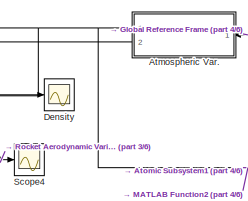
[diagram: root canvas - part 1/6, top left region]
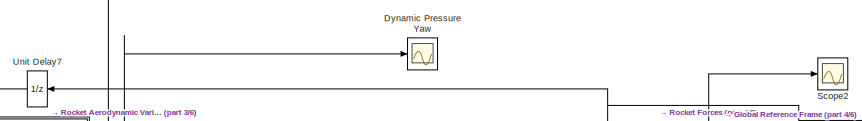
[diagram: root canvas - part 2/6, top center region]
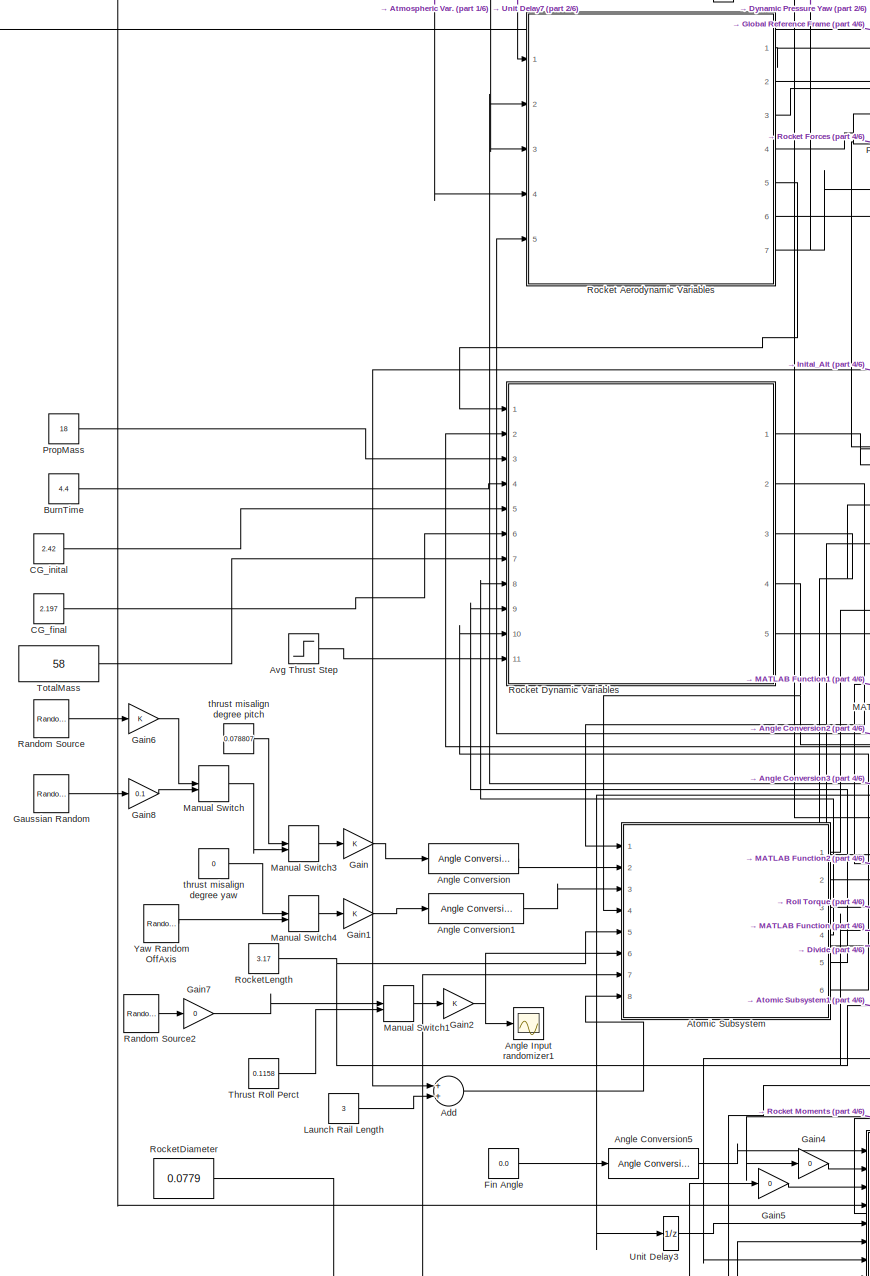
[diagram: root canvas - part 3/6, left side, full height]
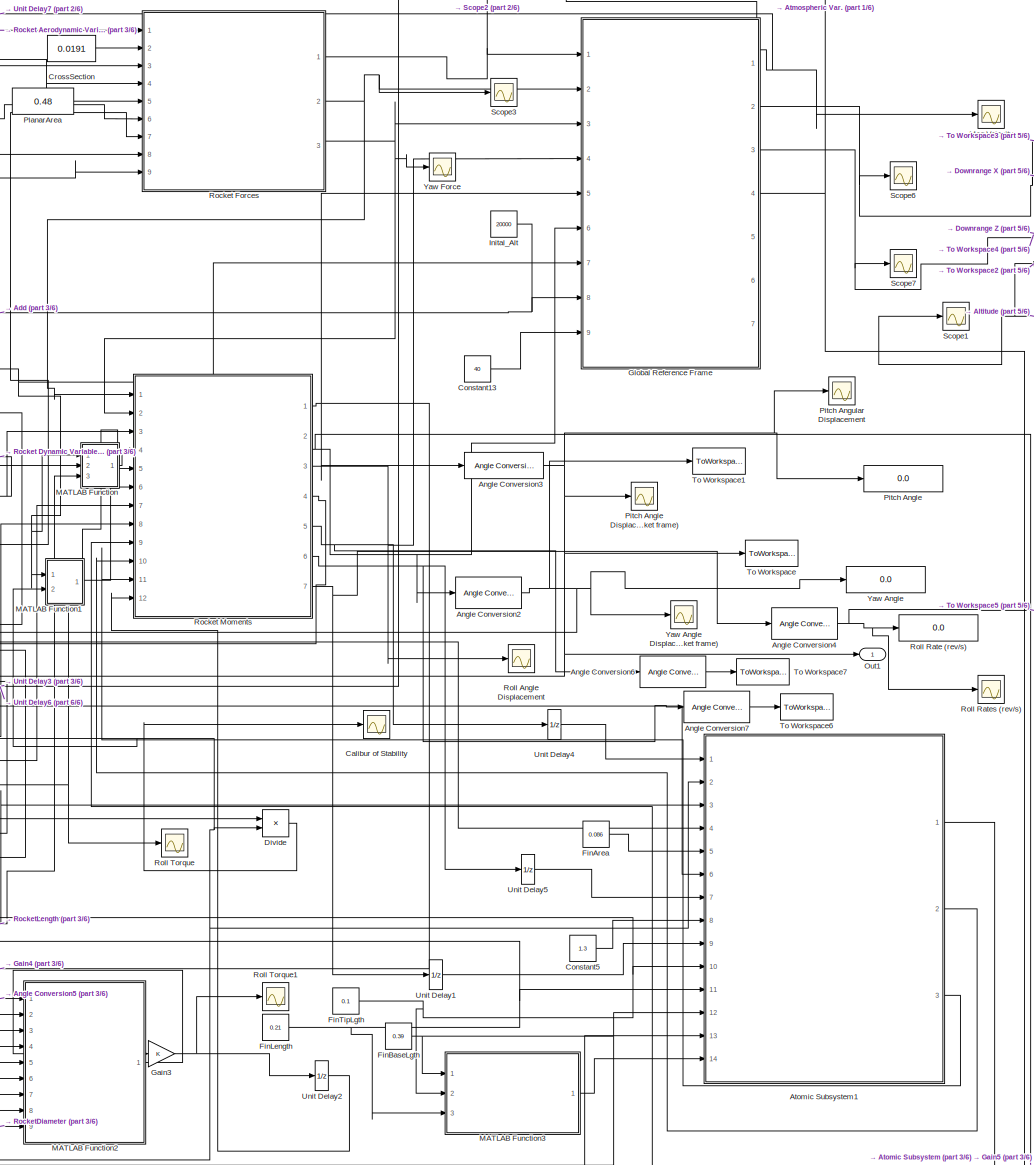
[diagram: root canvas - part 4/6, center side, full height]
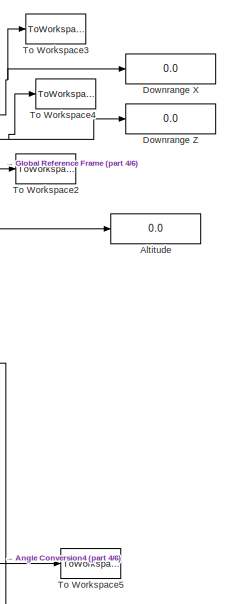
[diagram: root canvas - part 5/6, middle right region]
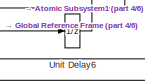
[diagram: root canvas - part 6/6, bottom right region]
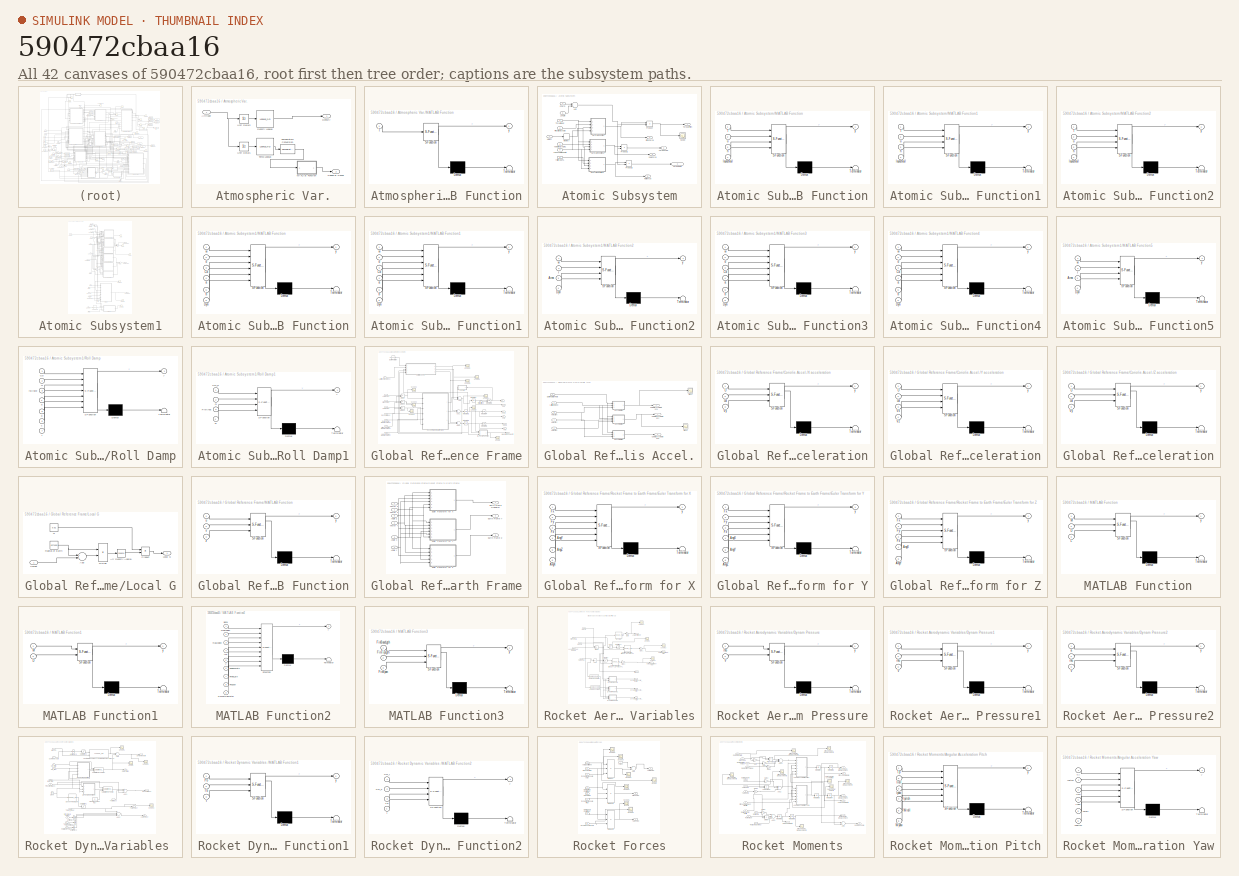
[diagram: thumbnail index - all 42 canvases of the model, root first then tree order]
MODEL slx_590472cbaa16
KIND model
CONFIG AbsTol = auto
CONFIG EnableMultiTasking = off
CONFIG FixedStep = 0.05
CONFIG MaxStep = auto
CONFIG MinStep = auto
CONFIG RelTol = 1e-3
CONFIG SampleTimeConstraint = Unconstrained
CONFIG Solver = ode4
CONFIG SolverName = ode4
CONFIG StartTime = 0
CONFIG StopTime = 100
BLOCK [Sum] Add
  InputSameDT = off
  OutDataTypeStr = Inherit: Inherit via internal rule
  Ports = [2, 1]
  SaturateOnIntegerOverflow = off
BLOCK [Display] Altitude
  Decimation = 1
  Ports = [1]
BLOCK [Reference] Angle Conversion  REF=aerolibconvert2/Angle Conversion
  Ports = [1, 1]
  SourceBlock = aerolibconvert2/Angle Conversion
  SourceProductBaseCode = AE
  SourceProductName = Aerospace Blockset
  SourceType = Angle Conversion
BLOCK [Reference] Angle Conversion1  REF=aerolibconvert2/Angle Conversion
  Ports = [1, 1]
  SourceBlock = aerolibconvert2/Angle Conversion
  SourceProductBaseCode = AE
  SourceProductName = Aerospace Blockset
  SourceType = Angle Conversion
BLOCK [Reference] Angle Conversion2  REF=aerolibconvert2/Angle Conversion
  Ports = [1, 1]
  SourceBlock = aerolibconvert2/Angle Conversion
  SourceProductBaseCode = AE
  SourceProductName = Aerospace Blockset
  SourceType = Angle Conversion
BLOCK [Reference] Angle Conversion3  REF=aerolibconvert2/Angle Conversion
  Ports = [1, 1]
  SourceBlock = aerolibconvert2/Angle Conversion
  SourceProductBaseCode = AE
  SourceProductName = Aerospace Blockset
  SourceType = Angle Conversion
BLOCK [Reference] Angle Conversion4  REF=aerolibconvert2/Angle Conversion
  Ports = [1, 1]
  SourceBlock = aerolibconvert2/Angle Conversion
  SourceProductBaseCode = AE
  SourceProductName = Aerospace Blockset
  SourceType = Angle Conversion
BLOCK [Reference] Angle Conversion5  REF=aerolibconvert2/Angle Conversion
  Ports = [1, 1]
  SourceBlock = aerolibconvert2/Angle Conversion
  SourceProductBaseCode = AE
  SourceProductName = Aerospace Blockset
  SourceType = Angle Conversion
BLOCK [Reference] Angle Conversion6  REF=aerolibconvert2/Angle Conversion
  Ports = [1, 1]
  SourceBlock = aerolibconvert2/Angle Conversion
  SourceProductBaseCode = AE
  SourceProductName = Aerospace Blockset
  SourceType = Angle Conversion
BLOCK [Reference] Angle Conversion7  REF=aerolibconvert2/Angle Conversion
  Ports = [1, 1]
  SourceBlock = aerolibconvert2/Angle Conversion
  SourceProductBaseCode = AE
  SourceProductName = Aerospace Blockset
  SourceType = Angle Conversion
BLOCK [Scope] Angle Input randomizer1
  Floating = off
  NumInputPorts = 1
  Ports = [1]
  ScopeSpecificationString = Simulink.scopes.TimeScopeBlockCfg('CurrentConfiguration', extmgr.ConfigurationSet(extmgr.Configuration('Core','General UI',true),extmgr.Configuration('Core','Source UI',true),extmgr.Configuration('Sources','WiredSimulink',true,'DataLoggingVariableName','ScopeData2'),extmgr.Configuration('Visuals','Time Domain',true,'SerializedDisplays',{struct('MinYLimReal','-1.00000','MaxYLimReal','1.00000','YLab...<+1397ch>
BLOCK [SubSystem] Atmospheric Var.
  Ports = [1, 2]
  RequestExecContextInheritance = off
  TreatAsAtomicUnit = on
BLOCK [Inport] Atmospheric Var./Altitude
  IconDisplay = Port number
BLOCK [Outport] Atmospheric Var./Density
  IconDisplay = Port number
  VectorParamsAs1DForOutWhenUnconnected = off
BLOCK [Lookup_n-D] Atmospheric Var./Density Lookup
  BreakpointsForDimension1 = [0,1000,2000,3000,4000,5000,6000,7000,8000,9000,10000,15000,20000,25000,30000,40000,50000,60000,70000,80000,120000]
  InternalRulePriority = Speed
  InterpMethod = Cubic spline
  NumberOfTableDimensions = 1
  Ports = [1, 1]
  RndMeth = Simplest
  Table = [1.347,1.225,1.112,1.007,0.9093,0.8194,0.7364,0.6601,0.59,0.4671,0.4135,0.1948,0.0889,0.04,0.0184,0.003996,0.001027,0.0003097,8.283e-05,0.00001846,1e-07]
BLOCK [SubSystem] Atmospheric Var./MATLAB Function
  ErrorFcn = Stateflow.Translate.translate
  PermitHierarchicalResolution = ExplicitOnly
  Ports = [1, 1]
  RequestExecContextInheritance = off
  SFBlockType = MATLAB Function
  TreatAsAtomicUnit = on
BLOCK [Demux] Atmospheric Var./MATLAB Function/ Demux 
  Outputs = 1
  Ports = [1, 1]
BLOCK [S-Function] Atmospheric Var./MATLAB Function/ SFunction 
  EnableBusSupport = on
  FunctionName = sf_sfun
  PortCounts = [1 2]
  Ports = [1, 2]
  SFcnIsStateOwnerBlock = off
  SFunctionDeploymentMode = off
  Tag = Stateflow S-Function 7
BLOCK [Terminator] Atmospheric Var./MATLAB Function/ Terminator 
BLOCK [Inport] Atmospheric Var./MATLAB Function/T
  IconDisplay = Port number
BLOCK [Outport] Atmospheric Var./MATLAB Function/y
  IconDisplay = Port number
  VectorParamsAs1DForOutWhenUnconnected = off
BLOCK [Outport] Atmospheric Var./Speed of Sound
  IconDisplay = Port number
  Port = 2
  VectorParamsAs1DForOutWhenUnconnected = off
BLOCK [Lookup_n-D] Atmospheric Var./Temp Lookup
  BreakpointsForDimension1 = [0,1000,2000,3000,4000,5000,6000,7000,8000,9000,10000,15000,20000,25000,30000,40000,50000,60000,70000,80000,120000]
  InternalRulePriority = Speed
  NumberOfTableDimensions = 1
  Ports = [1, 1]
  RndMeth = Simplest
  Table = [21.50,8.5,2,-4.49,-10.98,-17.47,-23.96,-30.45,-36.95,-43.42,-49.90,-56.50,-56.50,-51.60,-46.64,-22.80,-2.5,-26.13,-53.57,-74.51,-80]
BLOCK [Reference] Atmospheric Var./Temperature Conversion  REF=aerolibconvert2/Temperature Conversion
  Ports = [1, 1]
  SourceBlock = aerolibconvert2/Temperature Conversion
  SourceProductBaseCode = AE
  SourceProductName = Aerospace Blockset
  SourceType = Temperature Conversion
BLOCK [UnitDelay] Atmospheric Var./Unit Delay1
  HasFrameUpgradeWarning = on
  SampleTime = -1
BLOCK [UnitDelay] Atmospheric Var./Unit Delay2
  HasFrameUpgradeWarning = on
  SampleTime = -1
BLOCK [SubSystem] Atomic Subsystem
  Ports = [8, 6]
  RequestExecContextInheritance = off
  TreatAsAtomicUnit = on
BLOCK [Sum] Atomic Subsystem/Add
  InputSameDT = off
  Inputs = -+
  OutDataTypeStr = Inherit: Inherit via internal rule
  Ports = [2, 1]
  SaturateOnIntegerOverflow = off
BLOCK [Inport] Atomic Subsystem/CParm
  IconDisplay = Port number
  Port = 4
BLOCK [Inport] Atomic Subsystem/Height
  IconDisplay = Port number
  Port = 7
BLOCK [Inport] Atomic Subsystem/Launch Rail Length
  IconDisplay = Port number
  Port = 8
BLOCK [Inport] Atomic Subsystem/Length
  IconDisplay = Port number
  Port = 5
BLOCK [SubSystem] Atomic Subsystem/MATLAB Function
  ErrorFcn = Stateflow.Translate.translate
  PermitHierarchicalResolution = ExplicitOnly
  Ports = [4, 1]
  RequestExecContextInheritance = off
  SFBlockType = MATLAB Function
  TreatAsAtomicUnit = on
BLOCK [Demux] Atomic Subsystem/MATLAB Function/ Demux 
  Outputs = 1
  Ports = [1, 1]
BLOCK [S-Function] Atomic Subsystem/MATLAB Function/ SFunction 
  EnableBusSupport = on
  FunctionName = sf_sfun
  PortCounts = [4 2]
  Ports = [4, 2]
  SFcnIsStateOwnerBlock = off
  SFunctionDeploymentMode = off
  Tag = Stateflow S-Function 8
BLOCK [Terminator] Atomic Subsystem/MATLAB Function/ Terminator 
BLOCK [Inport] Atomic Subsystem/MATLAB Function/T
  IconDisplay = Port number
BLOCK [Inport] Atomic Subsystem/MATLAB Function/h
  IconDisplay = Port number
  Port = 3
BLOCK [Inport] Atomic Subsystem/MATLAB Function/launchrail
  IconDisplay = Port number
  Port = 4
BLOCK [Inport] Atomic Subsystem/MATLAB Function/u
  IconDisplay = Port number
  Port = 2
BLOCK [Outport] Atomic Subsystem/MATLAB Function/y
  IconDisplay = Port number
  VectorParamsAs1DForOutWhenUnconnected = off
BLOCK [SubSystem] Atomic Subsystem/MATLAB Function1
  ErrorFcn = Stateflow.Translate.translate
  PermitHierarchicalResolution = ExplicitOnly
  Ports = [4, 1]
  RequestExecContextInheritance = off
  SFBlockType = MATLAB Function
  TreatAsAtomicUnit = on
BLOCK [Demux] Atomic Subsystem/MATLAB Function1/ Demux 
  Outputs = 1
  Ports = [1, 1]
BLOCK [S-Function] Atomic Subsystem/MATLAB Function1/ SFunction 
  EnableBusSupport = on
  FunctionName = sf_sfun
  PortCounts = [4 2]
  Ports = [4, 2]
  SFcnIsStateOwnerBlock = off
  SFunctionDeploymentMode = off
  Tag = Stateflow S-Function 9
BLOCK [Terminator] Atomic Subsystem/MATLAB Function1/ Terminator 
BLOCK [Inport] Atomic Subsystem/MATLAB Function1/T
  IconDisplay = Port number
BLOCK [Inport] Atomic Subsystem/MATLAB Function1/h
  IconDisplay = Port number
  Port = 3
BLOCK [Inport] Atomic Subsystem/MATLAB Function1/launchrail
  IconDisplay = Port number
  Port = 4
BLOCK [Inport] Atomic Subsystem/MATLAB Function1/u
  IconDisplay = Port number
  Port = 2
BLOCK [Outport] Atomic Subsystem/MATLAB Function1/y
  IconDisplay = Port number
  VectorParamsAs1DForOutWhenUnconnected = off
BLOCK [SubSystem] Atomic Subsystem/MATLAB Function2
  ErrorFcn = Stateflow.Translate.translate
  PermitHierarchicalResolution = ExplicitOnly
  Ports = [4, 1]
  RequestExecContextInheritance = off
  SFBlockType = MATLAB Function
  TreatAsAtomicUnit = on
BLOCK [Demux] Atomic Subsystem/MATLAB Function2/ Demux 
  Outputs = 1
  Ports = [1, 1]
BLOCK [S-Function] Atomic Subsystem/MATLAB Function2/ SFunction 
  EnableBusSupport = on
  FunctionName = sf_sfun
  PortCounts = [4 2]
  Ports = [4, 2]
  SFcnIsStateOwnerBlock = off
  SFunctionDeploymentMode = off
  Tag = Stateflow S-Function 10
BLOCK [Terminator] Atomic Subsystem/MATLAB Function2/ Terminator 
BLOCK [Inport] Atomic Subsystem/MATLAB Function2/T
  IconDisplay = Port number
BLOCK [Inport] Atomic Subsystem/MATLAB Function2/h
  IconDisplay = Port number
  Port = 3
BLOCK [Inport] Atomic Subsystem/MATLAB Function2/launchrail
  IconDisplay = Port number
  Port = 4
BLOCK [Inport] Atomic Subsystem/MATLAB Function2/u
  IconDisplay = Port number
  Port = 2
BLOCK [Outport] Atomic Subsystem/MATLAB Function2/y
  IconDisplay = Port number
  VectorParamsAs1DForOutWhenUnconnected = off
BLOCK [Memory] Atomic Subsystem/Memory
BLOCK [Outport] Atomic Subsystem/Pitch Force
  IconDisplay = Port number
  Port = 4
  VectorParamsAs1DForOutWhenUnconnected = off
BLOCK [Inport] Atomic Subsystem/Pitch OffAxis Angle
  IconDisplay = Port number
  Port = 2
BLOCK [Product] Atomic Subsystem/Product
  InputSameDT = off
  OutDataTypeStr = Inherit: Inherit via internal rule
  Ports = [2, 1]
  RndMeth = Floor
  SaturateOnIntegerOverflow = off
BLOCK [Product] Atomic Subsystem/Product1
  InputSameDT = off
  OutDataTypeStr = Inherit: Inherit via internal rule
  Ports = [2, 1]
  RndMeth = Floor
  SaturateOnIntegerOverflow = off
BLOCK [Product] Atomic Subsystem/Product2
  InputSameDT = off
  OutDataTypeStr = Inherit: Inherit via internal rule
  Ports = [2, 1]
  RndMeth = Floor
  SaturateOnIntegerOverflow = off
BLOCK [Outport] Atomic Subsystem/Roll Force
  IconDisplay = Port number
  Port = 6
  VectorParamsAs1DForOutWhenUnconnected = off
BLOCK [Scope] Atomic Subsystem/Scope
  Floating = off
  NumInputPorts = 1
  Ports = [1]
  ScopeSpecificationString = Simulink.scopes.TimeScopeBlockCfg('CurrentConfiguration', extmgr.ConfigurationSet(extmgr.Configuration('Core','General UI',true),extmgr.Configuration('Core','Source UI',true),extmgr.Configuration('Sources','WiredSimulink',true,'DataLoggingVariableName','ScopeData1'),extmgr.Configuration('Visuals','Time Domain',true,'SerializedDisplays',{struct('MinYLimReal','-0.16876','MaxYLimReal','1.51883','YLab...<+1385ch>
BLOCK [Inport] Atomic Subsystem/Thrust Input
  IconDisplay = Port number
BLOCK [Outport] Atomic Subsystem/Torque Pitch
  IconDisplay = Port number
  VectorParamsAs1DForOutWhenUnconnected = off
BLOCK [Outport] Atomic Subsystem/Torque Roll
  IconDisplay = Port number
  Port = 3
  VectorParamsAs1DForOutWhenUnconnected = off
BLOCK [Outport] Atomic Subsystem/Torque Yaw
  IconDisplay = Port number
  Port = 2
  VectorParamsAs1DForOutWhenUnconnected = off
BLOCK [Outport] Atomic Subsystem/Yaw Force
  IconDisplay = Port number
  Port = 5
  VectorParamsAs1DForOutWhenUnconnected = off
BLOCK [Inport] Atomic Subsystem/Yaw OffAxis Angle1
  IconDisplay = Port number
  Port = 3
BLOCK [Inport] Atomic Subsystem/roll torque %
  IconDisplay = Port number
  Port = 6
BLOCK [SubSystem] Atomic Subsystem1
  Ports = [14, 3]
  RequestExecContextInheritance = off
  TreatAsAtomicUnit = on
BLOCK [Lookup_n-D] Atomic Subsystem1/1-D Lookup Table
  BreakpointsForDimension1 = [0,0.1,0.5,1,2,3,4,5]
  InternalRulePriority = Speed
  NumberOfTableDimensions = 1
  Ports = [1, 1]
  RndMeth = Simplest
  Table = [2,0.65,0.61,0.75,0.25,0.2,0.18,0.17]
BLOCK [Sum] Atomic Subsystem1/Add1
  InputSameDT = off
  Inputs = +++
  OutDataTypeStr = Inherit: Inherit via internal rule
  Ports = [3, 1]
  SaturateOnIntegerOverflow = off
BLOCK [Sum] Atomic Subsystem1/Add2
  InputSameDT = off
  Inputs = -+
  OutDataTypeStr = Inherit: Inherit via internal rule
  Ports = [2, 1]
  SaturateOnIntegerOverflow = off
BLOCK [Sum] Atomic Subsystem1/Add3
  InputSameDT = off
  Inputs = +++
  OutDataTypeStr = Inherit: Inherit via internal rule
  Ports = [3, 1]
  SaturateOnIntegerOverflow = off
BLOCK [Inport] Atomic Subsystem1/Airdensity
  IconDisplay = Port number
  Port = 6
BLOCK [Inport] Atomic Subsystem1/Angular Rate Pitch
  IconDisplay = Port number
  Port = 7
BLOCK [Inport] Atomic Subsystem1/Angular Rate Yaw
  IconDisplay = Port number
BLOCK [Inport] Atomic Subsystem1/CG Length
  IconDisplay = Port number
  Port = 4
BLOCK [Constant] Atomic Subsystem1/Constant
  Value = 0.8
BLOCK [Constant] Atomic Subsystem1/Constant1
  Value = 0
BLOCK [Constant] Atomic Subsystem1/Constant2
  Value = 0.5
BLOCK [Outport] Atomic Subsystem1/Damp Pitch Torque
  IconDisplay = Port number
  Port = 2
  VectorParamsAs1DForOutWhenUnconnected = off
BLOCK [Outport] Atomic Subsystem1/Damp Yaw Torque
  IconDisplay = Port number
  VectorParamsAs1DForOutWhenUnconnected = off
BLOCK [Inport] Atomic Subsystem1/Fin Area
  IconDisplay = Port number
  Port = 5
BLOCK [Inport] Atomic Subsystem1/Fin Base Length
  IconDisplay = Port number
  Port = 12
BLOCK [Inport] Atomic Subsystem1/Fin Cd
  IconDisplay = Port number
  Port = 8
BLOCK [Outport] Atomic Subsystem1/Fin Damp Torque
  IconDisplay = Port number
  Port = 3
  VectorParamsAs1DForOutWhenUnconnected = off
BLOCK [Inport] Atomic Subsystem1/Fin Length
  IconDisplay = Port number
  Port = 11
BLOCK [Inport] Atomic Subsystem1/Fin Tip Length
  IconDisplay = Port number
  Port = 10
BLOCK [Inport] Atomic Subsystem1/FinArea
  IconDisplay = Port number
  Port = 14
BLOCK [Gain] Atomic Subsystem1/Gain
  Gain = 0.5
  OutDataTypeStr = Inherit: Inherit via internal rule
  ParamDataTypeStr = Inherit: Inherit via internal rule
  SaturateOnIntegerOverflow = off
BLOCK [SubSystem] Atomic Subsystem1/MATLAB Function
  ErrorFcn = Stateflow.Translate.translate
  PermitHierarchicalResolution = ExplicitOnly
  Ports = [6, 1]
  RequestExecContextInheritance = off
  SFBlockType = MATLAB Function
  TreatAsAtomicUnit = on
BLOCK [Demux] Atomic Subsystem1/MATLAB Function/ Demux 
  Outputs = 1
  Ports = [1, 1]
BLOCK [S-Function] Atomic Subsystem1/MATLAB Function/ SFunction 
  EnableBusSupport = on
  FunctionName = sf_sfun
  PortCounts = [6 2]
  Ports = [6, 2]
  SFcnIsStateOwnerBlock = off
  SFunctionDeploymentMode = off
  Tag = Stateflow S-Function 13
BLOCK [Terminator] Atomic Subsystem1/MATLAB Function/ Terminator 
BLOCK [Inport] Atomic Subsystem1/MATLAB Function/Cd
  IconDisplay = Port number
  Port = 3
BLOCK [Inport] Atomic Subsystem1/MATLAB Function/Dyn
  IconDisplay = Port number
  Port = 6
BLOCK [Inport] Atomic Subsystem1/MATLAB Function/a
  IconDisplay = Port number
  Port = 4
BLOCK [Inport] Atomic Subsystem1/MATLAB Function/b
  IconDisplay = Port number
  Port = 5
BLOCK [Inport] Atomic Subsystem1/MATLAB Function/d
  IconDisplay = Port number
  Port = 2
BLOCK [Inport] Atomic Subsystem1/MATLAB Function/w
  IconDisplay = Port number
BLOCK [Outport] Atomic Subsystem1/MATLAB Function/y
  IconDisplay = Port number
  VectorParamsAs1DForOutWhenUnconnected = off
BLOCK [SubSystem] Atomic Subsystem1/MATLAB Function1
  ErrorFcn = Stateflow.Translate.translate
  PermitHierarchicalResolution = ExplicitOnly
  Ports = [6, 1]
  RequestExecContextInheritance = off
  SFBlockType = MATLAB Function
  TreatAsAtomicUnit = on
BLOCK [Demux] Atomic Subsystem1/MATLAB Function1/ Demux 
  Outputs = 1
  Ports = [1, 1]
BLOCK [S-Function] Atomic Subsystem1/MATLAB Function1/ SFunction 
  EnableBusSupport = on
  FunctionName = sf_sfun
  PortCounts = [6 2]
  Ports = [6, 2]
  SFcnIsStateOwnerBlock = off
  SFunctionDeploymentMode = off
  Tag = Stateflow S-Function 14
BLOCK [Terminator] Atomic Subsystem1/MATLAB Function1/ Terminator 
BLOCK [Inport] Atomic Subsystem1/MATLAB Function1/Cd
  IconDisplay = Port number
  Port = 3
BLOCK [Inport] Atomic Subsystem1/MATLAB Function1/Dyn
  IconDisplay = Port number
  Port = 6
BLOCK [Inport] Atomic Subsystem1/MATLAB Function1/a
  IconDisplay = Port number
  Port = 4
BLOCK [Inport] Atomic Subsystem1/MATLAB Function1/b
  IconDisplay = Port number
  Port = 5
BLOCK [Inport] Atomic Subsystem1/MATLAB Function1/d
  IconDisplay = Port number
  Port = 2
BLOCK [Inport] Atomic Subsystem1/MATLAB Function1/w
  IconDisplay = Port number
BLOCK [Outport] Atomic Subsystem1/MATLAB Function1/y
  IconDisplay = Port number
  VectorParamsAs1DForOutWhenUnconnected = off
BLOCK [SubSystem] Atomic Subsystem1/MATLAB Function2
  ErrorFcn = Stateflow.Translate.translate
  PermitHierarchicalResolution = ExplicitOnly
  Ports = [4, 1]
  RequestExecContextInheritance = off
  SFBlockType = MATLAB Function
  TreatAsAtomicUnit = on
BLOCK [Demux] Atomic Subsystem1/MATLAB Function2/ Demux 
  Outputs = 1
  Ports = [1, 1]
BLOCK [S-Function] Atomic Subsystem1/MATLAB Function2/ SFunction 
  EnableBusSupport = on
  FunctionName = sf_sfun
  PortCounts = [4 2]
  Ports = [4, 2]
  SFcnIsStateOwnerBlock = off
  SFunctionDeploymentMode = off
  Tag = Stateflow S-Function 15
BLOCK [Terminator] Atomic Subsystem1/MATLAB Function2/ Terminator 
BLOCK [Inport] Atomic Subsystem1/MATLAB Function2/Area
  IconDisplay = Port number
  Port = 3
BLOCK [Inport] Atomic Subsystem1/MATLAB Function2/Dyn
  IconDisplay = Port number
  Port = 4
BLOCK [Inport] Atomic Subsystem1/MATLAB Function2/r
  IconDisplay = Port number
  Port = 2
BLOCK [Inport] Atomic Subsystem1/MATLAB Function2/w
  IconDisplay = Port number
BLOCK [Outport] Atomic Subsystem1/MATLAB Function2/y
  IconDisplay = Port number
  VectorParamsAs1DForOutWhenUnconnected = off
BLOCK [SubSystem] Atomic Subsystem1/MATLAB Function3
  ErrorFcn = Stateflow.Translate.translate
  PermitHierarchicalResolution = ExplicitOnly
  Ports = [6, 1]
  RequestExecContextInheritance = off
  SFBlockType = MATLAB Function
  TreatAsAtomicUnit = on
BLOCK [Demux] Atomic Subsystem1/MATLAB Function3/ Demux 
  Outputs = 1
  Ports = [1, 1]
BLOCK [S-Function] Atomic Subsystem1/MATLAB Function3/ SFunction 
  EnableBusSupport = on
  FunctionName = sf_sfun
  PortCounts = [6 2]
  Ports = [6, 2]
  SFcnIsStateOwnerBlock = off
  SFunctionDeploymentMode = off
  Tag = Stateflow S-Function 16
BLOCK [Terminator] Atomic Subsystem1/MATLAB Function3/ Terminator 
BLOCK [Inport] Atomic Subsystem1/MATLAB Function3/Cd
  IconDisplay = Port number
  Port = 3
BLOCK [Inport] Atomic Subsystem1/MATLAB Function3/Dyn
  IconDisplay = Port number
  Port = 6
BLOCK [Inport] Atomic Subsystem1/MATLAB Function3/a
  IconDisplay = Port number
  Port = 4
BLOCK [Inport] Atomic Subsystem1/MATLAB Function3/b
  IconDisplay = Port number
  Port = 5
BLOCK [Inport] Atomic Subsystem1/MATLAB Function3/d
  IconDisplay = Port number
  Port = 2
BLOCK [Inport] Atomic Subsystem1/MATLAB Function3/w
  IconDisplay = Port number
BLOCK [Outport] Atomic Subsystem1/MATLAB Function3/y
  IconDisplay = Port number
  VectorParamsAs1DForOutWhenUnconnected = off
BLOCK [SubSystem] Atomic Subsystem1/MATLAB Function4
  ErrorFcn = Stateflow.Translate.translate
  PermitHierarchicalResolution = ExplicitOnly
  Ports = [6, 1]
  RequestExecContextInheritance = off
  SFBlockType = MATLAB Function
  TreatAsAtomicUnit = on
BLOCK [Demux] Atomic Subsystem1/MATLAB Function4/ Demux 
  Outputs = 1
  Ports = [1, 1]
BLOCK [S-Function] Atomic Subsystem1/MATLAB Function4/ SFunction 
  EnableBusSupport = on
  FunctionName = sf_sfun
  PortCounts = [6 2]
  Ports = [6, 2]
  SFcnIsStateOwnerBlock = off
  SFunctionDeploymentMode = off
  Tag = Stateflow S-Function 19
BLOCK [Terminator] Atomic Subsystem1/MATLAB Function4/ Terminator 
BLOCK [Inport] Atomic Subsystem1/MATLAB Function4/Cd
  IconDisplay = Port number
  Port = 3
BLOCK [Inport] Atomic Subsystem1/MATLAB Function4/Dyn
  IconDisplay = Port number
  Port = 6
BLOCK [Inport] Atomic Subsystem1/MATLAB Function4/a
  IconDisplay = Port number
  Port = 4
BLOCK [Inport] Atomic Subsystem1/MATLAB Function4/b
  IconDisplay = Port number
  Port = 5
BLOCK [Inport] Atomic Subsystem1/MATLAB Function4/d
  IconDisplay = Port number
  Port = 2
BLOCK [Inport] Atomic Subsystem1/MATLAB Function4/w
  IconDisplay = Port number
BLOCK [Outport] Atomic Subsystem1/MATLAB Function4/y
  IconDisplay = Port number
  VectorParamsAs1DForOutWhenUnconnected = off
BLOCK [SubSystem] Atomic Subsystem1/MATLAB Function5
  ErrorFcn = Stateflow.Translate.translate
  PermitHierarchicalResolution = ExplicitOnly
  Ports = [4, 1]
  RequestExecContextInheritance = off
  SFBlockType = MATLAB Function
  TreatAsAtomicUnit = on
BLOCK [Demux] Atomic Subsystem1/MATLAB Function5/ Demux 
  Outputs = 1
  Ports = [1, 1]
BLOCK [S-Function] Atomic Subsystem1/MATLAB Function5/ SFunction 
  EnableBusSupport = on
  FunctionName = sf_sfun
  PortCounts = [4 2]
  Ports = [4, 2]
  SFcnIsStateOwnerBlock = off
  SFunctionDeploymentMode = off
  Tag = Stateflow S-Function 20
BLOCK [Terminator] Atomic Subsystem1/MATLAB Function5/ Terminator 
BLOCK [Inport] Atomic Subsystem1/MATLAB Function5/Area
  IconDisplay = Port number
  Port = 3
BLOCK [Inport] Atomic Subsystem1/MATLAB Function5/Dyn
  IconDisplay = Port number
  Port = 4
BLOCK [Inport] Atomic Subsystem1/MATLAB Function5/r
  IconDisplay = Port number
  Port = 2
BLOCK [Inport] Atomic Subsystem1/MATLAB Function5/w
  IconDisplay = Port number
BLOCK [Outport] Atomic Subsystem1/MATLAB Function5/y
  IconDisplay = Port number
  VectorParamsAs1DForOutWhenUnconnected = off
BLOCK [Inport] Atomic Subsystem1/MagVelocity
  IconDisplay = Port number
  Port = 13
BLOCK [Scope] Atomic Subsystem1/New Roll Damp
  Floating = off
  NumInputPorts = 1
  Ports = [1]
  ScopeSpecificationString = Simulink.scopes.TimeScopeBlockCfg('CurrentConfiguration', extmgr.ConfigurationSet(extmgr.Configuration('Core','General UI',true),extmgr.Configuration('Core','Source UI',true),extmgr.Configuration('Sources','WiredSimulink',true,'DataLoggingVariableName','ScopeData1'),extmgr.Configuration('Visuals','Time Domain',true,'SerializedDisplays',{struct('MinYLimReal','-0.66236','MaxYLimReal','0.0736','YLabe...<+1400ch>
BLOCK [Scope] Atomic Subsystem1/Old Roll Damp
  Floating = off
  NumInputPorts = 1
  Ports = [1]
  ScopeSpecificationString = Simulink.scopes.TimeScopeBlockCfg('CurrentConfiguration', extmgr.ConfigurationSet(extmgr.Configuration('Core','General UI',true),extmgr.Configuration('Core','Source UI',true),extmgr.Configuration('Sources','WiredSimulink',true,'DataLoggingVariableName','ScopeData2'),extmgr.Configuration('Visuals','Time Domain',true,'SerializedDisplays',{struct('MinYLimReal','-0.00188','MaxYLimReal','0.01695','YLab...<+1403ch>
BLOCK [Scope] Atomic Subsystem1/Old Roll Damp1
  Floating = off
  NumInputPorts = 1
  Ports = [1]
  ScopeSpecificationString = Simulink.scopes.TimeScopeBlockCfg('CurrentConfiguration', extmgr.ConfigurationSet(extmgr.Configuration('Core','General UI',true),extmgr.Configuration('Core','Source UI',true),extmgr.Configuration('Sources','WiredSimulink',true,'DataLoggingVariableName','ScopeData1'),extmgr.Configuration('Visuals','Time Domain',true,'SerializedDisplays',{struct('MinYLimReal','-1.00000','MaxYLimReal','1.00000','YLab...<+1400ch>
BLOCK [Product] Atomic Subsystem1/Product
  InputSameDT = off
  OutDataTypeStr = Inherit: Inherit via internal rule
  Ports = [2, 1]
  RndMeth = Floor
  SaturateOnIntegerOverflow = off
BLOCK [Inport] Atomic Subsystem1/Rocket Diameter
  IconDisplay = Port number
  Port = 2
BLOCK [Inport] Atomic Subsystem1/Rocket Length
  IconDisplay = Port number
  Port = 3
BLOCK [SubSystem] Atomic Subsystem1/Roll Damp
  ErrorFcn = Stateflow.Translate.translate
  PermitHierarchicalResolution = ExplicitOnly
  Ports = [7, 1]
  RequestExecContextInheritance = off
  SFBlockType = MATLAB Function
  TreatAsAtomicUnit = on
BLOCK [Demux] Atomic Subsystem1/Roll Damp/ Demux 
  Outputs = 1
  Ports = [1, 1]
BLOCK [S-Function] Atomic Subsystem1/Roll Damp/ SFunction 
  EnableBusSupport = on
  FunctionName = sf_sfun
  PortCounts = [7 2]
  Ports = [7, 2]
  SFcnIsStateOwnerBlock = off
  SFunctionDeploymentMode = off
  Tag = Stateflow S-Function 39
BLOCK [Terminator] Atomic Subsystem1/Roll Damp/ Terminator 
BLOCK [Inport] Atomic Subsystem1/Roll Damp/Cd
  IconDisplay = Port number
BLOCK [Inport] Atomic Subsystem1/Roll Damp/N
  IconDisplay = Port number
  Port = 2
BLOCK [Inport] Atomic Subsystem1/Roll Damp/a
  IconDisplay = Port number
  Port = 4
BLOCK [Inport] Atomic Subsystem1/Roll Damp/b
  IconDisplay = Port number
  Port = 5
BLOCK [Inport] Atomic Subsystem1/Roll Damp/c
  IconDisplay = Port number
  Port = 6
BLOCK [Inport] Atomic Subsystem1/Roll Damp/r
  IconDisplay = Port number
  Port = 7
BLOCK [Inport] Atomic Subsystem1/Roll Damp/rollrate
  IconDisplay = Port number
  Port = 3
BLOCK [Outport] Atomic Subsystem1/Roll Damp/y
  IconDisplay = Port number
  VectorParamsAs1DForOutWhenUnconnected = off
BLOCK [SubSystem] Atomic Subsystem1/Roll Damp1
  ErrorFcn = Stateflow.Translate.translate
  PermitHierarchicalResolution = ExplicitOnly
  Ports = [4, 1]
  RequestExecContextInheritance = off
  SFBlockType = MATLAB Function
  TreatAsAtomicUnit = on
BLOCK [Demux] Atomic Subsystem1/Roll Damp1/ Demux 
  Outputs = 1
  Ports = [1, 1]
BLOCK [S-Function] Atomic Subsystem1/Roll Damp1/ SFunction 
  EnableBusSupport = on
  FunctionName = sf_sfun
  PortCounts = [4 2]
  Ports = [4, 2]
  SFcnIsStateOwnerBlock = off
  SFunctionDeploymentMode = off
  Tag = Stateflow S-Function 33
BLOCK [Terminator] Atomic Subsystem1/Roll Damp1/ Terminator 
BLOCK [Inport] Atomic Subsystem1/Roll Damp1/Cm_d
  IconDisplay = Port number
BLOCK [Inport] Atomic Subsystem1/Roll Damp1/FinArea
  IconDisplay = Port number
  Port = 3
BLOCK [Inport] Atomic Subsystem1/Roll Damp1/Q
  IconDisplay = Port number
  Port = 2
BLOCK [Inport] Atomic Subsystem1/Roll Damp1/w
  IconDisplay = Port number
  Port = 4
BLOCK [Outport] Atomic Subsystem1/Roll Damp1/y
  IconDisplay = Port number
  VectorParamsAs1DForOutWhenUnconnected = off
BLOCK [Inport] Atomic Subsystem1/Roll Rate
  IconDisplay = Port number
  Port = 9
BLOCK [Scope] Atomic Subsystem1/Scope
  Floating = off
  NumInputPorts = 1
  Ports = [1]
  ScopeSpecificationString = Simulink.scopes.TimeScopeBlockCfg('CurrentConfiguration', extmgr.ConfigurationSet(extmgr.Configuration('Core','General UI',true),extmgr.Configuration('Core','Source UI',true),extmgr.Configuration('Sources','WiredSimulink',true,'DataLoggingVariableName','ScopeData5'),extmgr.Configuration('Visuals','Time Domain',true,'SerializedDisplays',{struct('MinYLimReal','-0.00025','MaxYLimReal','0.00022','YLab...<+1405ch>
BLOCK [Scope] Atomic Subsystem1/Scope1
  Floating = off
  NumInputPorts = 1
  Ports = [1]
  ScopeSpecificationString = Simulink.scopes.TimeScopeBlockCfg('CurrentConfiguration', extmgr.ConfigurationSet(extmgr.Configuration('Core','General UI',true),extmgr.Configuration('Core','Source UI',true),extmgr.Configuration('Sources','WiredSimulink',true,'DataLoggingVariableName','ScopeData6'),extmgr.Configuration('Visuals','Time Domain',true,'SerializedDisplays',{struct('MinYLimReal','-0.00076','MaxYLimReal','0.00076','YLab...<+1363ch>
BLOCK [Scope] Atomic Subsystem1/Scope2
  Floating = off
  NumInputPorts = 1
  Ports = [1]
  ScopeSpecificationString = Simulink.scopes.TimeScopeBlockCfg('CurrentConfiguration', extmgr.ConfigurationSet(extmgr.Configuration('Core','General UI',true),extmgr.Configuration('Core','Source UI',true),extmgr.Configuration('Sources','WiredSimulink',true,'DataLoggingVariableName','ScopeData7'),extmgr.Configuration('Visuals','Time Domain',true,'SerializedDisplays',{struct('MinYLimReal','-0.0000027','MaxYLimReal','0.0000007','...<+1391ch>
BLOCK [Step] Avg Thrust Step
  After = 0
  Before = 8000
  Time = 4.4
BLOCK [Constant] BurnTime
  Value = 4.4
BLOCK [Constant] CG_final
  Value = 2.197
BLOCK [Constant] CG_inital
  Value = 2.42
BLOCK [Scope] Calibur of Stability
  Floating = off
  NumInputPorts = 1
  Ports = [1]
  ScopeSpecificationString = Simulink.scopes.TimeScopeBlockCfg('CurrentConfiguration', extmgr.ConfigurationSet(extmgr.Configuration('Core','General UI',true),extmgr.Configuration('Core','Source UI',true),extmgr.Configuration('Sources','WiredSimulink',true,'DataLoggingVariableName','ScopeData2'),extmgr.Configuration('Visuals','Time Domain',true,'SerializedDisplays',{struct('MinYLimReal','-0.60681','MaxYLimReal','5.46133','YLab...<+1398ch>
BLOCK [Constant] Constant13
  Value = 40
BLOCK [Constant] Constant5
  Value = 1.3
BLOCK [Constant] CrossSection
  Value = 0.0191
BLOCK [Scope] Density
  Floating = off
  NumInputPorts = 1
  Ports = [1]
  ScopeSpecificationString = Simulink.scopes.TimeScopeBlockCfg('CurrentConfiguration', extmgr.ConfigurationSet(extmgr.Configuration('Core','General UI',true),extmgr.Configuration('Core','Source UI',true),extmgr.Configuration('Sources','WiredSimulink',true,'DataLoggingVariableName','ScopeData6'),extmgr.Configuration('Visuals','Time Domain',true,'SerializedDisplays',{struct('MinYLimReal','-0.16828','MaxYLimReal','1.51536','YLab...<+1455ch>
BLOCK [Product] Divide
  InputSameDT = off
  Inputs = */
  OutDataTypeStr = Inherit: Inherit via internal rule
  Ports = [2, 1]
  RndMeth = Floor
  SaturateOnIntegerOverflow = off
BLOCK [Display] Downrange X
  Decimation = 1
  Ports = [1]
BLOCK [Display] Downrange Z
  Decimation = 1
  Ports = [1]
BLOCK [Scope] Dynamic Pressure Yaw
  Floating = off
  NumInputPorts = 1
  Ports = [1]
  ScopeSpecificationString = Simulink.scopes.TimeScopeBlockCfg('CurrentConfiguration', extmgr.ConfigurationSet(extmgr.Configuration('Core','General UI',true),extmgr.Configuration('Core','Source UI',true),extmgr.Configuration('Sources','WiredSimulink',true,'DataLoggingVariableName','ScopeData3'),extmgr.Configuration('Visuals','Time Domain',true,'SerializedDisplays',{struct('MinYLimReal','-10.02747','MaxYLimReal','11.2091','YLa...<+1428ch>
BLOCK [Constant] Fin Angle
  Value = 0.0
BLOCK [Constant] FinArea
  Value = 0.086
BLOCK [Constant] FinBaseLgth
  Value = 0.39
BLOCK [Constant] FinLength
  Value = 0.21
BLOCK [Constant] FinTipLgth
  Value = 0.1
BLOCK [Gain] Gain
  OutDataTypeStr = Inherit: Inherit via internal rule
  ParamDataTypeStr = Inherit: Inherit via internal rule
  SaturateOnIntegerOverflow = off
BLOCK [Gain] Gain1
  OutDataTypeStr = Inherit: Inherit via internal rule
  ParamDataTypeStr = Inherit: Inherit via internal rule
  SaturateOnIntegerOverflow = off
BLOCK [Gain] Gain2
  OutDataTypeStr = Inherit: Inherit via internal rule
  ParamDataTypeStr = Inherit: Inherit via internal rule
  SaturateOnIntegerOverflow = off
BLOCK [Gain] Gain3
  OutDataTypeStr = Inherit: Inherit via internal rule
  ParamDataTypeStr = Inherit: Inherit via internal rule
  SaturateOnIntegerOverflow = off
BLOCK [Gain] Gain4
  Gain = 0
  OutDataTypeStr = Inherit: Inherit via internal rule
  ParamDataTypeStr = Inherit: Inherit via internal rule
  SaturateOnIntegerOverflow = off
BLOCK [Gain] Gain5
  Gain = 0
  OutDataTypeStr = Inherit: Inherit via internal rule
  ParamDataTypeStr = Inherit: Inherit via internal rule
  SaturateOnIntegerOverflow = off
BLOCK [Gain] Gain6
  OutDataTypeStr = Inherit: Inherit via internal rule
  ParamDataTypeStr = Inherit: Inherit via internal rule
  SaturateOnIntegerOverflow = off
BLOCK [Gain] Gain7
  Gain = 0
  OutDataTypeStr = Inherit: Inherit via internal rule
  ParamDataTypeStr = Inherit: Inherit via internal rule
  SaturateOnIntegerOverflow = off
BLOCK [Gain] Gain8
  Gain = 0.1
  OutDataTypeStr = Inherit: Inherit via internal rule
  ParamDataTypeStr = Inherit: Inherit via internal rule
  SaturateOnIntegerOverflow = off
BLOCK [Reference] Gaussian Random  REF=dspsrcs4/Random
Source
  Ports = [0, 1]
  SourceBlock = dspsrcs4/Random\nSource
  SourceProductBaseCode = DS
  SourceProductName = DSP System Toolbox
  SourceType = Random Source
  UserDataPersistent = on
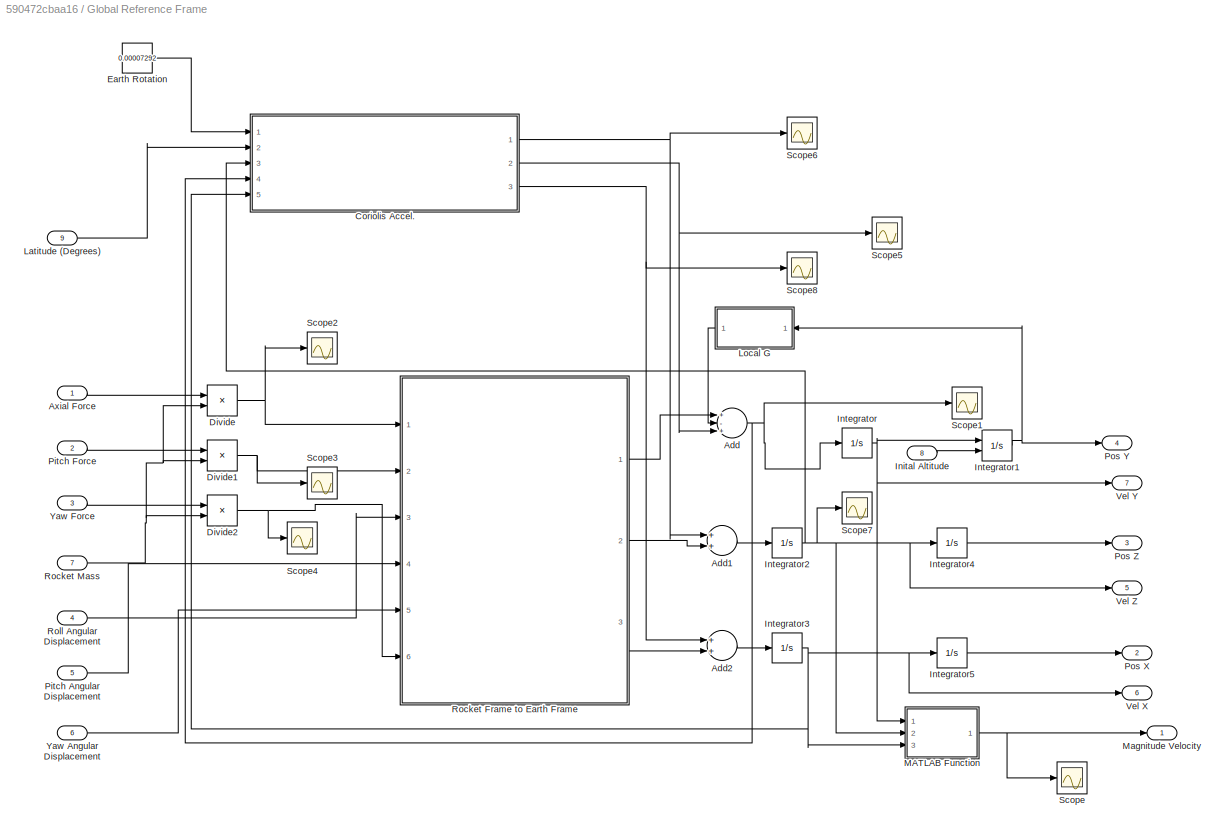
BLOCK [SubSystem] Global Reference Frame
  Ports = [9, 7]
  RequestExecContextInheritance = off
  TreatAsAtomicUnit = on
BLOCK [Sum] Global Reference Frame/Add
  InputSameDT = off
  Inputs = +-+
  OutDataTypeStr = Inherit: Inherit via internal rule
  Ports = [3, 1]
  SaturateOnIntegerOverflow = off
BLOCK [Sum] Global Reference Frame/Add1
  InputSameDT = off
  OutDataTypeStr = Inherit: Inherit via internal rule
  Ports = [2, 1]
  SaturateOnIntegerOverflow = off
BLOCK [Sum] Global Reference Frame/Add2
  InputSameDT = off
  OutDataTypeStr = Inherit: Inherit via internal rule
  Ports = [2, 1]
  SaturateOnIntegerOverflow = off
BLOCK [Inport] Global Reference Frame/Axial Force
  IconDisplay = Port number
BLOCK [SubSystem] Global Reference Frame/Coriolis Accel.
  Ports = [5, 3]
  RequestExecContextInheritance = off
BLOCK [Outport] Global Reference Frame/Coriolis Accel./Coroiolis Acceleration X
  IconDisplay = Port number
  VectorParamsAs1DForOutWhenUnconnected = off
BLOCK [Outport] Global Reference Frame/Coriolis Accel./Coroiolis Acceleration Y
  IconDisplay = Port number
  Port = 2
  VectorParamsAs1DForOutWhenUnconnected = off
BLOCK [Outport] Global Reference Frame/Coriolis Accel./Coroiolis Acceleration Z
  IconDisplay = Port number
  Port = 3
  VectorParamsAs1DForOutWhenUnconnected = off
BLOCK [Inport] Global Reference Frame/Coriolis Accel./Earth Rotation Rate
  IconDisplay = Port number
BLOCK [Inport] Global Reference Frame/Coriolis Accel./Lattitude (deg)
  IconDisplay = Port number
  Port = 2
BLOCK [Inport] Global Reference Frame/Coriolis Accel./Velocity X
  IconDisplay = Port number
  Port = 3
BLOCK [Inport] Global Reference Frame/Coriolis Accel./Velocity Y
  IconDisplay = Port number
  Port = 4
BLOCK [Inport] Global Reference Frame/Coriolis Accel./Velocity Z
  IconDisplay = Port number
  Port = 5
BLOCK [Scope] Global Reference Frame/Coriolis Accel./Wind X
  Floating = off
  NumInputPorts = 1
  Ports = [1]
  ScopeSpecificationString = Simulink.scopes.TimeScopeBlockCfg('CurrentConfiguration', extmgr.ConfigurationSet(extmgr.Configuration('Core','General UI',true),extmgr.Configuration('Core','Source UI',true),extmgr.Configuration('Sources','WiredSimulink',true,'DataLoggingVariableName','ScopeData4'),extmgr.Configuration('Visuals','Time Domain',true,'SerializedDisplays',{struct('MinYLimReal','-0.00298','MaxYLimReal','0.00033','YLab...<+1410ch>
BLOCK [Scope] Global Reference Frame/Coriolis Accel./Wind Y
  Floating = off
  NumInputPorts = 1
  Ports = [1]
  ScopeSpecificationString = Simulink.scopes.TimeScopeBlockCfg('CurrentConfiguration', extmgr.ConfigurationSet(extmgr.Configuration('Core','General UI',true),extmgr.Configuration('Core','Source UI',true),extmgr.Configuration('Sources','WiredSimulink',true,'DataLoggingVariableName','ScopeData1'),extmgr.Configuration('Visuals','Time Domain',true,'SerializedDisplays',{struct('MinYLimReal','-0.00021','MaxYLimReal','0.0019','YLabe...<+1404ch>
BLOCK [SubSystem] Global Reference Frame/Coriolis Accel./X acceleration
  ErrorFcn = Stateflow.Translate.translate
  PermitHierarchicalResolution = ExplicitOnly
  Ports = [3, 1]
  RequestExecContextInheritance = off
  SFBlockType = MATLAB Function
  TreatAsAtomicUnit = on
BLOCK [Demux] Global Reference Frame/Coriolis Accel./X acceleration/ Demux 
  Outputs = 1
  Ports = [1, 1]
BLOCK [S-Function] Global Reference Frame/Coriolis Accel./X acceleration/ SFunction 
  EnableBusSupport = on
  FunctionName = sf_sfun
  PortCounts = [3 2]
  Ports = [3, 2]
  SFcnIsStateOwnerBlock = off
  SFunctionDeploymentMode = off
  Tag = Stateflow S-Function 21
BLOCK [Terminator] Global Reference Frame/Coriolis Accel./X acceleration/ Terminator 
BLOCK [Inport] Global Reference Frame/Coriolis Accel./X acceleration/Lat
  IconDisplay = Port number
  Port = 2
BLOCK [Inport] Global Reference Frame/Coriolis Accel./X acceleration/U
  IconDisplay = Port number
BLOCK [Inport] Global Reference Frame/Coriolis Accel./X acceleration/Vy
  IconDisplay = Port number
  Port = 3
BLOCK [Outport] Global Reference Frame/Coriolis Accel./X acceleration/y
  IconDisplay = Port number
  VectorParamsAs1DForOutWhenUnconnected = off
BLOCK [SubSystem] Global Reference Frame/Coriolis Accel./Y acceleration
  ErrorFcn = Stateflow.Translate.translate
  PermitHierarchicalResolution = ExplicitOnly
  Ports = [4, 1]
  RequestExecContextInheritance = off
  SFBlockType = MATLAB Function
  TreatAsAtomicUnit = on
BLOCK [Demux] Global Reference Frame/Coriolis Accel./Y acceleration/ Demux 
  Outputs = 1
  Ports = [1, 1]
BLOCK [S-Function] Global Reference Frame/Coriolis Accel./Y acceleration/ SFunction 
  EnableBusSupport = on
  FunctionName = sf_sfun
  PortCounts = [4 2]
  Ports = [4, 2]
  SFcnIsStateOwnerBlock = off
  SFunctionDeploymentMode = off
  Tag = Stateflow S-Function 22
BLOCK [Terminator] Global Reference Frame/Coriolis Accel./Y acceleration/ Terminator 
BLOCK [Inport] Global Reference Frame/Coriolis Accel./Y acceleration/Lat
  IconDisplay = Port number
  Port = 2
BLOCK [Inport] Global Reference Frame/Coriolis Accel./Y acceleration/U
  IconDisplay = Port number
BLOCK [Inport] Global Reference Frame/Coriolis Accel./Y acceleration/Vx
  IconDisplay = Port number
  Port = 3
BLOCK [Inport] Global Reference Frame/Coriolis Accel./Y acceleration/Vz
  IconDisplay = Port number
  Port = 4
BLOCK [Outport] Global Reference Frame/Coriolis Accel./Y acceleration/y
  IconDisplay = Port number
  VectorParamsAs1DForOutWhenUnconnected = off
BLOCK [SubSystem] Global Reference Frame/Coriolis Accel./Z acceleration
  ErrorFcn = Stateflow.Translate.translate
  PermitHierarchicalResolution = ExplicitOnly
  Ports = [3, 1]
  RequestExecContextInheritance = off
  SFBlockType = MATLAB Function
  TreatAsAtomicUnit = on
BLOCK [Demux] Global Reference Frame/Coriolis Accel./Z acceleration/ Demux 
  Outputs = 1
  Ports = [1, 1]
BLOCK [S-Function] Global Reference Frame/Coriolis Accel./Z acceleration/ SFunction 
  EnableBusSupport = on
  FunctionName = sf_sfun
  PortCounts = [3 2]
  Ports = [3, 2]
  SFcnIsStateOwnerBlock = off
  SFunctionDeploymentMode = off
  Tag = Stateflow S-Function 23
BLOCK [Terminator] Global Reference Frame/Coriolis Accel./Z acceleration/ Terminator 
BLOCK [Inport] Global Reference Frame/Coriolis Accel./Z acceleration/Lat
  IconDisplay = Port number
  Port = 2
BLOCK [Inport] Global Reference Frame/Coriolis Accel./Z acceleration/U
  IconDisplay = Port number
BLOCK [Inport] Global Reference Frame/Coriolis Accel./Z acceleration/Vy
  IconDisplay = Port number
  Port = 3
BLOCK [Outport] Global Reference Frame/Coriolis Accel./Z acceleration/y
  IconDisplay = Port number
  VectorParamsAs1DForOutWhenUnconnected = off
BLOCK [Product] Global Reference Frame/Divide
  InputSameDT = off
  Inputs = */
  OutDataTypeStr = Inherit: Inherit via internal rule
  Ports = [2, 1]
  RndMeth = Floor
  SaturateOnIntegerOverflow = off
BLOCK [Product] Global Reference Frame/Divide1
  InputSameDT = off
  Inputs = */
  OutDataTypeStr = Inherit: Inherit via internal rule
  Ports = [2, 1]
  RndMeth = Floor
  SaturateOnIntegerOverflow = off
BLOCK [Product] Global Reference Frame/Divide2
  InputSameDT = off
  Inputs = */
  OutDataTypeStr = Inherit: Inherit via internal rule
  Ports = [2, 1]
  RndMeth = Floor
  SaturateOnIntegerOverflow = off
BLOCK [Constant] Global Reference Frame/Earth Rotation
  Value = 0.00007292
BLOCK [Inport] Global Reference Frame/Inital Altitude
  IconDisplay = Port number
  Port = 8
BLOCK [Integrator] Global Reference Frame/Integrator
  Ports = [1, 1]
BLOCK [Integrator] Global Reference Frame/Integrator1
  InitialConditionSource = external
  Ports = [2, 1]
BLOCK [Integrator] Global Reference Frame/Integrator2
  Ports = [1, 1]
BLOCK [Integrator] Global Reference Frame/Integrator3
  Ports = [1, 1]
BLOCK [Integrator] Global Reference Frame/Integrator4
  Ports = [1, 1]
BLOCK [Integrator] Global Reference Frame/Integrator5
  Ports = [1, 1]
BLOCK [Inport] Global Reference Frame/Latitude (Degrees)
  IconDisplay = Port number
  Port = 9
BLOCK [SubSystem] Global Reference Frame/Local G
  Ports = [1, 1]
  RequestExecContextInheritance = off
BLOCK [Sum] Global Reference Frame/Local G/Add
  InputSameDT = off
  OutDataTypeStr = Inherit: Inherit via internal rule
  Ports = [2, 1]
  SaturateOnIntegerOverflow = off
BLOCK [Math] Global Reference Frame/Local G/Air Density Approx.
  Operator = square
  OutMax = 10000
  OutMin = 0
  Ports = [1, 1]
BLOCK [Product] Global Reference Frame/Local G/Divide
  InputSameDT = off
  Inputs = */
  OutDataTypeStr = Inherit: Inherit via internal rule
  Ports = [2, 1]
  RndMeth = Floor
  SaturateOnIntegerOverflow = off
BLOCK [Constant] Global Reference Frame/Local G/G
  Value = 9.81
BLOCK [Inport] Global Reference Frame/Local G/Height
  IconDisplay = Port number
BLOCK [Outport] Global Reference Frame/Local G/Local G
  IconDisplay = Port number
  VectorParamsAs1DForOutWhenUnconnected = off
BLOCK [Product] Global Reference Frame/Local G/Product
  InputSameDT = off
  OutDataTypeStr = Inherit: Inherit via internal rule
  Ports = [2, 1]
  RndMeth = Floor
  SaturateOnIntegerOverflow = off
BLOCK [Constant] Global Reference Frame/Local G/Radius of Earth
  Value = 6371000
BLOCK [SubSystem] Global Reference Frame/MATLAB Function
  ErrorFcn = Stateflow.Translate.translate
  PermitHierarchicalResolution = ExplicitOnly
  Ports = [3, 1]
  RequestExecContextInheritance = off
  SFBlockType = MATLAB Function
  TreatAsAtomicUnit = on
BLOCK [Demux] Global Reference Frame/MATLAB Function/ Demux 
  Outputs = 1
  Ports = [1, 1]
BLOCK [S-Function] Global Reference Frame/MATLAB Function/ SFunction 
  EnableBusSupport = on
  FunctionName = sf_sfun
  PortCounts = [3 2]
  Ports = [3, 2]
  SFcnIsStateOwnerBlock = off
  SFunctionDeploymentMode = off
  Tag = Stateflow S-Function 3
BLOCK [Terminator] Global Reference Frame/MATLAB Function/ Terminator 
BLOCK [Inport] Global Reference Frame/MATLAB Function/u
  IconDisplay = Port number
BLOCK [Inport] Global Reference Frame/MATLAB Function/v
  IconDisplay = Port number
  Port = 2
BLOCK [Outport] Global Reference Frame/MATLAB Function/y
  IconDisplay = Port number
  VectorParamsAs1DForOutWhenUnconnected = off
BLOCK [Inport] Global Reference Frame/MATLAB Function/z
  IconDisplay = Port number
  Port = 3
BLOCK [Outport] Global Reference Frame/Magnitude Velocity
  IconDisplay = Port number
  VectorParamsAs1DForOutWhenUnconnected = off
BLOCK [Inport] Global Reference Frame/Pitch Angular Displacement
  IconDisplay = Port number
  Port = 5
BLOCK [Inport] Global Reference Frame/Pitch Force
  IconDisplay = Port number
  Port = 2
BLOCK [Outport] Global Reference Frame/Pos X
  IconDisplay = Port number
  Port = 2
  VectorParamsAs1DForOutWhenUnconnected = off
BLOCK [Outport] Global Reference Frame/Pos Y
  IconDisplay = Port number
  Port = 4
  VectorParamsAs1DForOutWhenUnconnected = off
BLOCK [Outport] Global Reference Frame/Pos Z
  IconDisplay = Port number
  Port = 3
  VectorParamsAs1DForOutWhenUnconnected = off
BLOCK [SubSystem] Global Reference Frame/Rocket Frame to Earth Frame
  Ports = [6, 3]
  RequestExecContextInheritance = off
BLOCK [Inport] Global Reference Frame/Rocket Frame to Earth Frame/Angle X
  IconDisplay = Port number
  Port = 3
BLOCK [Inport] Global Reference Frame/Rocket Frame to Earth Frame/Angle Y
  IconDisplay = Port number
  Port = 4
BLOCK [Inport] Global Reference Frame/Rocket Frame to Earth Frame/Angle Z
  IconDisplay = Port number
  Port = 5
BLOCK [Outport] Global Reference Frame/Rocket Frame to Earth Frame/Earth Frame X(Upward)
  IconDisplay = Port number
  VectorParamsAs1DForOutWhenUnconnected = off
BLOCK [Outport] Global Reference Frame/Rocket Frame to Earth Frame/Earth Frame Y
  IconDisplay = Port number
  Port = 2
  VectorParamsAs1DForOutWhenUnconnected = off
BLOCK [Outport] Global Reference Frame/Rocket Frame to Earth Frame/Earth Frame Z
  IconDisplay = Port number
  Port = 3
  VectorParamsAs1DForOutWhenUnconnected = off
BLOCK [SubSystem] Global Reference Frame/Rocket Frame to Earth Frame/Euler Transform for X
  ErrorFcn = Stateflow.Translate.translate
  PermitHierarchicalResolution = ExplicitOnly
  Ports = [6, 1]
  RequestExecContextInheritance = off
  SFBlockType = MATLAB Function
  TreatAsAtomicUnit = on
BLOCK [Demux] Global Reference Frame/Rocket Frame to Earth Frame/Euler Transform for X/ Demux 
  Outputs = 1
  Ports = [1, 1]
BLOCK [S-Function] Global Reference Frame/Rocket Frame to Earth Frame/Euler Transform for X/ SFunction 
  EnableBusSupport = on
  FunctionName = sf_sfun
  PortCounts = [6 2]
  Ports = [6, 2]
  SFcnIsStateOwnerBlock = off
  SFunctionDeploymentMode = off
  Tag = Stateflow S-Function 34
BLOCK [Terminator] Global Reference Frame/Rocket Frame to Earth Frame/Euler Transform for X/ Terminator 
BLOCK [Inport] Global Reference Frame/Rocket Frame to Earth Frame/Euler Transform for X/AngX
  IconDisplay = Port number
  Port = 6
BLOCK [Inport] Global Reference Frame/Rocket Frame to Earth Frame/Euler Transform for X/AngY
  IconDisplay = Port number
  Port = 4
BLOCK [Inport] Global Reference Frame/Rocket Frame to Earth Frame/Euler Transform for X/AngZ
  IconDisplay = Port number
  Port = 5
BLOCK [Inport] Global Reference Frame/Rocket Frame to Earth Frame/Euler Transform for X/Fx
  IconDisplay = Port number
BLOCK [Inport] Global Reference Frame/Rocket Frame to Earth Frame/Euler Transform for X/Fy
  IconDisplay = Port number
  Port = 2
BLOCK [Inport] Global Reference Frame/Rocket Frame to Earth Frame/Euler Transform for X/Fz
  IconDisplay = Port number
  Port = 3
BLOCK [Outport] Global Reference Frame/Rocket Frame to Earth Frame/Euler Transform for X/y
  IconDisplay = Port number
  VectorParamsAs1DForOutWhenUnconnected = off
BLOCK [SubSystem] Global Reference Frame/Rocket Frame to Earth Frame/Euler Transform for Y
  ErrorFcn = Stateflow.Translate.translate
  PermitHierarchicalResolution = ExplicitOnly
  Ports = [6, 1]
  RequestExecContextInheritance = off
  SFBlockType = MATLAB Function
  TreatAsAtomicUnit = on
BLOCK [Demux] Global Reference Frame/Rocket Frame to Earth Frame/Euler Transform for Y/ Demux 
  Outputs = 1
  Ports = [1, 1]
BLOCK [S-Function] Global Reference Frame/Rocket Frame to Earth Frame/Euler Transform for Y/ SFunction 
  EnableBusSupport = on
  FunctionName = sf_sfun
  PortCounts = [6 2]
  Ports = [6, 2]
  SFcnIsStateOwnerBlock = off
  SFunctionDeploymentMode = off
  Tag = Stateflow S-Function 35
BLOCK [Terminator] Global Reference Frame/Rocket Frame to Earth Frame/Euler Transform for Y/ Terminator 
BLOCK [Inport] Global Reference Frame/Rocket Frame to Earth Frame/Euler Transform for Y/AngX
  IconDisplay = Port number
  Port = 4
BLOCK [Inport] Global Reference Frame/Rocket Frame to Earth Frame/Euler Transform for Y/AngY
  IconDisplay = Port number
  Port = 5
BLOCK [Inport] Global Reference Frame/Rocket Frame to Earth Frame/Euler Transform for Y/AngZ
  IconDisplay = Port number
  Port = 6
BLOCK [Inport] Global Reference Frame/Rocket Frame to Earth Frame/Euler Transform for Y/Fx
  IconDisplay = Port number
BLOCK [Inport] Global Reference Frame/Rocket Frame to Earth Frame/Euler Transform for Y/Fy
  IconDisplay = Port number
  Port = 2
BLOCK [Inport] Global Reference Frame/Rocket Frame to Earth Frame/Euler Transform for Y/Fz
  IconDisplay = Port number
  Port = 3
BLOCK [Outport] Global Reference Frame/Rocket Frame to Earth Frame/Euler Transform for Y/y
  IconDisplay = Port number
  VectorParamsAs1DForOutWhenUnconnected = off
BLOCK [SubSystem] Global Reference Frame/Rocket Frame to Earth Frame/Euler Transform for Z
  ErrorFcn = Stateflow.Translate.translate
  PermitHierarchicalResolution = ExplicitOnly
  Ports = [5, 1]
  RequestExecContextInheritance = off
  SFBlockType = MATLAB Function
  TreatAsAtomicUnit = on
BLOCK [Demux] Global Reference Frame/Rocket Frame to Earth Frame/Euler Transform for Z/ Demux 
  Outputs = 1
  Ports = [1, 1]
BLOCK [S-Function] Global Reference Frame/Rocket Frame to Earth Frame/Euler Transform for Z/ SFunction 
  EnableBusSupport = on
  FunctionName = sf_sfun
  PortCounts = [5 2]
  Ports = [5, 2]
  SFcnIsStateOwnerBlock = off
  SFunctionDeploymentMode = off
  Tag = Stateflow S-Function 36
BLOCK [Terminator] Global Reference Frame/Rocket Frame to Earth Frame/Euler Transform for Z/ Terminator 
BLOCK [Inport] Global Reference Frame/Rocket Frame to Earth Frame/Euler Transform for Z/AngX
  IconDisplay = Port number
  Port = 4
BLOCK [Inport] Global Reference Frame/Rocket Frame to Earth Frame/Euler Transform for Z/AngY
  IconDisplay = Port number
  Port = 5
BLOCK [Inport] Global Reference Frame/Rocket Frame to Earth Frame/Euler Transform for Z/Fx
  IconDisplay = Port number
BLOCK [Inport] Global Reference Frame/Rocket Frame to Earth Frame/Euler Transform for Z/Fy
  IconDisplay = Port number
  Port = 2
BLOCK [Inport] Global Reference Frame/Rocket Frame to Earth Frame/Euler Transform for Z/Fz
  IconDisplay = Port number
  Port = 3
BLOCK [Outport] Global Reference Frame/Rocket Frame to Earth Frame/Euler Transform for Z/y
  IconDisplay = Port number
  VectorParamsAs1DForOutWhenUnconnected = off
BLOCK [Inport] Global Reference Frame/Rocket Frame to Earth Frame/vector X
  IconDisplay = Port number
BLOCK [Inport] Global Reference Frame/Rocket Frame to Earth Frame/vector Y
  IconDisplay = Port number
  Port = 2
BLOCK [Inport] Global Reference Frame/Rocket Frame to Earth Frame/vector Z
  IconDisplay = Port number
  Port = 6
BLOCK [Inport] Global Reference Frame/Rocket Mass
  IconDisplay = Port number
  Port = 7
BLOCK [Inport] Global Reference Frame/Roll Angular Displacement
  IconDisplay = Port number
  Port = 4
BLOCK [Scope] Global Reference Frame/Scope
  Floating = off
  NumInputPorts = 1
  Ports = [1]
  ScopeSpecificationString = Simulink.scopes.TimeScopeBlockCfg('CurrentConfiguration', extmgr.ConfigurationSet(extmgr.Configuration('Core','General UI',true),extmgr.Configuration('Core','Source UI',true),extmgr.Configuration('Sources','WiredSimulink',true,'DataLoggingVariableName','ScopeData4'),extmgr.Configuration('Visuals','Time Domain',true,'SerializedDisplays',{struct('MinYLimReal','-155.09624','MaxYLimReal','1395.8662','...<+1432ch>
BLOCK [Scope] Global Reference Frame/Scope1
  Floating = off
  NumInputPorts = 1
  Ports = [1]
  ScopeSpecificationString = Simulink.scopes.TimeScopeBlockCfg('CurrentConfiguration', extmgr.ConfigurationSet(extmgr.Configuration('Core','General UI',true),extmgr.Configuration('Core','Source UI',true),extmgr.Configuration('Sources','WiredSimulink',true,'DataLoggingVariableName','ScopeData7'),extmgr.Configuration('Visuals','Time Domain',true,'SerializedDisplays',{struct('MinYLimReal','-762.99885','MaxYLimReal','558.13524','...<+1420ch>
BLOCK [Scope] Global Reference Frame/Scope2
  Floating = off
  NumInputPorts = 1
  Ports = [1]
  ScopeSpecificationString = Simulink.scopes.TimeScopeBlockCfg('CurrentConfiguration', extmgr.ConfigurationSet(extmgr.Configuration('Core','General UI',true),extmgr.Configuration('Core','Source UI',true),extmgr.Configuration('Sources','WiredSimulink',true,'DataLoggingVariableName','ScopeData8'),extmgr.Configuration('Visuals','Time Domain',true,'SerializedDisplays',{struct('MinYLimReal','-38.6352','MaxYLimReal','347.71664','YL...<+1417ch>
BLOCK [Scope] Global Reference Frame/Scope3
  Floating = off
  NumInputPorts = 1
  Ports = [1]
  ScopeSpecificationString = Simulink.scopes.TimeScopeBlockCfg('CurrentConfiguration', extmgr.ConfigurationSet(extmgr.Configuration('Core','General UI',true),extmgr.Configuration('Core','Source UI',true),extmgr.Configuration('Sources','WiredSimulink',true,'DataLoggingVariableName','ScopeData19'),extmgr.Configuration('Visuals','Time Domain',true,'SerializedDisplays',{struct('MinYLimReal','-1.00000','MaxYLimReal','1.00000','YLa...<+1411ch>
BLOCK [Scope] Global Reference Frame/Scope4
  Floating = off
  NumInputPorts = 1
  Ports = [1]
  ScopeSpecificationString = Simulink.scopes.TimeScopeBlockCfg('CurrentConfiguration', extmgr.ConfigurationSet(extmgr.Configuration('Core','General UI',true),extmgr.Configuration('Core','Source UI',true),extmgr.Configuration('Sources','WiredSimulink',true,'DataLoggingVariableName','ScopeData20'),extmgr.Configuration('Visuals','Time Domain',true,'SerializedDisplays',{struct('MinYLimReal','-1.00000','MaxYLimReal','1.00000','YLa...<+1411ch>
BLOCK [Scope] Global Reference Frame/Scope5
  Floating = off
  NumInputPorts = 1
  Ports = [1]
  ScopeSpecificationString = Simulink.scopes.TimeScopeBlockCfg('CurrentConfiguration', extmgr.ConfigurationSet(extmgr.Configuration('Core','General UI',true),extmgr.Configuration('Core','Source UI',true),extmgr.Configuration('Sources','WiredSimulink',true,'DataLoggingVariableName','ScopeData1'),extmgr.Configuration('Visuals','Time Domain',true,'SerializedDisplays',{struct('MinYLimReal','-0.000003','MaxYLimReal','0.000024','YL...<+1459ch>
BLOCK [Scope] Global Reference Frame/Scope6
  Floating = off
  NumInputPorts = 1
  Ports = [1]
  ScopeSpecificationString = Simulink.scopes.TimeScopeBlockCfg('CurrentConfiguration', extmgr.ConfigurationSet(extmgr.Configuration('Core','General UI',true),extmgr.Configuration('Core','Source UI',true),extmgr.Configuration('Sources','WiredSimulink',true,'DataLoggingVariableName','ScopeData2'),extmgr.Configuration('Visuals','Time Domain',true,'SerializedDisplays',{struct('MinYLimReal','-1.00000','MaxYLimReal','1.00000','YLab...<+1453ch>
BLOCK [Scope] Global Reference Frame/Scope7
  Floating = off
  NumInputPorts = 1
  Ports = [1]
  ScopeSpecificationString = Simulink.scopes.TimeScopeBlockCfg('CurrentConfiguration', extmgr.ConfigurationSet(extmgr.Configuration('Core','General UI',true),extmgr.Configuration('Core','Source UI',true),extmgr.Configuration('Sources','WiredSimulink',true,'DataLoggingVariableName','ScopeData1'),extmgr.Configuration('Visuals','Time Domain',true,'SerializedDisplays',{struct('MinYLimReal','-1.00000','MaxYLimReal','1.00000','YLab...<+1414ch>
BLOCK [Scope] Global Reference Frame/Scope8
  Floating = off
  NumInputPorts = 1
  Ports = [1]
  ScopeSpecificationString = Simulink.scopes.TimeScopeBlockCfg('CurrentConfiguration', extmgr.ConfigurationSet(extmgr.Configuration('Core','General UI',true),extmgr.Configuration('Core','Source UI',true),extmgr.Configuration('Sources','WiredSimulink',true,'DataLoggingVariableName','ScopeData3'),extmgr.Configuration('Visuals','Time Domain',true,'SerializedDisplays',{struct('MinYLimReal','-0.03831','MaxYLimReal','0.03149','YLab...<+1451ch>
BLOCK [Outport] Global Reference Frame/Vel X
  IconDisplay = Port number
  Port = 6
  VectorParamsAs1DForOutWhenUnconnected = off
BLOCK [Outport] Global Reference Frame/Vel Y 
  IconDisplay = Port number
  Port = 7
  VectorParamsAs1DForOutWhenUnconnected = off
BLOCK [Outport] Global Reference Frame/Vel Z
  IconDisplay = Port number
  Port = 5
  VectorParamsAs1DForOutWhenUnconnected = off
BLOCK [Inport] Global Reference Frame/Yaw Angular Displacement
  IconDisplay = Port number
  Port = 6
BLOCK [Inport] Global Reference Frame/Yaw Force
  IconDisplay = Port number
  Port = 3
BLOCK [Constant] Inital_Alt
  Value = 20000
BLOCK [Constant] Launch Rail Length
  Value = 3
BLOCK [SubSystem] MATLAB Function
  ErrorFcn = Stateflow.Translate.translate
  PermitHierarchicalResolution = ExplicitOnly
  Ports = [3, 1]
  RequestExecContextInheritance = off
  SFBlockType = MATLAB Function
  TreatAsAtomicUnit = on
BLOCK [Demux] MATLAB Function/ Demux 
  Outputs = 1
  Ports = [1, 1]
BLOCK [S-Function] MATLAB Function/ SFunction 
  EnableBusSupport = on
  FunctionName = sf_sfun
  PortCounts = [3 2]
  Ports = [3, 2]
  SFcnIsStateOwnerBlock = off
  SFunctionDeploymentMode = off
  Tag = Stateflow S-Function 17
BLOCK [Terminator] MATLAB Function/ Terminator 
BLOCK [Inport] MATLAB Function/D
  IconDisplay = Port number
  Port = 2
BLOCK [Inport] MATLAB Function/L
  IconDisplay = Port number
  Port = 3
BLOCK [Inport] MATLAB Function/M
  IconDisplay = Port number
BLOCK [Outport] MATLAB Function/y
  IconDisplay = Port number
  VectorParamsAs1DForOutWhenUnconnected = off
BLOCK [SubSystem] MATLAB Function1
  ErrorFcn = Stateflow.Translate.translate
  PermitHierarchicalResolution = ExplicitOnly
  Ports = [2, 1]
  RequestExecContextInheritance = off
  SFBlockType = MATLAB Function
  TreatAsAtomicUnit = on
BLOCK [Demux] MATLAB Function1/ Demux 
  Outputs = 1
  Ports = [1, 1]
BLOCK [S-Function] MATLAB Function1/ SFunction 
  EnableBusSupport = on
  FunctionName = sf_sfun
  PortCounts = [2 2]
  Ports = [2, 2]
  SFcnIsStateOwnerBlock = off
  SFunctionDeploymentMode = off
  Tag = Stateflow S-Function 18
BLOCK [Terminator] MATLAB Function1/ Terminator 
BLOCK [Inport] MATLAB Function1/D
  IconDisplay = Port number
  Port = 2
BLOCK [Inport] MATLAB Function1/M
  IconDisplay = Port number
BLOCK [Outport] MATLAB Function1/y
  IconDisplay = Port number
  VectorParamsAs1DForOutWhenUnconnected = off
BLOCK [SubSystem] MATLAB Function2
  ErrorFcn = Stateflow.Translate.translate
  PermitHierarchicalResolution = ExplicitOnly
  Ports = [9, 1]
  RequestExecContextInheritance = off
  SFBlockType = MATLAB Function
  TreatAsAtomicUnit = on
BLOCK [Demux] MATLAB Function2/ Demux 
  Outputs = 1
  Ports = [1, 1]
BLOCK [S-Function] MATLAB Function2/ SFunction 
  EnableBusSupport = on
  FunctionName = sf_sfun
  PortCounts = [9 2]
  Ports = [9, 2]
  SFcnIsStateOwnerBlock = off
  SFunctionDeploymentMode = off
  Tag = Stateflow S-Function 32
BLOCK [Terminator] MATLAB Function2/ Terminator 
BLOCK [Inport] MATLAB Function2/FinBaseLgth
  IconDisplay = Port number
  Port = 6
BLOCK [Inport] MATLAB Function2/FinSpan
  IconDisplay = Port number
  Port = 8
BLOCK [Inport] MATLAB Function2/FinTipLgth
  IconDisplay = Port number
  Port = 7
BLOCK [Inport] MATLAB Function2/RocketDiameter
  IconDisplay = Port number
  Port = 9
BLOCK [Inport] MATLAB Function2/V
  IconDisplay = Port number
  Port = 5
BLOCK [Inport] MATLAB Function2/alpha
  IconDisplay = Port number
BLOCK [Inport] MATLAB Function2/magAngle1
  IconDisplay = Port number
  Port = 2
BLOCK [Inport] MATLAB Function2/magAngle2
  IconDisplay = Port number
  Port = 3
BLOCK [Inport] MATLAB Function2/rho
  IconDisplay = Port number
  Port = 4
BLOCK [Outport] MATLAB Function2/y
  IconDisplay = Port number
  VectorParamsAs1DForOutWhenUnconnected = off
BLOCK [SubSystem] MATLAB Function3
  ErrorFcn = Stateflow.Translate.translate
  PermitHierarchicalResolution = ExplicitOnly
  Ports = [3, 1]
  RequestExecContextInheritance = off
  SFBlockType = MATLAB Function
  TreatAsAtomicUnit = on
BLOCK [Demux] MATLAB Function3/ Demux 
  Outputs = 1
  Ports = [1, 1]
BLOCK [S-Function] MATLAB Function3/ SFunction 
  EnableBusSupport = on
  FunctionName = sf_sfun
  PortCounts = [3 2]
  Ports = [3, 2]
  SFcnIsStateOwnerBlock = off
  SFunctionDeploymentMode = off
  Tag = Stateflow S-Function 37
BLOCK [Terminator] MATLAB Function3/ Terminator 
BLOCK [Inport] MATLAB Function3/FinBaseLgth
  IconDisplay = Port number
BLOCK [Inport] MATLAB Function3/FinSpan
  IconDisplay = Port number
  Port = 3
BLOCK [Inport] MATLAB Function3/FinTipLgth
  IconDisplay = Port number
  Port = 2
BLOCK [Outport] MATLAB Function3/y
  IconDisplay = Port number
  VectorParamsAs1DForOutWhenUnconnected = off
BLOCK [Scope] Mag Velocity
  Floating = off
  NumInputPorts = 1
  Ports = [1]
  ScopeSpecificationString = Simulink.scopes.TimeScopeBlockCfg('CurrentConfiguration', extmgr.ConfigurationSet(extmgr.Configuration('Core','General UI',true),extmgr.Configuration('Core','Source UI',true),extmgr.Configuration('Sources','WiredSimulink',true),extmgr.Configuration('Visuals','Time Domain',true,'SerializedDisplays',{struct('MinYLimReal','-7.44111','MaxYLimReal','66.97001','YLabelReal','','MinYLimMag','0.00000','Max...<+1367ch>
BLOCK [ManualSwitch] Manual Switch
BLOCK [ManualSwitch] Manual Switch1
BLOCK [ManualSwitch] Manual Switch3
BLOCK [ManualSwitch] Manual Switch4
BLOCK [Outport] Out1
  IconDisplay = Port number
  VectorParamsAs1DForOutWhenUnconnected = off
BLOCK [Display] Pitch Angle
  Decimation = 1
  Ports = [1]
BLOCK [Scope] Pitch Angle Displacement (rocket frame)
  Floating = off
  NumInputPorts = 1
  Ports = [1]
  ScopeSpecificationString = Simulink.scopes.TimeScopeBlockCfg('CurrentConfiguration', extmgr.ConfigurationSet(extmgr.Configuration('Core','General UI',true),extmgr.Configuration('Core','Source UI',true),extmgr.Configuration('Sources','WiredSimulink',true,'DataLoggingVariableName','ScopeData8'),extmgr.Configuration('Visuals','Time Domain',true,'SerializedDisplays',{struct('MinYLimReal','-33.61062','MaxYLimReal','40.43165','YL...<+1413ch>
BLOCK [Scope] Pitch Angular Displacement
  Floating = off
  NumInputPorts = 1
  Ports = [1]
  ScopeSpecificationString = Simulink.scopes.TimeScopeBlockCfg('CurrentConfiguration', extmgr.ConfigurationSet(extmgr.Configuration('Core','General UI',true),extmgr.Configuration('Core','Source UI',true),extmgr.Configuration('Sources','WiredSimulink',true,'DataLoggingVariableName','ScopeData3'),extmgr.Configuration('Visuals','Time Domain',true,'SerializedDisplays',{struct('MinYLimReal','-397.14027','MaxYLimReal','101.51618','...<+1425ch>
BLOCK [Constant] PlanarArea
  Value = 0.48
BLOCK [Constant] PropMass
  Value = 18
BLOCK [Reference] Random Source  REF=dspsrcs4/Random
Source
  Ports = [0, 1]
  SourceBlock = dspsrcs4/Random\nSource
  SourceProductBaseCode = DS
  SourceProductName = DSP System Toolbox
  SourceType = Random Source
  UserDataPersistent = on
BLOCK [Reference] Random Source2  REF=dspsrcs4/Random
Source
  Ports = [0, 1]
  SourceBlock = dspsrcs4/Random\nSource
  SourceProductBaseCode = DS
  SourceProductName = DSP System Toolbox
  SourceType = Random Source
  UserDataPersistent = on
BLOCK [SubSystem] Rocket Aerodynamic Variables
  Ports = [5, 7]
  RequestExecContextInheritance = off
  TreatAsAtomicUnit = on
BLOCK [Outport] Rocket Aerodynamic Variables/ Axial Coefficient
  IconDisplay = Port number
  VectorParamsAs1DForOutWhenUnconnected = off
BLOCK [Outport] Rocket Aerodynamic Variables/ Normal Coefficient Pitch
  IconDisplay = Port number
  Port = 2
  VectorParamsAs1DForOutWhenUnconnected = off
BLOCK [Outport] Rocket Aerodynamic Variables/ Normal Coefficient Yaw
  IconDisplay = Port number
  Port = 4
  VectorParamsAs1DForOutWhenUnconnected = off
BLOCK [Abs] Rocket Aerodynamic Variables/Abs
  SaturateOnIntegerOverflow = off
BLOCK [Abs] Rocket Aerodynamic Variables/Abs1
  SaturateOnIntegerOverflow = off
BLOCK [Reference] Rocket Aerodynamic Variables/Angle Conversion  REF=aerolibconvert2/Angle Conversion
  Ports = [1, 1]
  SourceBlock = aerolibconvert2/Angle Conversion
  SourceProductBaseCode = AE
  SourceProductName = Aerospace Blockset
  SourceType = Angle Conversion
BLOCK [Reference] Rocket Aerodynamic Variables/Angle Conversion1  REF=aerolibconvert2/Angle Conversion
  Ports = [1, 1]
  SourceBlock = aerolibconvert2/Angle Conversion
  SourceProductBaseCode = AE
  SourceProductName = Aerospace Blockset
  SourceType = Angle Conversion
BLOCK [Lookup_n-D] Rocket Aerodynamic Variables/Cd Table
  BreakpointsForDimension1 = [0,0.05,0.1,0.6,0.9,1.1,1.2,2,3,4,5]
  InternalRulePriority = Speed
  NumberOfTableDimensions = 1
  Ports = [1, 1]
  RndMeth = Simplest
  Table = [0.48,0.4,0.42,0.4,0.44,0.54,0.52,0.36,0.24,0.18,0.14]
BLOCK [Lookup_n-D] Rocket Aerodynamic Variables/Coefficient of Normal Drag u1 = AOA (Degrees) u2 = Mach #
  BreakpointsForDimension1 = [0,2,4,6,8,10,12,14,15]
  BreakpointsForDimension2 = [0,0.5,1.1,2,5]
  ExtrapMethod = Clip
  InternalRulePriority = Speed
  Ports = [2, 1]
  RndMeth = Simplest
  Table = reshape([1e-06,0.6,1.25,1.9,2.5,3.2,3.6,4.2,4.5,1e-06,0.6,1.25,1.9,2.5,3.2,3.6,4.2,4.5,1e-06,0.8,1.6,2.5,3.4,4.2,5,5.8,6.2,1e-06,0.7,1.4,2,2.5,3.2,4,5.6,6.2,1e-06,0.25,0.8,1.4,2,2.6,3.2,3.9,3.3],9,5)
  UseLastTableValue = on
BLOCK [Lookup_n-D] Rocket Aerodynamic Variables/Coefficient of Normal Drag u1 = AOA (Degrees) u2 = Mach #1
  BreakpointsForDimension1 = [0,2,4,6,8,10,12,14,15]
  BreakpointsForDimension2 = [0,0.5,1.1,2,5]
  ExtrapMethod = Clip
  InternalRulePriority = Speed
  Ports = [2, 1]
  RndMeth = Simplest
  Table = reshape([1e-06,0.6,1.25,1.9,2.5,3.2,3.6,4.2,4.5,1e-06,0.6,1.25,1.9,2.5,3.2,3.6,4.2,4.5,1e-06,0.8,1.6,2.5,3.4,4.2,5,5.8,6.2,1e-06,0.7,1.4,2,2.5,3.2,4,5.6,6.2,1e-06,0.25,0.8,1.4,2,2.6,3.2,3.9,3.3],9,5)
  UseLastTableValue = on
BLOCK [Inport] Rocket Aerodynamic Variables/Density
  IconDisplay = Port number
  Port = 3
BLOCK [Product] Rocket Aerodynamic Variables/Divide
  InputSameDT = off
  Inputs = */
  OutDataTypeStr = Inherit: Inherit via internal rule
  Ports = [2, 1]
  RndMeth = Floor
  SaturateOnIntegerOverflow = off
BLOCK [SubSystem] Rocket Aerodynamic Variables/Dynam Pressure
  ErrorFcn = Stateflow.Translate.translate
  PermitHierarchicalResolution = ExplicitOnly
  Ports = [2, 1]
  RequestExecContextInheritance = off
  SFBlockType = MATLAB Function
  TreatAsAtomicUnit = on
BLOCK [Demux] Rocket Aerodynamic Variables/Dynam Pressure/ Demux 
  Outputs = 1
  Ports = [1, 1]
BLOCK [S-Function] Rocket Aerodynamic Variables/Dynam Pressure/ SFunction 
  EnableBusSupport = on
  FunctionName = sf_sfun
  PortCounts = [2 2]
  Ports = [2, 2]
  SFcnIsStateOwnerBlock = off
  SFunctionDeploymentMode = off
  Tag = Stateflow S-Function 4
BLOCK [Terminator] Rocket Aerodynamic Variables/Dynam Pressure/ Terminator 
BLOCK [Inport] Rocket Aerodynamic Variables/Dynam Pressure/V
  IconDisplay = Port number
  Port = 2
BLOCK [Inport] Rocket Aerodynamic Variables/Dynam Pressure/rho
  IconDisplay = Port number
BLOCK [Outport] Rocket Aerodynamic Variables/Dynam Pressure/y
  IconDisplay = Port number
  VectorParamsAs1DForOutWhenUnconnected = off
BLOCK [SubSystem] Rocket Aerodynamic Variables/Dynam Pressure1
  ErrorFcn = Stateflow.Translate.translate
  PermitHierarchicalResolution = ExplicitOnly
  Ports = [3, 1]
  RequestExecContextInheritance = off
  SFBlockType = MATLAB Function
  TreatAsAtomicUnit = on
BLOCK [Demux] Rocket Aerodynamic Variables/Dynam Pressure1/ Demux 
  Outputs = 1
  Ports = [1, 1]
BLOCK [S-Function] Rocket Aerodynamic Variables/Dynam Pressure1/ SFunction 
  EnableBusSupport = on
  FunctionName = sf_sfun
  PortCounts = [3 2]
  Ports = [3, 2]
  SFcnIsStateOwnerBlock = off
  SFunctionDeploymentMode = off
  Tag = Stateflow S-Function 11
BLOCK [Terminator] Rocket Aerodynamic Variables/Dynam Pressure1/ Terminator 
BLOCK [Inport] Rocket Aerodynamic Variables/Dynam Pressure1/V
  IconDisplay = Port number
  Port = 3
BLOCK [Inport] Rocket Aerodynamic Variables/Dynam Pressure1/a
  IconDisplay = Port number
BLOCK [Inport] Rocket Aerodynamic Variables/Dynam Pressure1/rho
  IconDisplay = Port number
  Port = 2
BLOCK [Outport] Rocket Aerodynamic Variables/Dynam Pressure1/y
  IconDisplay = Port number
  VectorParamsAs1DForOutWhenUnconnected = off
BLOCK [SubSystem] Rocket Aerodynamic Variables/Dynam Pressure2
  ErrorFcn = Stateflow.Translate.translate
  PermitHierarchicalResolution = ExplicitOnly
  Ports = [3, 1]
  RequestExecContextInheritance = off
  SFBlockType = MATLAB Function
  TreatAsAtomicUnit = on
BLOCK [Demux] Rocket Aerodynamic Variables/Dynam Pressure2/ Demux 
  Outputs = 1
  Ports = [1, 1]
BLOCK [S-Function] Rocket Aerodynamic Variables/Dynam Pressure2/ SFunction 
  EnableBusSupport = on
  FunctionName = sf_sfun
  PortCounts = [3 2]
  Ports = [3, 2]
  SFcnIsStateOwnerBlock = off
  SFunctionDeploymentMode = off
  Tag = Stateflow S-Function 12
BLOCK [Terminator] Rocket Aerodynamic Variables/Dynam Pressure2/ Terminator 
BLOCK [Inport] Rocket Aerodynamic Variables/Dynam Pressure2/V
  IconDisplay = Port number
  Port = 3
BLOCK [Inport] Rocket Aerodynamic Variables/Dynam Pressure2/a
  IconDisplay = Port number
BLOCK [Inport] Rocket Aerodynamic Variables/Dynam Pressure2/rho
  IconDisplay = Port number
  Port = 2
BLOCK [Outport] Rocket Aerodynamic Variables/Dynam Pressure2/y
  IconDisplay = Port number
  VectorParamsAs1DForOutWhenUnconnected = off
BLOCK [Outport] Rocket Aerodynamic Variables/Dynamic Pressure_Pitch
  IconDisplay = Port number
  Port = 6
  VectorParamsAs1DForOutWhenUnconnected = off
BLOCK [Outport] Rocket Aerodynamic Variables/Dynamic Pressure_Yaw
  IconDisplay = Port number
  Port = 7
  VectorParamsAs1DForOutWhenUnconnected = off
BLOCK [Outport] Rocket Aerodynamic Variables/Dynamic Pressure_axial
  IconDisplay = Port number
  Port = 3
  VectorParamsAs1DForOutWhenUnconnected = off
BLOCK [Gain] Rocket Aerodynamic Variables/Gain
  OutDataTypeStr = Inherit: Inherit via internal rule
  ParamDataTypeStr = Inherit: Inherit via internal rule
  SaturateOnIntegerOverflow = off
BLOCK [Gain] Rocket Aerodynamic Variables/Gain1
  OutDataTypeStr = Inherit: Inherit via internal rule
  ParamDataTypeStr = Inherit: Inherit via internal rule
  SaturateOnIntegerOverflow = off
BLOCK [Gain] Rocket Aerodynamic Variables/Gain2
  OutDataTypeStr = Inherit: Inherit via internal rule
  ParamDataTypeStr = Inherit: Inherit via internal rule
  SaturateOnIntegerOverflow = off
BLOCK [Inport] Rocket Aerodynamic Variables/Local Speed of Sound
  IconDisplay = Port number
  Port = 4
BLOCK [Outport] Rocket Aerodynamic Variables/Mach #
  IconDisplay = Port number
  Port = 5
  VectorParamsAs1DForOutWhenUnconnected = off
BLOCK [Inport] Rocket Aerodynamic Variables/Pitch Angle
  IconDisplay = Port number
  Port = 2
BLOCK [Saturate] Rocket Aerodynamic Variables/Saturation
  InputPortMap = u0
  LowerLimit = 0
  Ports = [1, 1]
  UpperLimit = 90
BLOCK [Saturate] Rocket Aerodynamic Variables/Saturation1
  InputPortMap = u0
  LowerLimit = 0
  Ports = [1, 1]
  UpperLimit = 90
BLOCK [Scope] Rocket Aerodynamic Variables/Scope1
  Floating = off
  NumInputPorts = 1
  Ports = [1]
  ScopeSpecificationString = Simulink.scopes.TimeScopeBlockCfg('CurrentConfiguration', extmgr.ConfigurationSet(extmgr.Configuration('Core','General UI',true),extmgr.Configuration('Core','Source UI',true),extmgr.Configuration('Sources','WiredSimulink',true,'DataLoggingVariableName','ScopeData13'),extmgr.Configuration('Visuals','Time Domain',true,'SerializedDisplays',{struct('MinYLimReal','0.12641','MaxYLimReal','0.5853','YLabe...<+1358ch>
BLOCK [Scope] Rocket Aerodynamic Variables/Scope2
  Floating = off
  NumInputPorts = 1
  Ports = [1]
  ScopeSpecificationString = Simulink.scopes.TimeScopeBlockCfg('CurrentConfiguration', extmgr.ConfigurationSet(extmgr.Configuration('Core','General UI',true),extmgr.Configuration('Core','Source UI',true),extmgr.Configuration('Sources','WiredSimulink',true,'DataLoggingVariableName','ScopeData5'),extmgr.Configuration('Visuals','Time Domain',true,'SerializedDisplays',{struct('MinYLimReal','-0.775','MaxYLimReal','6.975','YLabelRe...<+1383ch>
BLOCK [Scope] Rocket Aerodynamic Variables/Scope3
  Floating = off
  NumInputPorts = 1
  Ports = [1]
  ScopeSpecificationString = Simulink.scopes.TimeScopeBlockCfg('CurrentConfiguration', extmgr.ConfigurationSet(extmgr.Configuration('Core','General UI',true),extmgr.Configuration('Core','Source UI',true),extmgr.Configuration('Sources','WiredSimulink',true,'DataLoggingVariableName','ScopeData6'),extmgr.Configuration('Visuals','Time Domain',true,'SerializedDisplays',{struct('MinYLimReal','-4.12843','MaxYLimReal','37.15586','YLa...<+1367ch>
BLOCK [Scope] Rocket Aerodynamic Variables/Scope4
  Floating = off
  NumInputPorts = 1
  Ports = [1]
  ScopeSpecificationString = Simulink.scopes.TimeScopeBlockCfg('CurrentConfiguration', extmgr.ConfigurationSet(extmgr.Configuration('Core','General UI',true),extmgr.Configuration('Core','Source UI',true),extmgr.Configuration('Sources','WiredSimulink',true,'DataLoggingVariableName','ScopeData7'),extmgr.Configuration('Visuals','Time Domain',true,'SerializedDisplays',{struct('MinYLimReal','-0.23359','MaxYLimReal','2.10236','YLab...<+1364ch>
BLOCK [Inport] Rocket Aerodynamic Variables/Velocity
  IconDisplay = Port number
BLOCK [Inport] Rocket Aerodynamic Variables/Yaw Angle
  IconDisplay = Port number
  Port = 5
BLOCK [SubSystem] Rocket Dynamic Variables 
  Ports = [11, 5]
  RequestExecContextInheritance = off
  TreatAsAtomicUnit = on
BLOCK [Sum] Rocket Dynamic Variables /Add
  InputSameDT = off
  Inputs = +-
  OutDataTypeStr = Inherit: Inherit via internal rule
  Ports = [2, 1]
  SaturateOnIntegerOverflow = off
BLOCK [Sum] Rocket Dynamic Variables /Add1
  InputSameDT = off
  Inputs = ++-
  OutDataTypeStr = Inherit: Inherit via internal rule
  Ports = [3, 1]
  SaturateOnIntegerOverflow = off
BLOCK [Sum] Rocket Dynamic Variables /Add2
  InputSameDT = off
  Inputs = +---
  OutDataTypeStr = Inherit: Inherit via internal rule
  Ports = [4, 1]
  SaturateOnIntegerOverflow = off
BLOCK [Outport] Rocket Dynamic Variables /Axial Thrust
  IconDisplay = Port number
  Port = 5
  VectorParamsAs1DForOutWhenUnconnected = off
BLOCK [Inport] Rocket Dynamic Variables /Burn Time
  IconDisplay = Port number
  Port = 4
BLOCK [Outport] Rocket Dynamic Variables /CG location
  IconDisplay = Port number
  Port = 4
  VectorParamsAs1DForOutWhenUnconnected = off
BLOCK [Inport] Rocket Dynamic Variables /CG_final
  IconDisplay = Port number
  Port = 6
BLOCK [Inport] Rocket Dynamic Variables /CG_inital
  IconDisplay = Port number
  Port = 5
BLOCK [Outport] Rocket Dynamic Variables /CP Moment Arm
  IconDisplay = Port number
  Port = 3
  VectorParamsAs1DForOutWhenUnconnected = off
BLOCK [Lookup_n-D] Rocket Dynamic Variables /Center of Pressure u1 = AOA (Degrees) u2 = Mach #
  BreakpointsForDimension1 = [0,2,4]
  BreakpointsForDimension2 = [0,0.9,0.95,1.1,2,3,4,5]
  ExtrapMethod = Clip
  InternalRulePriority = Speed
  InterpMethod = Cubic spline
  Ports = [2, 1]
  RndMeth = Simplest
  Table = reshape([2.807,2.807,2.807,2.807,2.807,2.807,2.89,2.844,2.807,3,2.89,2.84,2.844,2.769,2.718,2.641,2.616,2.64,2.489,2.47,2.46,2.4,2.36,2.34],3,8)
BLOCK [Clock] Rocket Dynamic Variables /Clock
BLOCK [SubSystem] Rocket Dynamic Variables /MATLAB Function1
  ErrorFcn = Stateflow.Translate.translate
  PermitHierarchicalResolution = ExplicitOnly
  Ports = [3, 1]
  RequestExecContextInheritance = off
  SFBlockType = MATLAB Function
  TreatAsAtomicUnit = on
BLOCK [Demux] Rocket Dynamic Variables /MATLAB Function1/ Demux 
  Outputs = 1
  Ports = [1, 1]
BLOCK [S-Function] Rocket Dynamic Variables /MATLAB Function1/ SFunction 
  EnableBusSupport = on
  FunctionName = sf_sfun
  PortCounts = [3 2]
  Ports = [3, 2]
  SFcnIsStateOwnerBlock = off
  SFunctionDeploymentMode = off
  Tag = Stateflow S-Function 5
BLOCK [Terminator] Rocket Dynamic Variables /MATLAB Function1/ Terminator 
BLOCK [Inport] Rocket Dynamic Variables /MATLAB Function1/Po
  IconDisplay = Port number
BLOCK [Inport] Rocket Dynamic Variables /MATLAB Function1/Tb
  IconDisplay = Port number
  Port = 2
BLOCK [Inport] Rocket Dynamic Variables /MATLAB Function1/t
  IconDisplay = Port number
  Port = 3
BLOCK [Outport] Rocket Dynamic Variables /MATLAB Function1/y
  IconDisplay = Port number
  VectorParamsAs1DForOutWhenUnconnected = off
BLOCK [SubSystem] Rocket Dynamic Variables /MATLAB Function2
  ErrorFcn = Stateflow.Translate.translate
  PermitHierarchicalResolution = ExplicitOnly
  Ports = [4, 1]
  RequestExecContextInheritance = off
  SFBlockType = MATLAB Function
  TreatAsAtomicUnit = on
BLOCK [Demux] Rocket Dynamic Variables /MATLAB Function2/ Demux 
  Outputs = 1
  Ports = [1, 1]
BLOCK [S-Function] Rocket Dynamic Variables /MATLAB Function2/ SFunction 
  EnableBusSupport = on
  FunctionName = sf_sfun
  PortCounts = [4 2]
  Ports = [4, 2]
  SFcnIsStateOwnerBlock = off
  SFunctionDeploymentMode = off
  Tag = Stateflow S-Function 6
BLOCK [Terminator] Rocket Dynamic Variables /MATLAB Function2/ Terminator 
BLOCK [Inport] Rocket Dynamic Variables /MATLAB Function2/CG_F
  IconDisplay = Port number
  Port = 2
BLOCK [Inport] Rocket Dynamic Variables /MATLAB Function2/CG_I
  IconDisplay = Port number
BLOCK [Inport] Rocket Dynamic Variables /MATLAB Function2/Tb
  IconDisplay = Port number
  Port = 3
BLOCK [Inport] Rocket Dynamic Variables /MATLAB Function2/t
  IconDisplay = Port number
  Port = 4
BLOCK [Outport] Rocket Dynamic Variables /MATLAB Function2/y
  IconDisplay = Port number
  VectorParamsAs1DForOutWhenUnconnected = off
BLOCK [Inport] Rocket Dynamic Variables /Mach # 
  IconDisplay = Port number
BLOCK [Lookup_n-D] Rocket Dynamic Variables /O8000 Thrust Curve
  BreakpointsForDimension1 = [0,0.056,0.075,0.099,0.124,0.199,0.304,0.491,0.547,0.602,0.671,0.789,0.913,1.019,1.248,1.547,1.901,2.161,2.441,2.714,2.963,3.286,3.59,3.851,4.075,4.28,4.484,4.652,4.77,4.851,4.913,4.969,4.994,5.13,5.161,5.193,5.261]
  InternalRulePriority = Speed
  NumberOfTableDimensions = 1
  Ports = [1, 1]
  RndMeth = Simplest
  Table = [0,9389,8412,8106,7740,7938,8183,8519,8595,8488,8396,8335,8320,8381,8427,8519,8549,8549,8503,8412,8290,8122,7984,7832,7709,7587,7511,7465,7435,7389,7297,7267,7145,1053,305,137,0]
BLOCK [Inport] Rocket Dynamic Variables /Pitch Off-Axis Thrust
  IconDisplay = Port number
  Port = 8
BLOCK [Constant] Rocket Dynamic Variables /Prop. Mass Final (Kg)
  Value = 0
BLOCK [Inport] Rocket Dynamic Variables /Propellent Mass
  IconDisplay = Port number
  Port = 3
BLOCK [Outport] Rocket Dynamic Variables /Rocket Mass
  IconDisplay = Port number
  VectorParamsAs1DForOutWhenUnconnected = off
BLOCK [Inport] Rocket Dynamic Variables /Roll Off-Axis Thrust
  IconDisplay = Port number
  Port = 10
BLOCK [Reference] Rocket Dynamic Variables /Saturation Dynamic  REF=simulink/Discontinuities/Saturation
Dynamic
  Ports = [3, 1]
  SourceBlock = simulink/Discontinuities/Saturation\nDynamic
  SourceProductBaseCode = SL
  SourceProductName = Simulink
  SourceType = Saturation Dynamic
BLOCK [Reference] Rocket Dynamic Variables /Saturation Dynamic1  REF=simulink/Discontinuities/Saturation
Dynamic
  Ports = [3, 1]
  SourceBlock = simulink/Discontinuities/Saturation\nDynamic
  SourceProductBaseCode = SL
  SourceProductName = Simulink
  SourceType = Saturation Dynamic
BLOCK [Saturate] Rocket Dynamic Variables /Saturation1
  InputPortMap = u0
  LowerLimit = 0
  Ports = [1, 1]
  UpperLimit = 10000
BLOCK [Saturate] Rocket Dynamic Variables /Saturation2
  InputPortMap = u0
  LowerLimit = 0
  Ports = [1, 1]
  UpperLimit = 90
BLOCK [Scope] Rocket Dynamic Variables /Scope
  Floating = off
  NumInputPorts = 1
  Ports = [1]
  ScopeSpecificationString = Simulink.scopes.TimeScopeBlockCfg('CurrentConfiguration', extmgr.ConfigurationSet(extmgr.Configuration('Core','General UI',true),extmgr.Configuration('Core','Source UI',true),extmgr.Configuration('Sources','WiredSimulink',true,'DataLoggingVariableName','ScopeData3'),extmgr.Configuration('Visuals','Time Domain',true,'SerializedDisplays',{struct('MinYLimReal','2.2625','MaxYLimReal','2.4375','YLabelR...<+1399ch>
BLOCK [Scope] Rocket Dynamic Variables /Scope1
  Floating = off
  NumInputPorts = 1
  Ports = [1]
  ScopeSpecificationString = Simulink.scopes.TimeScopeBlockCfg('CurrentConfiguration', extmgr.ConfigurationSet(extmgr.Configuration('Core','General UI',true),extmgr.Configuration('Core','Source UI',true),extmgr.Configuration('Sources','WiredSimulink',true,'DataLoggingVariableName','ScopeData4'),extmgr.Configuration('Visuals','Time Domain',true,'SerializedDisplays',{struct('MinYLimReal','1.57118','MaxYLimReal','3.39521','YLabe...<+1406ch>
BLOCK [Scope] Rocket Dynamic Variables /Scope2
  Floating = off
  NumInputPorts = 1
  Ports = [1]
  ScopeSpecificationString = Simulink.scopes.TimeScopeBlockCfg('CurrentConfiguration', extmgr.ConfigurationSet(extmgr.Configuration('Core','General UI',true),extmgr.Configuration('Core','Source UI',true),extmgr.Configuration('Sources','WiredSimulink',true,'DataLoggingVariableName','ScopeData2'),extmgr.Configuration('Visuals','Time Domain',true,'SerializedDisplays',{struct('MinYLimReal','0.7834','MaxYLimReal','0.9494','YLabelR...<+1393ch>
BLOCK [Scope] Rocket Dynamic Variables /Scope3
  Floating = off
  NumInputPorts = 1
  Ports = [1]
  ScopeSpecificationString = Simulink.scopes.TimeScopeBlockCfg('CurrentConfiguration', extmgr.ConfigurationSet(extmgr.Configuration('Core','General UI',true),extmgr.Configuration('Core','Source UI',true),extmgr.Configuration('Sources','WiredSimulink',true,'DataLoggingVariableName','ScopeData1'),extmgr.Configuration('Visuals','Time Domain',true,'SerializedDisplays',{struct('MinYLimReal','-918.75','MaxYLimReal','8268.75','YLabe...<+1363ch>
BLOCK [Inport] Rocket Dynamic Variables /Summed Angle
  IconDisplay = Port number
  Port = 2
BLOCK [Inport] Rocket Dynamic Variables /Thrust_input
  IconDisplay = Port number
  Port = 11
BLOCK [Inport] Rocket Dynamic Variables /Total Mass
  IconDisplay = Port number
  Port = 7
BLOCK [Outport] Rocket Dynamic Variables /Total Thrust
  IconDisplay = Port number
  Port = 2
  VectorParamsAs1DForOutWhenUnconnected = off
BLOCK [UnitDelay] Rocket Dynamic Variables /Unit Delay1
  HasFrameUpgradeWarning = on
  SampleTime = -1
BLOCK [UnitDelay] Rocket Dynamic Variables /Unit Delay2
  HasFrameUpgradeWarning = on
  SampleTime = -1
BLOCK [UnitDelay] Rocket Dynamic Variables /Unit Delay3
  HasFrameUpgradeWarning = on
  SampleTime = -1
BLOCK [UnitDelay] Rocket Dynamic Variables /Unit Delay5
  HasFrameUpgradeWarning = on
  SampleTime = -1
BLOCK [Inport] Rocket Dynamic Variables /Yaw Off-Axis Thrust
  IconDisplay = Port number
  Port = 9
BLOCK [SubSystem] Rocket Forces
  Ports = [9, 3]
  RequestExecContextInheritance = off
  TreatAsAtomicUnit = on
BLOCK [Sum] Rocket Forces/Add
  InputSameDT = off
  Inputs = +-
  OutDataTypeStr = Inherit: Inherit via internal rule
  Ports = [2, 1]
  SaturateOnIntegerOverflow = off
BLOCK [Inport] Rocket Forces/Axial Coefficient
  IconDisplay = Port number
BLOCK [Outport] Rocket Forces/Axial Force
  IconDisplay = Port number
  VectorParamsAs1DForOutWhenUnconnected = off
BLOCK [Inport] Rocket Forces/Cross Section
  IconDisplay = Port number
  Port = 2
BLOCK [Inport] Rocket Forces/Dyn Presssure Yaw
  IconDisplay = Port number
  Port = 8
BLOCK [Inport] Rocket Forces/Dynamic Pressure Axial
  IconDisplay = Port number
  Port = 3
BLOCK [Inport] Rocket Forces/Dynamic Pressure Pitch
  IconDisplay = Port number
  Port = 9
BLOCK [Inport] Rocket Forces/Normal Pitch Coefficient
  IconDisplay = Port number
  Port = 4
BLOCK [Inport] Rocket Forces/Normal Yaw Coefficient
  IconDisplay = Port number
  Port = 6
BLOCK [Outport] Rocket Forces/Pitch Force
  IconDisplay = Port number
  Port = 2
  VectorParamsAs1DForOutWhenUnconnected = off
BLOCK [Inport] Rocket Forces/Planar Area
  IconDisplay = Port number
  Port = 5
BLOCK [Product] Rocket Forces/Product
  InputSameDT = off
  Inputs = 3
  OutDataTypeStr = Inherit: Inherit via internal rule
  Ports = [3, 1]
  RndMeth = Floor
  SaturateOnIntegerOverflow = off
BLOCK [Product] Rocket Forces/Product1
  InputSameDT = off
  Inputs = 3
  OutDataTypeStr = Inherit: Inherit via internal rule
  Ports = [3, 1]
  RndMeth = Floor
  SaturateOnIntegerOverflow = off
BLOCK [Product] Rocket Forces/Product2
  InputSameDT = off
  Inputs = 3
  OutDataTypeStr = Inherit: Inherit via internal rule
  Ports = [3, 1]
  RndMeth = Floor
  SaturateOnIntegerOverflow = off
BLOCK [Scope] Rocket Forces/Scope
  Floating = off
  NumInputPorts = 1
  Ports = [1]
  ScopeSpecificationString = Simulink.scopes.TimeScopeBlockCfg('CurrentConfiguration', extmgr.ConfigurationSet(extmgr.Configuration('Core','General UI',true),extmgr.Configuration('Core','Source UI',true),extmgr.Configuration('Sources','WiredSimulink',true,'DataLoggingVariableName','ScopeData9'),extmgr.Configuration('Visuals','Time Domain',true,'SerializedDisplays',{struct('MinYLimReal','0.12641','MaxYLimReal','0.5853','YLabel...<+1370ch>
BLOCK [Scope] Rocket Forces/Scope1
  Floating = off
  NumInputPorts = 1
  Ports = [1]
  ScopeSpecificationString = Simulink.scopes.TimeScopeBlockCfg('CurrentConfiguration', extmgr.ConfigurationSet(extmgr.Configuration('Core','General UI',true),extmgr.Configuration('Core','Source UI',true),extmgr.Configuration('Sources','WiredSimulink',true,'DataLoggingVariableName','ScopeData11'),extmgr.Configuration('Visuals','Time Domain',true,'SerializedDisplays',{struct('MinYLimReal','-18.65451','MaxYLimReal','167.89061','...<+1377ch>
BLOCK [Scope] Rocket Forces/Scope2
  Floating = off
  NumInputPorts = 1
  Ports = [1]
  ScopeSpecificationString = Simulink.scopes.TimeScopeBlockCfg('CurrentConfiguration', extmgr.ConfigurationSet(extmgr.Configuration('Core','General UI',true),extmgr.Configuration('Core','Source UI',true),extmgr.Configuration('Sources','WiredSimulink',true,'DataLoggingVariableName','ScopeData12'),extmgr.Configuration('Visuals','Time Domain',true,'SerializedDisplays',{struct('MinYLimReal','0.2175','MaxYLimReal','0.6425','YLabel...<+1367ch>
BLOCK [Scope] Rocket Forces/Scope3
  Floating = off
  NumInputPorts = 1
  Ports = [1]
  ScopeSpecificationString = Simulink.scopes.TimeScopeBlockCfg('CurrentConfiguration', extmgr.ConfigurationSet(extmgr.Configuration('Core','General UI',true),extmgr.Configuration('Core','Source UI',true),extmgr.Configuration('Sources','WiredSimulink',true,'DataLoggingVariableName','ScopeData4'),extmgr.Configuration('Visuals','Time Domain',true,'SerializedDisplays',{struct('MinYLimReal','-52666.38455','MaxYLimReal','473997.460...<+1409ch>
BLOCK [Scope] Rocket Forces/Scope4
  Floating = off
  NumInputPorts = 1
  Ports = [1]
  ScopeSpecificationString = Simulink.scopes.TimeScopeBlockCfg('CurrentConfiguration', extmgr.ConfigurationSet(extmgr.Configuration('Core','General UI',true),extmgr.Configuration('Core','Source UI',true),extmgr.Configuration('Sources','WiredSimulink',true,'DataLoggingVariableName','ScopeData2'),extmgr.Configuration('Visuals','Time Domain',true,'SerializedDisplays',{struct('MinYLimReal','-0.775','MaxYLimReal','6.975','YLabelRe...<+1371ch>
BLOCK [Scope] Rocket Forces/Scope5
  Floating = off
  NumInputPorts = 1
  Ports = [1]
  ScopeSpecificationString = Simulink.scopes.TimeScopeBlockCfg('CurrentConfiguration', extmgr.ConfigurationSet(extmgr.Configuration('Core','General UI',true),extmgr.Configuration('Core','Source UI',true),extmgr.Configuration('Sources','WiredSimulink',true,'DataLoggingVariableName','ScopeData1'),extmgr.Configuration('Visuals','Time Domain',true,'SerializedDisplays',{struct('MinYLimReal','-57.00591','MaxYLimReal','72.37271','YL...<+1373ch>
BLOCK [Scope] Rocket Forces/Scope6
  Floating = off
  NumInputPorts = 1
  Ports = [1]
  ScopeSpecificationString = Simulink.scopes.TimeScopeBlockCfg('CurrentConfiguration', extmgr.ConfigurationSet(extmgr.Configuration('Core','General UI',true),extmgr.Configuration('Core','Source UI',true),extmgr.Configuration('Sources','WiredSimulink',true,'DataLoggingVariableName','ScopeData3'),extmgr.Configuration('Visuals','Time Domain',true,'SerializedDisplays',{struct('MinYLimReal','-3182.52605','MaxYLimReal','3502.09346'...<+1398ch>
BLOCK [Inport] Rocket Forces/Thrust
  IconDisplay = Port number
  Port = 7
BLOCK [Outport] Rocket Forces/Yaw Force
  IconDisplay = Port number
  Port = 3
  VectorParamsAs1DForOutWhenUnconnected = off
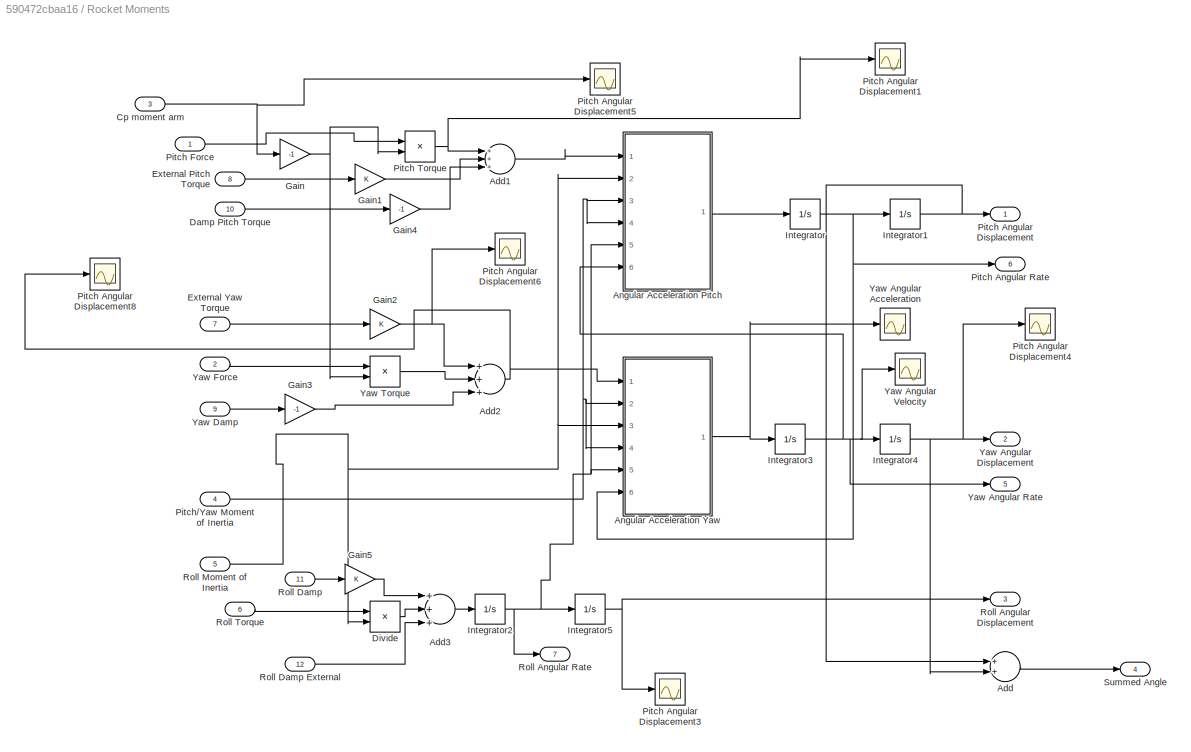
BLOCK [SubSystem] Rocket Moments
  Ports = [12, 7]
  RequestExecContextInheritance = off
  TreatAsAtomicUnit = on
BLOCK [Sum] Rocket Moments/Add
  InputSameDT = off
  OutDataTypeStr = Inherit: Inherit via internal rule
  Ports = [2, 1]
  SaturateOnIntegerOverflow = off
BLOCK [Sum] Rocket Moments/Add1
  InputSameDT = off
  Inputs = +++
  OutDataTypeStr = Inherit: Inherit via internal rule
  Ports = [3, 1]
  SaturateOnIntegerOverflow = off
BLOCK [Sum] Rocket Moments/Add2
  InputSameDT = off
  Inputs = +++
  OutDataTypeStr = Inherit: Inherit via internal rule
  Ports = [3, 1]
  SaturateOnIntegerOverflow = off
BLOCK [Sum] Rocket Moments/Add3
  InputSameDT = off
  Inputs = +++
  OutDataTypeStr = Inherit: Inherit via internal rule
  Ports = [3, 1]
  SaturateOnIntegerOverflow = off
BLOCK [SubSystem] Rocket Moments/Angular Acceleration Pitch
  ErrorFcn = Stateflow.Translate.translate
  PermitHierarchicalResolution = ExplicitOnly
  Ports = [6, 1]
  RequestExecContextInheritance = off
  SFBlockType = MATLAB Function
  TreatAsAtomicUnit = on
BLOCK [Demux] Rocket Moments/Angular Acceleration Pitch/ Demux 
  Outputs = 1
  Ports = [1, 1]
BLOCK [S-Function] Rocket Moments/Angular Acceleration Pitch/ SFunction 
  EnableBusSupport = on
  FunctionName = sf_sfun
  PortCounts = [6 2]
  Ports = [6, 2]
  SFcnIsStateOwnerBlock = off
  SFunctionDeploymentMode = off
  Tag = Stateflow S-Function 2
BLOCK [Terminator] Rocket Moments/Angular Acceleration Pitch/ Terminator 
BLOCK [Inport] Rocket Moments/Angular Acceleration Pitch/Ipitch
  IconDisplay = Port number
  Port = 4
BLOCK [Inport] Rocket Moments/Angular Acceleration Pitch/Iroll
  IconDisplay = Port number
  Port = 2
BLOCK [Inport] Rocket Moments/Angular Acceleration Pitch/Iyaw
  IconDisplay = Port number
  Port = 3
BLOCK [Inport] Rocket Moments/Angular Acceleration Pitch/Tp
  IconDisplay = Port number
BLOCK [Inport] Rocket Moments/Angular Acceleration Pitch/Wroll
  IconDisplay = Port number
  Port = 5
BLOCK [Inport] Rocket Moments/Angular Acceleration Pitch/Wyaw
  IconDisplay = Port number
  Port = 6
BLOCK [Outport] Rocket Moments/Angular Acceleration Pitch/y
  IconDisplay = Port number
  VectorParamsAs1DForOutWhenUnconnected = off
BLOCK [SubSystem] Rocket Moments/Angular Acceleration Yaw
  ErrorFcn = Stateflow.Translate.translate
  PermitHierarchicalResolution = ExplicitOnly
  Ports = [6, 1]
  RequestExecContextInheritance = off
  SFBlockType = MATLAB Function
  TreatAsAtomicUnit = on
BLOCK [Demux] Rocket Moments/Angular Acceleration Yaw/ Demux 
  Outputs = 1
  Ports = [1, 1]
BLOCK [S-Function] Rocket Moments/Angular Acceleration Yaw/ SFunction 
  EnableBusSupport = on
  FunctionName = sf_sfun
  PortCounts = [6 2]
  Ports = [6, 2]
  SFcnIsStateOwnerBlock = off
  SFunctionDeploymentMode = off
  Tag = Stateflow S-Function 1
BLOCK [Terminator] Rocket Moments/Angular Acceleration Yaw/ Terminator 
BLOCK [Inport] Rocket Moments/Angular Acceleration Yaw/Ipitch
  IconDisplay = Port number
  Port = 2
BLOCK [Inport] Rocket Moments/Angular Acceleration Yaw/Iroll
  IconDisplay = Port number
  Port = 3
BLOCK [Inport] Rocket Moments/Angular Acceleration Yaw/Iyaw
  IconDisplay = Port number
  Port = 4
BLOCK [Inport] Rocket Moments/Angular Acceleration Yaw/Ty
  IconDisplay = Port number
BLOCK [Inport] Rocket Moments/Angular Acceleration Yaw/Wpitch
  IconDisplay = Port number
  Port = 6
BLOCK [Inport] Rocket Moments/Angular Acceleration Yaw/Wroll
  IconDisplay = Port number
  Port = 5
BLOCK [Outport] Rocket Moments/Angular Acceleration Yaw/y
  IconDisplay = Port number
  VectorParamsAs1DForOutWhenUnconnected = off
BLOCK [Inport] Rocket Moments/Cp moment arm
  IconDisplay = Port number
  Port = 3
BLOCK [Inport] Rocket Moments/Damp Pitch Torque
  IconDisplay = Port number
  Port = 10
BLOCK [Product] Rocket Moments/Divide
  InputSameDT = off
  Inputs = */
  OutDataTypeStr = Inherit: Inherit via internal rule
  Ports = [2, 1]
  RndMeth = Floor
  SaturateOnIntegerOverflow = off
BLOCK [Inport] Rocket Moments/External Pitch Torque
  IconDisplay = Port number
  Port = 8
BLOCK [Inport] Rocket Moments/External Yaw Torque
  IconDisplay = Port number
  Port = 7
BLOCK [Gain] Rocket Moments/Gain
  Gain = -1
  OutDataTypeStr = Inherit: Inherit via internal rule
  ParamDataTypeStr = Inherit: Inherit via internal rule
  SaturateOnIntegerOverflow = off
BLOCK [Gain] Rocket Moments/Gain1
  OutDataTypeStr = Inherit: Inherit via internal rule
  ParamDataTypeStr = Inherit: Inherit via internal rule
  SaturateOnIntegerOverflow = off
BLOCK [Gain] Rocket Moments/Gain2
  OutDataTypeStr = Inherit: Inherit via internal rule
  ParamDataTypeStr = Inherit: Inherit via internal rule
  SaturateOnIntegerOverflow = off
BLOCK [Gain] Rocket Moments/Gain3
  Gain = -1
  OutDataTypeStr = Inherit: Inherit via internal rule
  ParamDataTypeStr = Inherit: Inherit via internal rule
  SaturateOnIntegerOverflow = off
BLOCK [Gain] Rocket Moments/Gain4
  Gain = -1
  OutDataTypeStr = Inherit: Inherit via internal rule
  ParamDataTypeStr = Inherit: Inherit via internal rule
  SaturateOnIntegerOverflow = off
BLOCK [Gain] Rocket Moments/Gain5
  OutDataTypeStr = Inherit: Inherit via internal rule
  ParamDataTypeStr = Inherit: Inherit via internal rule
  SaturateOnIntegerOverflow = off
BLOCK [Integrator] Rocket Moments/Integrator
  Ports = [1, 1]
BLOCK [Integrator] Rocket Moments/Integrator1
  Ports = [1, 1]
BLOCK [Integrator] Rocket Moments/Integrator2
  Ports = [1, 1]
BLOCK [Integrator] Rocket Moments/Integrator3
  Ports = [1, 1]
BLOCK [Integrator] Rocket Moments/Integrator4
  Ports = [1, 1]
BLOCK [Integrator] Rocket Moments/Integrator5
  Ports = [1, 1]
BLOCK [Outport] Rocket Moments/Pitch Angular Displacement
  IconDisplay = Port number
  VectorParamsAs1DForOutWhenUnconnected = off
BLOCK [Scope] Rocket Moments/Pitch Angular Displacement1
  Floating = off
  NumInputPorts = 1
  Ports = [1]
  ScopeSpecificationString = Simulink.scopes.TimeScopeBlockCfg('CurrentConfiguration', extmgr.ConfigurationSet(extmgr.Configuration('Core','General UI',true),extmgr.Configuration('Core','Source UI',true),extmgr.Configuration('Sources','WiredSimulink',true,'DataLoggingVariableName','ScopeData16'),extmgr.Configuration('Visuals','Time Domain',true,'SerializedDisplays',{struct('MinYLimReal','-497.89986','MaxYLimReal','428.87135',...<+1417ch>
BLOCK [Scope] Rocket Moments/Pitch Angular Displacement3
  Floating = off
  NumInputPorts = 1
  Ports = [1]
  ScopeSpecificationString = Simulink.scopes.TimeScopeBlockCfg('CurrentConfiguration', extmgr.ConfigurationSet(extmgr.Configuration('Core','General UI',true),extmgr.Configuration('Core','Source UI',true),extmgr.Configuration('Sources','WiredSimulink',true,'DataLoggingVariableName','ScopeData18'),extmgr.Configuration('Visuals','Time Domain',true,'SerializedDisplays',{struct('MinYLimReal','-1.00000','MaxYLimReal','1.00000','YLa...<+1371ch>
BLOCK [Scope] Rocket Moments/Pitch Angular Displacement4
  Floating = off
  NumInputPorts = 1
  Ports = [1]
  ScopeSpecificationString = Simulink.scopes.TimeScopeBlockCfg('CurrentConfiguration', extmgr.ConfigurationSet(extmgr.Configuration('Core','General UI',true),extmgr.Configuration('Core','Source UI',true),extmgr.Configuration('Sources','WiredSimulink',true,'DataLoggingVariableName','ScopeData5'),extmgr.Configuration('Visuals','Time Domain',true,'SerializedDisplays',{struct('MinYLimReal','-0.09274','MaxYLimReal','0.10365','YLab...<+1405ch>
BLOCK [Scope] Rocket Moments/Pitch Angular Displacement5
  Floating = off
  NumInputPorts = 1
  Ports = [1]
  ScopeSpecificationString = Simulink.scopes.TimeScopeBlockCfg('CurrentConfiguration', extmgr.ConfigurationSet(extmgr.Configuration('Core','General UI',true),extmgr.Configuration('Core','Source UI',true),extmgr.Configuration('Sources','WiredSimulink',true,'DataLoggingVariableName','ScopeData1'),extmgr.Configuration('Visuals','Time Domain',true,'SerializedDisplays',{struct('MinYLimReal','-0.10801','MaxYLimReal','0.97212','YLab...<+1405ch>
BLOCK [Scope] Rocket Moments/Pitch Angular Displacement6
  Floating = off
  NumInputPorts = 1
  Ports = [1]
  ScopeSpecificationString = Simulink.scopes.TimeScopeBlockCfg('CurrentConfiguration', extmgr.ConfigurationSet(extmgr.Configuration('Core','General UI',true),extmgr.Configuration('Core','Source UI',true),extmgr.Configuration('Sources','WiredSimulink',true,'DataLoggingVariableName','ScopeData2'),extmgr.Configuration('Visuals','Time Domain',true,'SerializedDisplays',{struct('MinYLimReal','-0.07591','MaxYLimReal','0.68316','YLab...<+1399ch>
BLOCK [Scope] Rocket Moments/Pitch Angular Displacement8
  Floating = off
  NumInputPorts = 1
  Ports = [1]
  ScopeSpecificationString = Simulink.scopes.TimeScopeBlockCfg('CurrentConfiguration', extmgr.ConfigurationSet(extmgr.Configuration('Core','General UI',true),extmgr.Configuration('Core','Source UI',true),extmgr.Configuration('Sources','WiredSimulink',true,'DataLoggingVariableName','ScopeData4'),extmgr.Configuration('Visuals','Time Domain',true,'SerializedDisplays',{struct('MinYLimReal','-18.68504','MaxYLimReal','15.5644','YLa...<+1399ch>
BLOCK [Outport] Rocket Moments/Pitch Angular Rate
  IconDisplay = Port number
  Port = 6
  VectorParamsAs1DForOutWhenUnconnected = off
BLOCK [Inport] Rocket Moments/Pitch Force
  IconDisplay = Port number
BLOCK [Product] Rocket Moments/Pitch Torque
  InputSameDT = off
  OutDataTypeStr = Inherit: Inherit via internal rule
  Ports = [2, 1]
  RndMeth = Floor
  SaturateOnIntegerOverflow = off
BLOCK [Inport] Rocket Moments/Pitch//Yaw Moment of Inertia
  IconDisplay = Port number
  Port = 4
BLOCK [Outport] Rocket Moments/Roll Angular Displacement
  IconDisplay = Port number
  Port = 3
  VectorParamsAs1DForOutWhenUnconnected = off
BLOCK [Outport] Rocket Moments/Roll Angular Rate
  IconDisplay = Port number
  Port = 7
  VectorParamsAs1DForOutWhenUnconnected = off
BLOCK [Inport] Rocket Moments/Roll Damp
  IconDisplay = Port number
  Port = 11
BLOCK [Inport] Rocket Moments/Roll Damp External
  IconDisplay = Port number
  Port = 12
BLOCK [Inport] Rocket Moments/Roll Moment of Inertia
  IconDisplay = Port number
  Port = 5
BLOCK [Inport] Rocket Moments/Roll Torque
  IconDisplay = Port number
  Port = 6
BLOCK [Outport] Rocket Moments/Summed Angle
  IconDisplay = Port number
  Port = 4
  VectorParamsAs1DForOutWhenUnconnected = off
BLOCK [Scope] Rocket Moments/Yaw Angular Acceleration
  Floating = off
  NumInputPorts = 1
  Ports = [1]
  ScopeSpecificationString = Simulink.scopes.TimeScopeBlockCfg('CurrentConfiguration', extmgr.ConfigurationSet(extmgr.Configuration('Core','General UI',true),extmgr.Configuration('Core','Source UI',true),extmgr.Configuration('Sources','WiredSimulink',true,'DataLoggingVariableName','ScopeData17'),extmgr.Configuration('Visuals','Time Domain',true,'SerializedDisplays',{struct('MinYLimReal','-0.79865','MaxYLimReal','0.7009','YLab...<+1417ch>
BLOCK [Outport] Rocket Moments/Yaw Angular Displacement
  IconDisplay = Port number
  Port = 2
  VectorParamsAs1DForOutWhenUnconnected = off
BLOCK [Outport] Rocket Moments/Yaw Angular Rate
  IconDisplay = Port number
  Port = 5
  VectorParamsAs1DForOutWhenUnconnected = off
BLOCK [Scope] Rocket Moments/Yaw Angular Velocity
  Floating = off
  NumInputPorts = 1
  Ports = [1]
  ScopeSpecificationString = Simulink.scopes.TimeScopeBlockCfg('CurrentConfiguration', extmgr.ConfigurationSet(extmgr.Configuration('Core','General UI',true),extmgr.Configuration('Core','Source UI',true),extmgr.Configuration('Sources','WiredSimulink',true,'DataLoggingVariableName','ScopeData4'),extmgr.Configuration('Visuals','Time Domain',true,'SerializedDisplays',{struct('MinYLimReal','-0.00258','MaxYLimReal','0.00255','YLab...<+1402ch>
BLOCK [Inport] Rocket Moments/Yaw Damp
  IconDisplay = Port number
  Port = 9
BLOCK [Inport] Rocket Moments/Yaw Force
  IconDisplay = Port number
  Port = 2
BLOCK [Product] Rocket Moments/Yaw Torque
  InputSameDT = off
  OutDataTypeStr = Inherit: Inherit via internal rule
  Ports = [2, 1]
  RndMeth = Floor
  SaturateOnIntegerOverflow = off
BLOCK [Constant] RocketDiameter
  Value = 0.0779
BLOCK [Constant] RocketLength
  Value = 3.17
BLOCK [Scope] Roll Angle Displacement
  Floating = off
  NumInputPorts = 1
  Ports = [1]
  ScopeSpecificationString = Simulink.scopes.TimeScopeBlockCfg('CurrentConfiguration', extmgr.ConfigurationSet(extmgr.Configuration('Core','General UI',true),extmgr.Configuration('Core','Source UI',true),extmgr.Configuration('Sources','WiredSimulink',true,'DataLoggingVariableName','ScopeData4'),extmgr.Configuration('Visuals','Time Domain',true,'SerializedDisplays',{struct('MinYLimReal','-3801.27932','MaxYLimReal','422.36437',...<+1428ch>
BLOCK [Display] Roll Rate (rev//s)
  Decimation = 1
  Ports = [1]
BLOCK [Scope] Roll Rates (rev//s)
  Floating = off
  NumInputPorts = 1
  Ports = [1]
  ScopeSpecificationString = Simulink.scopes.TimeScopeBlockCfg('CurrentConfiguration', extmgr.ConfigurationSet(extmgr.Configuration('Core','General UI',true),extmgr.Configuration('Core','Source UI',true),extmgr.Configuration('Sources','WiredSimulink',true,'DataLoggingVariableName','ScopeData1'),extmgr.Configuration('Visuals','Time Domain',true,'SerializedDisplays',{struct('MinYLimReal','-55.95147','MaxYLimReal','21.63019','YL...<+1459ch>
BLOCK [Scope] Roll Torque
  Floating = off
  NumInputPorts = 1
  Ports = [1]
  ScopeSpecificationString = Simulink.scopes.TimeScopeBlockCfg('CurrentConfiguration', extmgr.ConfigurationSet(extmgr.Configuration('Core','General UI',true),extmgr.Configuration('Core','Source UI',true),extmgr.Configuration('Sources','WiredSimulink',true,'DataLoggingVariableName','ScopeData3'),extmgr.Configuration('Visuals','Time Domain',true,'SerializedDisplays',{struct('MinYLimReal','-1.00000','MaxYLimReal','1.00000','YLab...<+1410ch>
BLOCK [Scope] Roll Torque1
  Floating = off
  NumInputPorts = 1
  Ports = [1]
  ScopeSpecificationString = Simulink.scopes.TimeScopeBlockCfg('CurrentConfiguration', extmgr.ConfigurationSet(extmgr.Configuration('Core','General UI',true),extmgr.Configuration('Core','Source UI',true),extmgr.Configuration('Sources','WiredSimulink',true,'DataLoggingVariableName','ScopeData2'),extmgr.Configuration('Visuals','Time Domain',true,'SerializedDisplays',{struct('MinYLimReal','-1.00000','MaxYLimReal','1.00000','YLab...<+1416ch>
BLOCK [Scope] Scope1
  Floating = off
  NumInputPorts = 1
  Ports = [1]
  ScopeSpecificationString = Simulink.scopes.TimeScopeBlockCfg('CurrentConfiguration', extmgr.ConfigurationSet(extmgr.Configuration('Core','General UI',true),extmgr.Configuration('Core','Source UI',true),extmgr.Configuration('Sources','WiredSimulink',true,'DataLoggingVariableName','ScopeData1'),extmgr.Configuration('Visuals','Time Domain',true,'SerializedDisplays',{struct('MinYLimReal','17090.72408','MaxYLimReal','46183.48326...<+1486ch>
BLOCK [Scope] Scope2
  Floating = off
  NumInputPorts = 1
  Ports = [1]
  ScopeSpecificationString = Simulink.scopes.TimeScopeBlockCfg('CurrentConfiguration', extmgr.ConfigurationSet(extmgr.Configuration('Core','General UI',true),extmgr.Configuration('Core','Source UI',true),extmgr.Configuration('Sources','WiredSimulink',true,'DataLoggingVariableName','ScopeData2'),extmgr.Configuration('Visuals','Time Domain',true,'SerializedDisplays',{struct('MinYLimReal','-1405.8303','MaxYLimReal','11162.39286'...<+1398ch>
BLOCK [Scope] Scope3
  Floating = off
  NumInputPorts = 1
  Ports = [1]
  ScopeSpecificationString = Simulink.scopes.TimeScopeBlockCfg('CurrentConfiguration', extmgr.ConfigurationSet(extmgr.Configuration('Core','General UI',true),extmgr.Configuration('Core','Source UI',true),extmgr.Configuration('Sources','WiredSimulink',true,'DataLoggingVariableName','ScopeData1'),extmgr.Configuration('Visuals','Time Domain',true,'SerializedDisplays',{struct('MinYLimReal','-1493.04569','MaxYLimReal','1607.38769'...<+1429ch>
BLOCK [Scope] Scope4
  Floating = off
  NumInputPorts = 1
  Ports = [1]
  ScopeSpecificationString = Simulink.scopes.TimeScopeBlockCfg('CurrentConfiguration', extmgr.ConfigurationSet(extmgr.Configuration('Core','General UI',true),extmgr.Configuration('Core','Source UI',true),extmgr.Configuration('Sources','WiredSimulink',true,'DataLoggingVariableName','ScopeData5'),extmgr.Configuration('Visuals','Time Domain',true,'SerializedDisplays',{struct('MinYLimReal','271.64919','MaxYLimReal','352.24984','Y...<+1391ch>
BLOCK [Scope] Scope6
  Floating = off
  NumInputPorts = 1
  Ports = [1]
  ScopeSpecificationString = Simulink.scopes.TimeScopeBlockCfg('CurrentConfiguration', extmgr.ConfigurationSet(extmgr.Configuration('Core','General UI',true),extmgr.Configuration('Core','Source UI',true),extmgr.Configuration('Sources','WiredSimulink',true,'DataLoggingVariableName','ScopeData14'),extmgr.Configuration('Visuals','Time Domain',true,'SerializedDisplays',{struct('MinYLimReal','-1.00000','MaxYLimReal','1.00000','YLa...<+1417ch>
BLOCK [Scope] Scope7
  Floating = off
  NumInputPorts = 1
  Ports = [1]
  ScopeSpecificationString = Simulink.scopes.TimeScopeBlockCfg('CurrentConfiguration', extmgr.ConfigurationSet(extmgr.Configuration('Core','General UI',true),extmgr.Configuration('Core','Source UI',true),extmgr.Configuration('Sources','WiredSimulink',true,'DataLoggingVariableName','ScopeData15'),extmgr.Configuration('Visuals','Time Domain',true,'SerializedDisplays',{struct('MinYLimReal','-171.80311','MaxYLimReal','19.10075','...<+1429ch>
BLOCK [Constant] Thrust Roll Perct
  Value = 0.1158
BLOCK [ToWorkspace] To Workspace
  FixptAsFi = on
  MaxDataPoints = inf
  Ports = [1]
  SampleTime = -1
  VariableName = PitchAngle
BLOCK [ToWorkspace] To Workspace1
  FixptAsFi = on
  MaxDataPoints = inf
  Ports = [1]
  SampleTime = -1
  VariableName = YawAngle
BLOCK [ToWorkspace] To Workspace2
  FixptAsFi = on
  MaxDataPoints = inf
  Ports = [1]
  SampleTime = -1
  VariableName = Altitude
BLOCK [ToWorkspace] To Workspace3
  FixptAsFi = on
  MaxDataPoints = inf
  Ports = [1]
  SampleTime = -1
  VariableName = Xdisplace
BLOCK [ToWorkspace] To Workspace4
  FixptAsFi = on
  MaxDataPoints = inf
  Ports = [1]
  SampleTime = -1
  VariableName = Ydisplace
BLOCK [ToWorkspace] To Workspace5
  FixptAsFi = on
  MaxDataPoints = inf
  Ports = [1]
  SampleTime = -1
  VariableName = Roll_Rev
BLOCK [ToWorkspace] To Workspace6
  FixptAsFi = on
  MaxDataPoints = inf
  Ports = [1]
  SampleTime = -1
  VariableName = PitchRate
BLOCK [ToWorkspace] To Workspace7
  FixptAsFi = on
  MaxDataPoints = inf
  Ports = [1]
  SampleTime = -1
  VariableName = YawRate
BLOCK [Constant] TotalMass
  Value = 58
BLOCK [UnitDelay] Unit Delay1
  HasFrameUpgradeWarning = on
  SampleTime = -1
BLOCK [UnitDelay] Unit Delay2
  HasFrameUpgradeWarning = on
  SampleTime = -1
BLOCK [UnitDelay] Unit Delay3
  HasFrameUpgradeWarning = on
  SampleTime = -1
BLOCK [UnitDelay] Unit Delay4
  HasFrameUpgradeWarning = on
  SampleTime = -1
BLOCK [UnitDelay] Unit Delay5
  HasFrameUpgradeWarning = on
  SampleTime = -1
BLOCK [UnitDelay] Unit Delay6
  HasFrameUpgradeWarning = on
  SampleTime = -1
BLOCK [UnitDelay] Unit Delay7
  HasFrameUpgradeWarning = on
  SampleTime = -1
BLOCK [Display] Yaw Angle
  Decimation = 1
  Ports = [1]
BLOCK [Scope] Yaw Angle Displacement (rocket frame)
  Floating = off
  NumInputPorts = 1
  Ports = [1]
  ScopeSpecificationString = Simulink.scopes.TimeScopeBlockCfg('CurrentConfiguration', extmgr.ConfigurationSet(extmgr.Configuration('Core','General UI',true),extmgr.Configuration('Core','Source UI',true),extmgr.Configuration('Sources','WiredSimulink',true,'DataLoggingVariableName','ScopeData10'),extmgr.Configuration('Visuals','Time Domain',true,'SerializedDisplays',{struct('MinYLimReal','-374.35924','MaxYLimReal','672.59455',...<+1469ch>
BLOCK [Scope] Yaw Force
  Floating = off
  NumInputPorts = 1
  Ports = [1]
  ScopeSpecificationString = Simulink.scopes.TimeScopeBlockCfg('CurrentConfiguration', extmgr.ConfigurationSet(extmgr.Configuration('Core','General UI',true),extmgr.Configuration('Core','Source UI',true),extmgr.Configuration('Sources','WiredSimulink',true,'DataLoggingVariableName','ScopeData2'),extmgr.Configuration('Visuals','Time Domain',true,'SerializedDisplays',{struct('MinYLimReal','-57.00591','MaxYLimReal','72.37271','YL...<+1409ch>
BLOCK [Reference] Yaw Random OffAxis  REF=dspsrcs4/Random
Source
  Ports = [0, 1]
  SourceBlock = dspsrcs4/Random\nSource
  SourceProductBaseCode = DS
  SourceProductName = DSP System Toolbox
  SourceType = Random Source
  UserDataPersistent = on
BLOCK [Constant] thrust misalign degree pitch
  Value = 0.078807
BLOCK [Constant] thrust misalign degree yaw
  Value = 0
ANNOTATION Rocket Aerodynamic Variables: All table values need to be x2 (until updated) ****6/17/18
LINE Add:1 -> Atomic Subsystem:8
LINE Angle Conversion1:1 -> Atomic Subsystem:3
NET Angle Conversion2:1 -> Rocket Aerodynamic Variables:5, To Workspace1:1, Yaw Angle Displacement (rocket frame):1, Yaw Angle:1
NET Angle Conversion3:1 -> Out1:1, Pitch Angle Displacement (rocket frame):1, Pitch Angle:1, Pitch Angular Displacement:1, Rocket Aerodynamic Variables:2, To Workspace:1
NET Angle Conversion4:1 -> Roll Rate (rev//s):1, Roll Rates (rev//s):1, To Workspace5:1
LINE Angle Conversion5:1 -> MATLAB Function2:1
LINE Angle Conversion6:1 -> To Workspace7:1
LINE Angle Conversion7:1 -> To Workspace6:1
LINE Angle Conversion:1 -> Atomic Subsystem:2
NET Atmospheric Var./Altitude:1 -> Atmospheric Var./Unit Delay1:1, Atmospheric Var./Unit Delay2:1
LINE Atmospheric Var./Density Lookup:1 -> Atmospheric Var./Density:1
LINE Atmospheric Var./MATLAB Function:1 -> Atmospheric Var./Speed of Sound:1
LINE Atmospheric Var./Temp Lookup:1 -> Atmospheric Var./Temperature Conversion:1
LINE Atmospheric Var./Temperature Conversion:1 -> Atmospheric Var./MATLAB Function:1
LINE Atmospheric Var./Unit Delay1:1 -> Atmospheric Var./Temp Lookup:1
LINE Atmospheric Var./Unit Delay2:1 -> Atmospheric Var./Density Lookup:1
NET Atmospheric Var.:1 -> Atomic Subsystem1:6, Density:1, MATLAB Function2:4, Rocket Aerodynamic Variables:3
NET Atmospheric Var.:2 -> Rocket Aerodynamic Variables:4, Scope4:1
NET Atomic Subsystem/Add:1 -> Atomic Subsystem/Product1:2, Atomic Subsystem/Product2:2, Atomic Subsystem/Product:2
LINE Atomic Subsystem/CParm:1 -> Atomic Subsystem/Add:1
LINE Atomic Subsystem/Height:1 -> Atomic Subsystem/Memory:1
NET Atomic Subsystem/Launch Rail Length:1 -> Atomic Subsystem/MATLAB Function1:4, Atomic Subsystem/MATLAB Function2:4, Atomic Subsystem/MATLAB Function:4
LINE Atomic Subsystem/Length:1 -> Atomic Subsystem/Add:2
NET Atomic Subsystem/MATLAB Function1:1 -> Atomic Subsystem/Product1:1, Atomic Subsystem/Yaw Force:1
NET Atomic Subsystem/MATLAB Function2:1 -> Atomic Subsystem/Product2:1, Atomic Subsystem/Roll Force:1
NET Atomic Subsystem/MATLAB Function:1 -> Atomic Subsystem/Pitch Force:1, Atomic Subsystem/Product:1
NET Atomic Subsystem/Memory:1 -> Atomic Subsystem/MATLAB Function1:3, Atomic Subsystem/MATLAB Function2:3, Atomic Subsystem/MATLAB Function:3
LINE Atomic Subsystem/Pitch OffAxis Angle:1 -> Atomic Subsystem/MATLAB Function:2
LINE Atomic Subsystem/Product1:1 -> Atomic Subsystem/Torque Yaw:1
LINE Atomic Subsystem/Product2:1 -> Atomic Subsystem/Torque Roll:1
NET Atomic Subsystem/Product:1 -> Atomic Subsystem/Scope:1, Atomic Subsystem/Torque Pitch:1
NET Atomic Subsystem/Thrust Input:1 -> Atomic Subsystem/MATLAB Function1:1, Atomic Subsystem/MATLAB Function2:1, Atomic Subsystem/MATLAB Function:1
LINE Atomic Subsystem/Yaw OffAxis Angle1:1 -> Atomic Subsystem/MATLAB Function1:2
LINE Atomic Subsystem/roll torque %:1 -> Atomic Subsystem/MATLAB Function2:2
LINE Atomic Subsystem1/1-D Lookup Table:1 -> Atomic Subsystem1/Roll Damp1:1
NET Atomic Subsystem1/Add1:1 -> Atomic Subsystem1/Damp Yaw Torque:1, Atomic Subsystem1/Scope1:1
NET Atomic Subsystem1/Add2:1 -> Atomic Subsystem1/MATLAB Function2:2, Atomic Subsystem1/MATLAB Function5:2
LINE Atomic Subsystem1/Add3:1 -> Atomic Subsystem1/Damp Pitch Torque:1
LINE Atomic Subsystem1/Airdensity:1 -> Atomic Subsystem1/Product:1
NET Atomic Subsystem1/Angular Rate Pitch:1 -> Atomic Subsystem1/MATLAB Function3:1, Atomic Subsystem1/MATLAB Function4:1, Atomic Subsystem1/MATLAB Function5:1
NET Atomic Subsystem1/Angular Rate Yaw:1 -> Atomic Subsystem1/MATLAB Function1:1, Atomic Subsystem1/MATLAB Function2:1, Atomic Subsystem1/MATLAB Function:1
NET Atomic Subsystem1/CG Length:1 -> Atomic Subsystem1/Add2:1, Atomic Subsystem1/MATLAB Function1:4, Atomic Subsystem1/MATLAB Function3:5, Atomic Subsystem1/MATLAB Function4:5, Atomic Subsystem1/MATLAB Function:5
NET Atomic Subsystem1/Constant1:1 -> Atomic Subsystem1/MATLAB Function3:4, Atomic Subsystem1/MATLAB Function4:4, Atomic Subsystem1/MATLAB Function:4
LINE Atomic Subsystem1/Constant2:1 -> Atomic Subsystem1/Product:2
NET Atomic Subsystem1/Constant:1 -> Atomic Subsystem1/MATLAB Function1:3, Atomic Subsystem1/MATLAB Function3:3, Atomic Subsystem1/MATLAB Function4:3, Atomic Subsystem1/MATLAB Function:3
NET Atomic Subsystem1/Fin Area:1 -> Atomic Subsystem1/MATLAB Function2:3, Atomic Subsystem1/MATLAB Function5:3
LINE Atomic Subsystem1/Fin Base Length:1 -> Atomic Subsystem1/Roll Damp:6
LINE Atomic Subsystem1/Fin Cd:1 -> Atomic Subsystem1/Roll Damp:1
LINE Atomic Subsystem1/Fin Length:1 -> Atomic Subsystem1/Roll Damp:5
LINE Atomic Subsystem1/Fin Tip Length:1 -> Atomic Subsystem1/Roll Damp:4
LINE Atomic Subsystem1/FinArea:1 -> Atomic Subsystem1/Roll Damp1:3
LINE Atomic Subsystem1/Gain:1 -> Atomic Subsystem1/Roll Damp:7
LINE Atomic Subsystem1/MATLAB Function1:1 -> Atomic Subsystem1/Add1:2
NET Atomic Subsystem1/MATLAB Function2:1 -> Atomic Subsystem1/Add1:3, Atomic Subsystem1/Scope2:1
LINE Atomic Subsystem1/MATLAB Function3:1 -> Atomic Subsystem1/Add3:1
LINE Atomic Subsystem1/MATLAB Function4:1 -> Atomic Subsystem1/Add3:2
LINE Atomic Subsystem1/MATLAB Function5:1 -> Atomic Subsystem1/Add3:3
NET Atomic Subsystem1/MATLAB Function:1 -> Atomic Subsystem1/Add1:1, Atomic Subsystem1/Scope:1
LINE Atomic Subsystem1/MagVelocity:1 -> Atomic Subsystem1/1-D Lookup Table:1
NET Atomic Subsystem1/Product:1 -> Atomic Subsystem1/MATLAB Function1:6, Atomic Subsystem1/MATLAB Function2:4, Atomic Subsystem1/MATLAB Function3:6, Atomic Subsystem1/MATLAB Function4:6, Atomic Subsystem1/MATLAB Function5:4, Atomic Subsystem1/MATLAB Function:6, Atomic Subsystem1/Roll Damp1:2, Atomic Subsystem1/Roll Damp:2
NET Atomic Subsystem1/Rocket Diameter:1 -> Atomic Subsystem1/Gain:1, Atomic Subsystem1/MATLAB Function1:2, Atomic Subsystem1/MATLAB Function3:2, Atomic Subsystem1/MATLAB Function4:2, Atomic Subsystem1/MATLAB Function:2
NET Atomic Subsystem1/Rocket Length:1 -> Atomic Subsystem1/Add2:2, Atomic Subsystem1/MATLAB Function1:5
LINE Atomic Subsystem1/Roll Damp1:1 -> Atomic Subsystem1/New Roll Damp:1
NET Atomic Subsystem1/Roll Damp:1 -> Atomic Subsystem1/Fin Damp Torque:1, Atomic Subsystem1/Old Roll Damp:1
NET Atomic Subsystem1/Roll Rate:1 -> Atomic Subsystem1/Old Roll Damp1:1, Atomic Subsystem1/Roll Damp1:4, Atomic Subsystem1/Roll Damp:3
LINE Atomic Subsystem1:1 -> Rocket Moments:9
LINE Atomic Subsystem1:2 -> Rocket Moments:10
LINE Atomic Subsystem1:3 -> Rocket Moments:11
LINE Atomic Subsystem:1 -> Rocket Moments:8
LINE Atomic Subsystem:2 -> Rocket Moments:7
NET Atomic Subsystem:3 -> Rocket Moments:6, Roll Torque:1
LINE Atomic Subsystem:4 -> Rocket Dynamic Variables :8
LINE Atomic Subsystem:5 -> Rocket Dynamic Variables :9
LINE Atomic Subsystem:6 -> Rocket Dynamic Variables :10
LINE Avg Thrust Step:1 -> Rocket Dynamic Variables :11
LINE BurnTime:1 -> Rocket Dynamic Variables :4
LINE CG_final:1 -> Rocket Dynamic Variables :6
LINE CG_inital:1 -> Rocket Dynamic Variables :5
LINE Constant13:1 -> Global Reference Frame:9
LINE Constant5:1 -> Atomic Subsystem1:8
LINE CrossSection:1 -> Rocket Forces:2
LINE Divide:1 -> Calibur of Stability:1
LINE Fin Angle:1 -> Angle Conversion5:1
LINE FinArea:1 -> Atomic Subsystem1:5
NET FinBaseLgth:1 -> Atomic Subsystem1:12, MATLAB Function2:6, MATLAB Function3:1
NET FinLength:1 -> Atomic Subsystem1:11, MATLAB Function2:8, MATLAB Function3:3
NET FinTipLgth:1 -> Atomic Subsystem1:10, MATLAB Function2:7, MATLAB Function3:2
LINE Gain1:1 -> Angle Conversion1:1
NET Gain2:1 -> Angle Input randomizer1:1, Atomic Subsystem:6
NET Gain3:1 -> Roll Torque1:1, Unit Delay2:1
LINE Gain4:1 -> MATLAB Function2:2
LINE Gain5:1 -> MATLAB Function2:3
LINE Gain6:1 -> Manual Switch:1
LINE Gain7:1 -> Manual Switch1:1
LINE Gain8:1 -> Manual Switch:2
LINE Gain:1 -> Angle Conversion:1
LINE Gaussian Random:1 -> Gain8:1
LINE Global Reference Frame/Add1:1 -> Global Reference Frame/Integrator2:1
LINE Global Reference Frame/Add2:1 -> Global Reference Frame/Integrator3:1
NET Global Reference Frame/Add:1 -> Global Reference Frame/Coriolis Accel.:4, Global Reference Frame/Integrator:1, Global Reference Frame/Scope1:1
LINE Global Reference Frame/Axial Force:1 -> Global Reference Frame/Divide:1
NET Global Reference Frame/Coriolis Accel./Earth Rotation Rate:1 -> Global Reference Frame/Coriolis Accel./X acceleration:1, Global Reference Frame/Coriolis Accel./Y acceleration:1, Global Reference Frame/Coriolis Accel./Z acceleration:1
NET Global Reference Frame/Coriolis Accel./Lattitude (deg):1 -> Global Reference Frame/Coriolis Accel./X acceleration:2, Global Reference Frame/Coriolis Accel./Y acceleration:2, Global Reference Frame/Coriolis Accel./Z acceleration:2
NET Global Reference Frame/Coriolis Accel./Velocity X:1 -> Global Reference Frame/Coriolis Accel./X acceleration:3, Global Reference Frame/Coriolis Accel./Y acceleration:3
LINE Global Reference Frame/Coriolis Accel./Velocity Y:1 -> Global Reference Frame/Coriolis Accel./Z acceleration:3
LINE Global Reference Frame/Coriolis Accel./Velocity Z:1 -> Global Reference Frame/Coriolis Accel./Y acceleration:4
NET Global Reference Frame/Coriolis Accel./X acceleration:1 -> Global Reference Frame/Coriolis Accel./Coroiolis Acceleration X:1, Global Reference Frame/Coriolis Accel./Wind Y:1
NET Global Reference Frame/Coriolis Accel./Y acceleration:1 -> Global Reference Frame/Coriolis Accel./Coroiolis Acceleration Y:1, Global Reference Frame/Coriolis Accel./Wind X:1
LINE Global Reference Frame/Coriolis Accel./Z acceleration:1 -> Global Reference Frame/Coriolis Accel./Coroiolis Acceleration Z:1
NET Global Reference Frame/Coriolis Accel.:1 -> Global Reference Frame/Add1:1, Global Reference Frame/Scope6:1
NET Global Reference Frame/Coriolis Accel.:2 -> Global Reference Frame/Add:3, Global Reference Frame/Scope5:1
NET Global Reference Frame/Coriolis Accel.:3 -> Global Reference Frame/Add2:1, Global Reference Frame/Scope8:1
NET Global Reference Frame/Divide1:1 -> Global Reference Frame/Rocket Frame to Earth Frame:2, Global Reference Frame/Scope3:1
NET Global Reference Frame/Divide2:1 -> Global Reference Frame/Rocket Frame to Earth Frame:6, Global Reference Frame/Scope4:1
NET Global Reference Frame/Divide:1 -> Global Reference Frame/Rocket Frame to Earth Frame:1, Global Reference Frame/Scope2:1
LINE Global Reference Frame/Earth Rotation:1 -> Global Reference Frame/Coriolis Accel.:1
LINE Global Reference Frame/Inital Altitude:1 -> Global Reference Frame/Integrator1:2
NET Global Reference Frame/Integrator1:1 -> Global Reference Frame/Local G:1, Global Reference Frame/Pos Y:1
NET Global Reference Frame/Integrator2:1 -> Global Reference Frame/Coriolis Accel.:3, Global Reference Frame/Integrator4:1, Global Reference Frame/MATLAB Function:2, Global Reference Frame/Scope7:1, Global Reference Frame/Vel Z:1
NET Global Reference Frame/Integrator3:1 -> Global Reference Frame/Coriolis Accel.:5, Global Reference Frame/Integrator5:1, Global Reference Frame/MATLAB Function:3, Global Reference Frame/Vel X:1
LINE Global Reference Frame/Integrator4:1 -> Global Reference Frame/Pos Z:1
LINE Global Reference Frame/Integrator5:1 -> Global Reference Frame/Pos X:1
NET Global Reference Frame/Integrator:1 -> Global Reference Frame/Integrator1:1, Global Reference Frame/MATLAB Function:1, Global Reference Frame/Vel Y :1
LINE Global Reference Frame/Latitude (Degrees):1 -> Global Reference Frame/Coriolis Accel.:2
LINE Global Reference Frame/Local G/Add:1 -> Global Reference Frame/Local G/Divide:2
LINE Global Reference Frame/Local G/Air Density Approx.:1 -> Global Reference Frame/Local G/Product:2
LINE Global Reference Frame/Local G/Divide:1 -> Global Reference Frame/Local G/Air Density Approx.:1
LINE Global Reference Frame/Local G/G:1 -> Global Reference Frame/Local G/Product:1
LINE Global Reference Frame/Local G/Height:1 -> Global Reference Frame/Local G/Add:2
LINE Global Reference Frame/Local G/Product:1 -> Global Reference Frame/Local G/Local G:1
NET Global Reference Frame/Local G/Radius of Earth:1 -> Global Reference Frame/Local G/Add:1, Global Reference Frame/Local G/Divide:1
LINE Global Reference Frame/Local G:1 -> Global Reference Frame/Add:2
NET Global Reference Frame/MATLAB Function:1 -> Global Reference Frame/Magnitude Velocity:1, Global Reference Frame/Scope:1
LINE Global Reference Frame/Pitch Angular Displacement:1 -> Global Reference Frame/Rocket Frame to Earth Frame:4
LINE Global Reference Frame/Pitch Force:1 -> Global Reference Frame/Divide1:1
NET Global Reference Frame/Rocket Frame to Earth Frame/Angle X:1 -> Global Reference Frame/Rocket Frame to Earth Frame/Euler Transform for X:6, Global Reference Frame/Rocket Frame to Earth Frame/Euler Transform for Y:4, Global Reference Frame/Rocket Frame to Earth Frame/Euler Transform for Z:4
NET Global Reference Frame/Rocket Frame to Earth Frame/Angle Y:1 -> Global Reference Frame/Rocket Frame to Earth Frame/Euler Transform for X:4, Global Reference Frame/Rocket Frame to Earth Frame/Euler Transform for Y:5, Global Reference Frame/Rocket Frame to Earth Frame/Euler Transform for Z:5
NET Global Reference Frame/Rocket Frame to Earth Frame/Angle Z:1 -> Global Reference Frame/Rocket Frame to Earth Frame/Euler Transform for X:5, Global Reference Frame/Rocket Frame to Earth Frame/Euler Transform for Y:6
LINE Global Reference Frame/Rocket Frame to Earth Frame/Euler Transform for X:1 -> Global Reference Frame/Rocket Frame to Earth Frame/Earth Frame X(Upward):1
LINE Global Reference Frame/Rocket Frame to Earth Frame/Euler Transform for Y:1 -> Global Reference Frame/Rocket Frame to Earth Frame/Earth Frame Y:1
LINE Global Reference Frame/Rocket Frame to Earth Frame/Euler Transform for Z:1 -> Global Reference Frame/Rocket Frame to Earth Frame/Earth Frame Z:1
NET Global Reference Frame/Rocket Frame to Earth Frame/vector X:1 -> Global Reference Frame/Rocket Frame to Earth Frame/Euler Transform for X:1, Global Reference Frame/Rocket Frame to Earth Frame/Euler Transform for Y:1, Global Reference Frame/Rocket Frame to Earth Frame/Euler Transform for Z:1
NET Global Reference Frame/Rocket Frame to Earth Frame/vector Y:1 -> Global Reference Frame/Rocket Frame to Earth Frame/Euler Transform for X:2, Global Reference Frame/Rocket Frame to Earth Frame/Euler Transform for Y:2, Global Reference Frame/Rocket Frame to Earth Frame/Euler Transform for Z:2
NET Global Reference Frame/Rocket Frame to Earth Frame/vector Z:1 -> Global Reference Frame/Rocket Frame to Earth Frame/Euler Transform for X:3, Global Reference Frame/Rocket Frame to Earth Frame/Euler Transform for Y:3, Global Reference Frame/Rocket Frame to Earth Frame/Euler Transform for Z:3
LINE Global Reference Frame/Rocket Frame to Earth Frame:1 -> Global Reference Frame/Add:1
LINE Global Reference Frame/Rocket Frame to Earth Frame:2 -> Global Reference Frame/Add1:2
LINE Global Reference Frame/Rocket Frame to Earth Frame:3 -> Global Reference Frame/Add2:2
NET Global Reference Frame/Rocket Mass:1 -> Global Reference Frame/Divide1:2, Global Reference Frame/Divide2:2, Global Reference Frame/Divide:2
LINE Global Reference Frame/Roll Angular Displacement:1 -> Global Reference Frame/Rocket Frame to Earth Frame:3
LINE Global Reference Frame/Yaw Angular Displacement:1 -> Global Reference Frame/Rocket Frame to Earth Frame:5
LINE Global Reference Frame/Yaw Force:1 -> Global Reference Frame/Divide2:1
NET Global Reference Frame:1 -> Mag Velocity:1, Unit Delay3:1, Unit Delay6:1, Unit Delay7:1
NET Global Reference Frame:2 -> Downrange X:1, Scope6:1, To Workspace3:1
NET Global Reference Frame:3 -> Downrange Z:1, Scope7:1, To Workspace4:1
NET Global Reference Frame:4 -> Altitude:1, Atmospheric Var.:1, Atomic Subsystem:7, Scope1:1, To Workspace2:1
NET Inital_Alt:1 -> Add:1, Global Reference Frame:8
LINE Launch Rail Length:1 -> Add:2
LINE MATLAB Function1:1 -> Rocket Moments:5
LINE MATLAB Function2:1 -> Gain3:1
LINE MATLAB Function3:1 -> Atomic Subsystem1:14
LINE MATLAB Function:1 -> Rocket Moments:4
LINE Manual Switch1:1 -> Gain2:1
LINE Manual Switch3:1 -> Gain:1
LINE Manual Switch4:1 -> Gain1:1
LINE Manual Switch:1 -> Manual Switch3:2
LINE PlanarArea:1 -> Rocket Forces:5
LINE PropMass:1 -> Rocket Dynamic Variables :3
LINE Random Source2:1 -> Gain7:1
LINE Random Source:1 -> Gain6:1
NET Rocket Aerodynamic Variables/Abs1:1 -> Rocket Aerodynamic Variables/Saturation1:1, Rocket Aerodynamic Variables/Scope3:1
LINE Rocket Aerodynamic Variables/Abs:1 -> Rocket Aerodynamic Variables/Saturation:1
LINE Rocket Aerodynamic Variables/Angle Conversion1:1 -> Rocket Aerodynamic Variables/Dynam Pressure1:1
LINE Rocket Aerodynamic Variables/Angle Conversion:1 -> Rocket Aerodynamic Variables/Dynam Pressure2:1
LINE Rocket Aerodynamic Variables/Cd Table:1 -> Rocket Aerodynamic Variables/Gain:1
LINE Rocket Aerodynamic Variables/Coefficient of Normal Drag u1 = AOA (Degrees) u2 = Mach #1:1 -> Rocket Aerodynamic Variables/Gain2:1
LINE Rocket Aerodynamic Variables/Coefficient of Normal Drag u1 = AOA (Degrees) u2 = Mach #:1 -> Rocket Aerodynamic Variables/Gain1:1
NET Rocket Aerodynamic Variables/Density:1 -> Rocket Aerodynamic Variables/Dynam Pressure1:2, Rocket Aerodynamic Variables/Dynam Pressure2:2, Rocket Aerodynamic Variables/Dynam Pressure:1
NET Rocket Aerodynamic Variables/Divide:1 -> Rocket Aerodynamic Variables/Cd Table:1, Rocket Aerodynamic Variables/Coefficient of Normal Drag u1 = AOA (Degrees) u2 = Mach #1:2, Rocket Aerodynamic Variables/Coefficient of Normal Drag u1 = AOA (Degrees) u2 = Mach #:2, Rocket Aerodynamic Variables/Mach #:1
LINE Rocket Aerodynamic Variables/Dynam Pressure1:1 -> Rocket Aerodynamic Variables/Dynamic Pressure_Pitch:1
LINE Rocket Aerodynamic Variables/Dynam Pressure2:1 -> Rocket Aerodynamic Variables/Dynamic Pressure_Yaw:1
LINE Rocket Aerodynamic Variables/Dynam Pressure:1 -> Rocket Aerodynamic Variables/Dynamic Pressure_axial:1
NET Rocket Aerodynamic Variables/Gain1:1 -> Rocket Aerodynamic Variables/ Normal Coefficient Pitch:1, Rocket Aerodynamic Variables/Scope2:1
NET Rocket Aerodynamic Variables/Gain2:1 -> Rocket Aerodynamic Variables/ Normal Coefficient Yaw:1, Rocket Aerodynamic Variables/Scope4:1
NET Rocket Aerodynamic Variables/Gain:1 -> Rocket Aerodynamic Variables/ Axial Coefficient:1, Rocket Aerodynamic Variables/Scope1:1
LINE Rocket Aerodynamic Variables/Local Speed of Sound:1 -> Rocket Aerodynamic Variables/Divide:2
NET Rocket Aerodynamic Variables/Pitch Angle:1 -> Rocket Aerodynamic Variables/Abs1:1, Rocket Aerodynamic Variables/Angle Conversion1:1
LINE Rocket Aerodynamic Variables/Saturation1:1 -> Rocket Aerodynamic Variables/Coefficient of Normal Drag u1 = AOA (Degrees) u2 = Mach #:1
LINE Rocket Aerodynamic Variables/Saturation:1 -> Rocket Aerodynamic Variables/Coefficient of Normal Drag u1 = AOA (Degrees) u2 = Mach #1:1
NET Rocket Aerodynamic Variables/Velocity:1 -> Rocket Aerodynamic Variables/Divide:1, Rocket Aerodynamic Variables/Dynam Pressure1:3, Rocket Aerodynamic Variables/Dynam Pressure2:3, Rocket Aerodynamic Variables/Dynam Pressure:2
NET Rocket Aerodynamic Variables/Yaw Angle:1 -> Rocket Aerodynamic Variables/Abs:1, Rocket Aerodynamic Variables/Angle Conversion:1
LINE Rocket Aerodynamic Variables:1 -> Rocket Forces:1
LINE Rocket Aerodynamic Variables:2 -> Rocket Forces:4
LINE Rocket Aerodynamic Variables:3 -> Rocket Forces:3
LINE Rocket Aerodynamic Variables:4 -> Rocket Forces:6
LINE Rocket Aerodynamic Variables:5 -> Rocket Dynamic Variables :1
LINE Rocket Aerodynamic Variables:6 -> Rocket Forces:9
NET Rocket Aerodynamic Variables:7 -> Dynamic Pressure Yaw:1, Rocket Forces:8
LINE Rocket Dynamic Variables /Add1:1 -> Rocket Dynamic Variables /Rocket Mass:1
LINE Rocket Dynamic Variables /Add2:1 -> Rocket Dynamic Variables /Axial Thrust:1
NET Rocket Dynamic Variables /Add:1 -> Rocket Dynamic Variables /CP Moment Arm:1, Rocket Dynamic Variables /Scope2:1
NET Rocket Dynamic Variables /Burn Time:1 -> Rocket Dynamic Variables /MATLAB Function1:2, Rocket Dynamic Variables /MATLAB Function2:3
NET Rocket Dynamic Variables /CG_final:1 -> Rocket Dynamic Variables /MATLAB Function2:2, Rocket Dynamic Variables /Saturation Dynamic1:3
NET Rocket Dynamic Variables /CG_inital:1 -> Rocket Dynamic Variables /MATLAB Function2:1, Rocket Dynamic Variables /Saturation Dynamic1:1
NET Rocket Dynamic Variables /Center of Pressure u1 = AOA (Degrees) u2 = Mach #:1 -> Rocket Dynamic Variables /Add:1, Rocket Dynamic Variables /Scope1:1
NET Rocket Dynamic Variables /Clock:1 -> Rocket Dynamic Variables /MATLAB Function1:3, Rocket Dynamic Variables /MATLAB Function2:4, Rocket Dynamic Variables /O8000 Thrust Curve:1
LINE Rocket Dynamic Variables /MATLAB Function1:1 -> Rocket Dynamic Variables /Saturation Dynamic:2
LINE Rocket Dynamic Variables /MATLAB Function2:1 -> Rocket Dynamic Variables /Saturation Dynamic1:2
LINE Rocket Dynamic Variables /Mach # :1 -> Rocket Dynamic Variables /Center of Pressure u1 = AOA (Degrees) u2 = Mach #:2
LINE Rocket Dynamic Variables /O8000 Thrust Curve:1 -> Rocket Dynamic Variables /Saturation1:1
LINE Rocket Dynamic Variables /Pitch Off-Axis Thrust:1 -> Rocket Dynamic Variables /Unit Delay3:1
LINE Rocket Dynamic Variables /Prop. Mass Final (Kg):1 -> Rocket Dynamic Variables /Saturation Dynamic:3
NET Rocket Dynamic Variables /Propellent Mass:1 -> Rocket Dynamic Variables /Add1:3, Rocket Dynamic Variables /MATLAB Function1:1, Rocket Dynamic Variables /Saturation Dynamic:1
LINE Rocket Dynamic Variables /Roll Off-Axis Thrust:1 -> Rocket Dynamic Variables /Unit Delay2:1
NET Rocket Dynamic Variables /Saturation Dynamic1:1 -> Rocket Dynamic Variables /Add:2, Rocket Dynamic Variables /CG location:1, Rocket Dynamic Variables /Scope:1
LINE Rocket Dynamic Variables /Saturation Dynamic:1 -> Rocket Dynamic Variables /Add1:1
LINE Rocket Dynamic Variables /Saturation2:1 -> Rocket Dynamic Variables /Center of Pressure u1 = AOA (Degrees) u2 = Mach #:1
LINE Rocket Dynamic Variables /Summed Angle:1 -> Rocket Dynamic Variables /Unit Delay5:1
NET Rocket Dynamic Variables /Thrust_input:1 -> Rocket Dynamic Variables /Add2:1, Rocket Dynamic Variables /Scope3:1, Rocket Dynamic Variables /Total Thrust:1
LINE Rocket Dynamic Variables /Total Mass:1 -> Rocket Dynamic Variables /Add1:2
LINE Rocket Dynamic Variables /Unit Delay1:1 -> Rocket Dynamic Variables /Add2:3
LINE Rocket Dynamic Variables /Unit Delay2:1 -> Rocket Dynamic Variables /Add2:4
LINE Rocket Dynamic Variables /Unit Delay3:1 -> Rocket Dynamic Variables /Add2:2
LINE Rocket Dynamic Variables /Unit Delay5:1 -> Rocket Dynamic Variables /Saturation2:1
LINE Rocket Dynamic Variables /Yaw Off-Axis Thrust:1 -> Rocket Dynamic Variables /Unit Delay1:1
NET Rocket Dynamic Variables :1 -> Global Reference Frame:7, MATLAB Function1:1, MATLAB Function:1
LINE Rocket Dynamic Variables :2 -> Atomic Subsystem:1
NET Rocket Dynamic Variables :3 -> Divide:1, Rocket Moments:3
NET Rocket Dynamic Variables :4 -> Atomic Subsystem1:4, Atomic Subsystem:4
LINE Rocket Dynamic Variables :5 -> Rocket Forces:7
LINE Rocket Forces/Add:1 -> Rocket Forces/Axial Force:1
NET Rocket Forces/Axial Coefficient:1 -> Rocket Forces/Product:1, Rocket Forces/Scope2:1, Rocket Forces/Scope:1
NET Rocket Forces/Cross Section:1 -> Rocket Forces/Product1:2, Rocket Forces/Product2:2, Rocket Forces/Product:2
NET Rocket Forces/Dyn Presssure Yaw:1 -> Rocket Forces/Product2:3, Rocket Forces/Scope6:1
NET Rocket Forces/Dynamic Pressure Axial:1 -> Rocket Forces/Product:3, Rocket Forces/Scope3:1
LINE Rocket Forces/Dynamic Pressure Pitch:1 -> Rocket Forces/Product1:3
NET Rocket Forces/Normal Pitch Coefficient:1 -> Rocket Forces/Product1:1, Rocket Forces/Scope4:1
LINE Rocket Forces/Normal Yaw Coefficient:1 -> Rocket Forces/Product2:1
LINE Rocket Forces/Product1:1 -> Rocket Forces/Pitch Force:1
NET Rocket Forces/Product2:1 -> Rocket Forces/Scope5:1, Rocket Forces/Yaw Force:1
NET Rocket Forces/Product:1 -> Rocket Forces/Add:2, Rocket Forces/Scope1:1
LINE Rocket Forces/Thrust:1 -> Rocket Forces/Add:1
NET Rocket Forces:1 -> Global Reference Frame:1, Scope2:1
NET Rocket Forces:2 -> Global Reference Frame:2, Rocket Moments:1, Scope3:1
NET Rocket Forces:3 -> Global Reference Frame:3, Rocket Moments:2, Yaw Force:1
LINE Rocket Moments/Add1:1 -> Rocket Moments/Angular Acceleration Pitch:1
NET Rocket Moments/Add2:1 -> Rocket Moments/Angular Acceleration Yaw:1, Rocket Moments/Pitch Angular Displacement8:1
LINE Rocket Moments/Add3:1 -> Rocket Moments/Integrator2:1
LINE Rocket Moments/Add:1 -> Rocket Moments/Summed Angle:1
LINE Rocket Moments/Angular Acceleration Pitch:1 -> Rocket Moments/Integrator:1
NET Rocket Moments/Angular Acceleration Yaw:1 -> Rocket Moments/Integrator3:1, Rocket Moments/Yaw Angular Acceleration:1
NET Rocket Moments/Cp moment arm:1 -> Rocket Moments/Gain:1, Rocket Moments/Pitch Angular Displacement5:1
LINE Rocket Moments/Damp Pitch Torque:1 -> Rocket Moments/Gain4:1
LINE Rocket Moments/Divide:1 -> Rocket Moments/Add3:2
LINE Rocket Moments/External Pitch Torque:1 -> Rocket Moments/Gain1:1
LINE Rocket Moments/External Yaw Torque:1 -> Rocket Moments/Gain2:1
LINE Rocket Moments/Gain1:1 -> Rocket Moments/Add1:2
NET Rocket Moments/Gain2:1 -> Rocket Moments/Add2:1, Rocket Moments/Pitch Angular Displacement6:1
LINE Rocket Moments/Gain3:1 -> Rocket Moments/Add2:3
LINE Rocket Moments/Gain4:1 -> Rocket Moments/Add1:3
LINE Rocket Moments/Gain5:1 -> Rocket Moments/Add3:1
NET Rocket Moments/Gain:1 -> Rocket Moments/Pitch Torque:2, Rocket Moments/Yaw Torque:2
NET Rocket Moments/Integrator1:1 -> Rocket Moments/Add:1, Rocket Moments/Pitch Angular Displacement:1
NET Rocket Moments/Integrator2:1 -> Rocket Moments/Angular Acceleration Pitch:5, Rocket Moments/Angular Acceleration Yaw:5, Rocket Moments/Integrator5:1, Rocket Moments/Roll Angular Rate:1
NET Rocket Moments/Integrator3:1 -> Rocket Moments/Angular Acceleration Pitch:6, Rocket Moments/Integrator4:1, Rocket Moments/Yaw Angular Rate:1, Rocket Moments/Yaw Angular Velocity:1
NET Rocket Moments/Integrator4:1 -> Rocket Moments/Add:2, Rocket Moments/Pitch Angular Displacement4:1, Rocket Moments/Yaw Angular Displacement:1
NET Rocket Moments/Integrator5:1 -> Rocket Moments/Pitch Angular Displacement3:1, Rocket Moments/Roll Angular Displacement:1
NET Rocket Moments/Integrator:1 -> Rocket Moments/Angular Acceleration Yaw:6, Rocket Moments/Integrator1:1, Rocket Moments/Pitch Angular Rate:1
LINE Rocket Moments/Pitch Force:1 -> Rocket Moments/Pitch Torque:1
NET Rocket Moments/Pitch Torque:1 -> Rocket Moments/Add1:1, Rocket Moments/Pitch Angular Displacement1:1
NET Rocket Moments/Pitch//Yaw Moment of Inertia:1 -> Rocket Moments/Angular Acceleration Pitch:3, Rocket Moments/Angular Acceleration Pitch:4, Rocket Moments/Angular Acceleration Yaw:2, Rocket Moments/Angular Acceleration Yaw:4
LINE Rocket Moments/Roll Damp External:1 -> Rocket Moments/Add3:3
LINE Rocket Moments/Roll Damp:1 -> Rocket Moments/Gain5:1
NET Rocket Moments/Roll Moment of Inertia:1 -> Rocket Moments/Angular Acceleration Pitch:2, Rocket Moments/Angular Acceleration Yaw:3, Rocket Moments/Divide:2
LINE Rocket Moments/Roll Torque:1 -> Rocket Moments/Divide:1
LINE Rocket Moments/Yaw Damp:1 -> Rocket Moments/Gain3:1
LINE Rocket Moments/Yaw Force:1 -> Rocket Moments/Yaw Torque:1
LINE Rocket Moments/Yaw Torque:1 -> Rocket Moments/Add2:2
NET Rocket Moments:1 -> Angle Conversion3:1, Gain4:1, Global Reference Frame:5
NET Rocket Moments:2 -> Angle Conversion2:1, Gain5:1, Global Reference Frame:6
NET Rocket Moments:3 -> Global Reference Frame:4, Roll Angle Displacement:1
LINE Rocket Moments:4 -> Rocket Dynamic Variables :2
NET Rocket Moments:5 -> Angle Conversion6:1, Unit Delay4:1
NET Rocket Moments:6 -> Angle Conversion7:1, Unit Delay5:1
NET Rocket Moments:7 -> Angle Conversion4:1, Unit Delay1:1
NET RocketDiameter:1 -> Atomic Subsystem1:2, Divide:2, MATLAB Function1:2, MATLAB Function2:9, MATLAB Function:2
NET RocketLength:1 -> Atomic Subsystem1:3, Atomic Subsystem:5, MATLAB Function:3
LINE Thrust Roll Perct:1 -> Manual Switch1:2
LINE TotalMass:1 -> Rocket Dynamic Variables :7
LINE Unit Delay1:1 -> Atomic Subsystem1:9
LINE Unit Delay2:1 -> Rocket Moments:12
LINE Unit Delay3:1 -> MATLAB Function2:5
LINE Unit Delay4:1 -> Atomic Subsystem1:1
LINE Unit Delay5:1 -> Atomic Subsystem1:7
LINE Unit Delay6:1 -> Atomic Subsystem1:13
LINE Unit Delay7:1 -> Rocket Aerodynamic Variables:1
LINE Yaw Random OffAxis:1 -> Manual Switch4:2
LINE thrust misalign degree pitch:1 -> Manual Switch3:1
LINE thrust misalign degree yaw:1 -> Manual Switch4:1
note: NET lines group one-source signal fan-out (src -> all destinations, sorted); 1:1 wires keep LINE
CHART Rocket Moments/Angular Acceleration Yaw states=1 transitions=1
  STATE_LABEL 'eML_blk_kernel()'
  STATE_LABEL 'SCRIPT:\nfunction y = fcn(Ty, Ipitch, Iroll, Iyaw, Wroll,Wpitch)\n\ny = (Ty - (Ipitch - Iroll)*Wroll*Wpitch)/Iyaw;\n'
CHART Rocket Moments/Angular Acceleration Pitch states=1 transitions=1
  STATE_LABEL 'eML_blk_kernel()'
  STATE_LABEL 'SCRIPT:\nfunction y = fcn(Tp, Iroll, Iyaw, Ipitch, Wroll,Wyaw)\n\ny = (Tp - (Iroll - Iyaw)*Wroll*Wyaw)/Ipitch;\n'
CHART Global Reference Frame/MATLAB Function states=1 transitions=1
  STATE_LABEL 'eML_blk_kernel()'
  STATE_LABEL 'SCRIPT:\nfunction y = fcn(u, v, z)\n\ny = (u^2 + v^2 + z^2)^0.5;\n'
CHART Rocket Aerodynamic Variables/Dynam Pressure states=1 transitions=1
  STATE_LABEL 'eML_blk_kernel()'
  STATE_LABEL 'SCRIPT:\nfunction y = fcn(rho, V)\n\ny = 0.5*rho*V^2;\n'
CHART Rocket Dynamic Variables
/MATLAB Function1 states=1 transitions=1
  STATE_LABEL 'eML_blk_kernel()'
  STATE_LABEL 'SCRIPT:\nfunction y = fcn(Po, Tb, t)\n%#codegen\n\ny = -(Po/Tb)*t+Po;'
CHART Rocket Dynamic Variables
/MATLAB Function2 states=1 transitions=1
  STATE_LABEL 'eML_blk_kernel()'
  STATE_LABEL 'SCRIPT:\nfunction y = fcn(CG_I, CG_F, Tb, t)\n%#codegen\n\ny = -((-CG_F+CG_I)/Tb)*t+CG_I;'
CHART Atmospheric Var./MATLAB Function states=1 transitions=1
  STATE_LABEL 'eML_blk_kernel()'
  STATE_LABEL 'SCRIPT:\nfunction y = fcn(T)\n\ny = (1.4*8.314*T/0.02895)^0.5;\n'
CHART Atomic Subsystem/MATLAB Function states=1 transitions=1
  STATE_LABEL 'eML_blk_kernel()'
  STATE_LABEL 'SCRIPT:\nfunction y = fcn(T, u, h, launchrail)\n\nif h > launchrail\ny = T*sin(u);\nelse\n    y = 0;\nend\n'
CHART Atomic Subsystem/MATLAB Function1 states=1 transitions=1
  STATE_LABEL 'eML_blk_kernel()'
  STATE_LABEL 'SCRIPT:\nfunction y = fcn(T, u, h, launchrail)\n\nif h > launchrail\ny = T*sin(u);\nelse\n    y = 0;\nend\n'
CHART Atomic Subsystem/MATLAB Function2 states=1 transitions=1
  STATE_LABEL 'eML_blk_kernel()'
  STATE_LABEL 'SCRIPT:\nfunction y = fcn(T, u, h, launchrail)\n\nif h > launchrail\ny = T*u;\nelse\n    y = 0;\nend\n'
CHART Rocket Aerodynamic Variables/Dynam Pressure1 states=1 transitions=1
  STATE_LABEL 'eML_blk_kernel()'
  STATE_LABEL 'SCRIPT:\nfunction y = fcn(a, rho, V)\n\ny = sin(a)*0.5*rho*V^2;\n'
CHART Rocket Aerodynamic Variables/Dynam Pressure2 states=1 transitions=1
  STATE_LABEL 'eML_blk_kernel()'
  STATE_LABEL 'SCRIPT:\nfunction y = fcn(a, rho, V)\n\ny = sin(a)*0.5*rho*V^2;\n'
CHART Atomic Subsystem1/MATLAB Function states=1 transitions=1
  STATE_LABEL 'eML_blk_kernel()'
  STATE_LABEL 'SCRIPT:\nfunction y = fcn(w, d, Cd, a, b, Dyn)\n\ny = abs(w)/((w+(w==0)*eps))*w^2*d*Cd*(b^3 - a^3)/3*Dyn;\n'
CHART Atomic Subsystem1/MATLAB Function1 states=1 transitions=1
  STATE_LABEL 'eML_blk_kernel()'
  STATE_LABEL 'SCRIPT:\nfunction y = fcn(w, d, Cd, a, b, Dyn)\n\ny = abs(w)/((w+(w==0)*eps))*w^2*d*Cd*(b^3 - a^3)/3*Dyn;\n'
CHART Atomic Subsystem1/MATLAB Function2 states=1 transitions=1
  STATE_LABEL 'eML_blk_kernel()'
  STATE_LABEL 'SCRIPT:\nfunction y = fcn(w, r, Area, Dyn)\n\ny = abs(w)/((w+(w==0)*eps))*w^2*r^3*Area*Dyn*2;\n'
CHART Atomic Subsystem1/MATLAB Function3 states=1 transitions=1
  STATE_LABEL 'eML_blk_kernel()'
  STATE_LABEL 'SCRIPT:\nfunction y = fcn(w, d, Cd, a, b, Dyn)\n\ny = abs(w)/((w+(w==0)*eps))*w^2*d*Cd*(b^3 - a^3)/3*Dyn;\n'
CHART MATLAB Function states=1 transitions=1
  STATE_LABEL 'eML_blk_kernel()'
  STATE_LABEL 'SCRIPT:\nfunction y = fcn(M, D, L)\n\ny = 1/4*M*(D/2)^2+1/12*M*L^2;\n'
CHART MATLAB Function1 states=1 transitions=1
  STATE_LABEL 'eML_blk_kernel()'
  STATE_LABEL 'SCRIPT:\nfunction y = fcn(M, D)\n\ny = 1/2*M*(D/2)^2;\n'
CHART Atomic Subsystem1/MATLAB Function4 states=1 transitions=1
  STATE_LABEL 'eML_blk_kernel()'
  STATE_LABEL 'SCRIPT:\nfunction y = fcn(w, d, Cd, a, b, Dyn)\n\ny = abs(w)/((w+(w==0)*eps))*w^2*d*Cd*(b^3 - a^3)/3*Dyn;\n'
CHART Atomic Subsystem1/MATLAB Function5 states=1 transitions=1
  STATE_LABEL 'eML_blk_kernel()'
  STATE_LABEL 'SCRIPT:\nfunction y = fcn(w, r, Area, Dyn)\n\ny = abs(w)/((w+(w==0)*eps))*w^2*r^3*Area*Dyn*2;\n'
CHART Global Reference Frame/Coriolis Accel./X acceleration states=1 transitions=1
  STATE_LABEL 'eML_blk_kernel()'
  STATE_LABEL 'SCRIPT:\nfunction y = fcn(U, Lat, Vy)\n\ny = 2*U*sind(Lat)*Vy;\n'
CHART Global Reference Frame/Coriolis Accel./Y acceleration states=1 transitions=1
  STATE_LABEL 'eML_blk_kernel()'
  STATE_LABEL 'SCRIPT:\nfunction y = fcn(U, Lat, Vx, Vz)\n\ny = -2*U*sind(Lat)*Vx -2*U*cosd(Lat)*Vz;\n'
CHART Global Reference Frame/Coriolis Accel./Z acceleration states=1 transitions=1
  STATE_LABEL 'eML_blk_kernel()'
  STATE_LABEL 'SCRIPT:\nfunction y = fcn(U, Lat, Vy)\n\ny = -2*U*cosd(Lat)*Vy;\n'
CHART MATLAB Function2 states=1 transitions=1
  STATE_LABEL 'eML_blk_kernel()'
  STATE_LABEL 'SCRIPT:\nfunction y = fcn(alpha,magAngle1,magAngle2,rho,V,FinBaseLgth,FinTipLgth,FinSpan,RocketDiameter)\nb = FinBaseLgth - FinTipLgth;\na = FinTipLgth;\nc = FinSpan;\nr = RocketDiameter/2;\nQ = 1/2*rho*V*abs(V);\nCd = 0.45;\nTa = Cd*Q*(b/2*(r+c)^3 - b*(r+c)^3/3 - b/2*r^2*(c+r)/2+b*r^3/3)/c;\nTb = Cd*Q*a*(r+c)^3/2-r*(r+c)^2/2;\ny = 2*sin(alpha+magAngle1)*(Ta+Tb)+2*sin(alpha+magAngle2)*(Ta+Tb);'
CHART Atomic Subsystem1/Roll Damp1 states=1 transitions=1
  STATE_LABEL 'eML_blk_kernel()'
  STATE_LABEL 'SCRIPT:\nfunction y = fcn(Cm_d,Q,FinArea,w)\n\ny = 4*w*FinArea*Q*Cm_d;\n'
CHART Global Reference Frame/Rocket Frame to Earth Frame/Euler Transform for X states=1 transitions=1
  STATE_LABEL 'eML_blk_kernel()'
  STATE_LABEL 'SCRIPT:\nfunction y = fcn(Fx, Fy, Fz, AngY, AngZ, AngX)\n%#codegen\n\ny = Fx*(cos(AngY)*cos(AngZ)) + Fy*(sin(AngX)*sin(AngY)*cos(AngZ)-cos(AngX)*sin(AngZ)) + Fz*(sin(AngX)*sin(AngZ)+cos(AngX)*sin(AngY)*cos(AngZ));'
CHART Global Reference Frame/Rocket Frame to Earth Frame/Euler Transform for Y states=1 transitions=1
  STATE_LABEL 'eML_blk_kernel()'
  STATE_LABEL 'SCRIPT:\nfunction y = fcn(Fx, Fy, Fz, AngX, AngY, AngZ)\n%#codegen\n\ny = Fx*(cos(AngY))*sin(AngZ)+Fy*(cos(AngX)*cos(AngZ)+sin(AngX)*sin(AngY)*sin(AngZ)) + Fz*(cos(AngX)*sin(AngY)*sin(AngZ)-sin(AngX)*cos(AngZ));'
CHART Global Reference Frame/Rocket Frame to Earth Frame/Euler Transform for Z states=1 transitions=1
  STATE_LABEL 'eML_blk_kernel()'
  STATE_LABEL 'SCRIPT:\nfunction y = fcn(Fx, Fy, Fz, AngX, AngY)\n%#codegen\n\ny = -Fx*sin(AngY) + Fy*(sin(AngX)*cos(AngY)) + Fz*(cos(AngX)*sin(AngY));'
CHART MATLAB Function3 states=1 transitions=1
  STATE_LABEL 'eML_blk_kernel()'
  STATE_LABEL 'SCRIPT:\nfunction y = fcn(FinBaseLgth,FinTipLgth,FinSpan)\ny = (FinBaseLgth-FinTipLgth)*FinSpan/2+FinSpan*FinTipLgth;\n'
CHART Atomic Subsystem1/Roll Damp states=1 transitions=1
  STATE_LABEL 'eML_blk_kernel()'
  STATE_LABEL 'SCRIPT:\nfunction y = fcn(Cd,N,rollrate,a,b,c,r)\nQ = Cd*N*rollrate*abs(rollrate);\nTa = 4*Q*(b/20*(r+c)^5 - b/4*r^5*(r+c)+r^5/5);\nTb = 4*Q*a*((r+c)^4/4 - r*(r+c)^3/3 - r^4/4 + r^4/3);\ny = Ta+Tb;'
